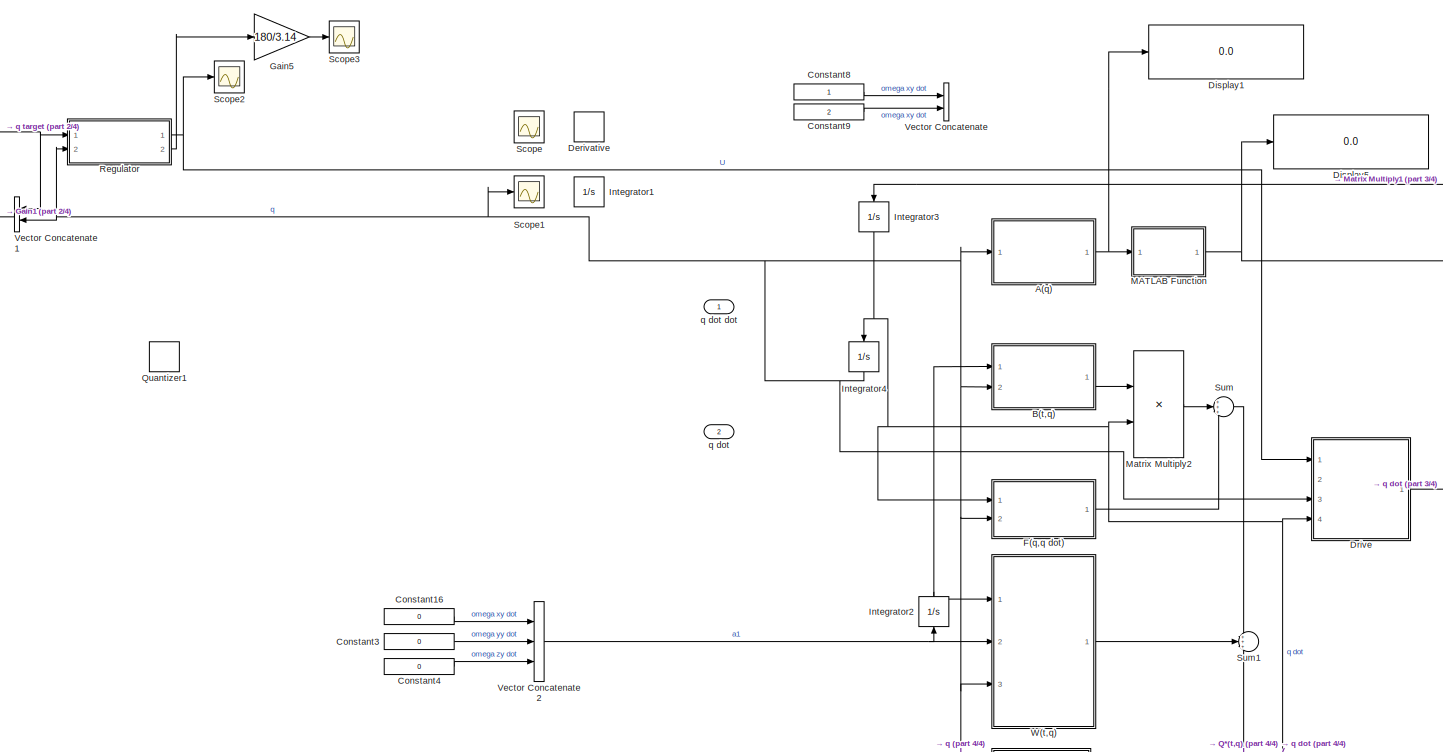
[diagram: root canvas - part 1/4, center side, full height]
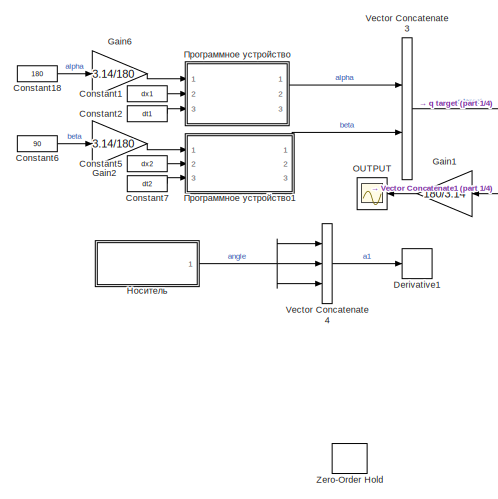
[diagram: root canvas - part 2/4, middle left region]
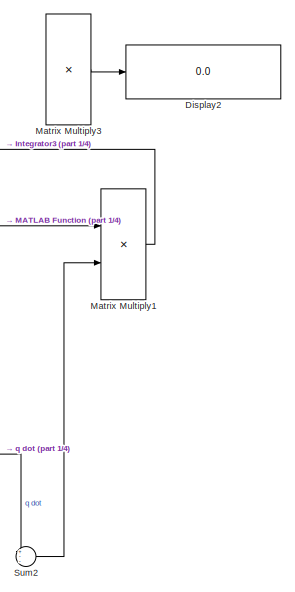
[diagram: root canvas - part 3/4, middle right region]
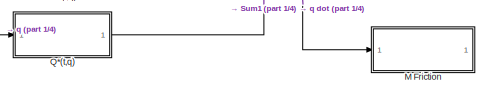
[diagram: root canvas - part 4/4, bottom right region]
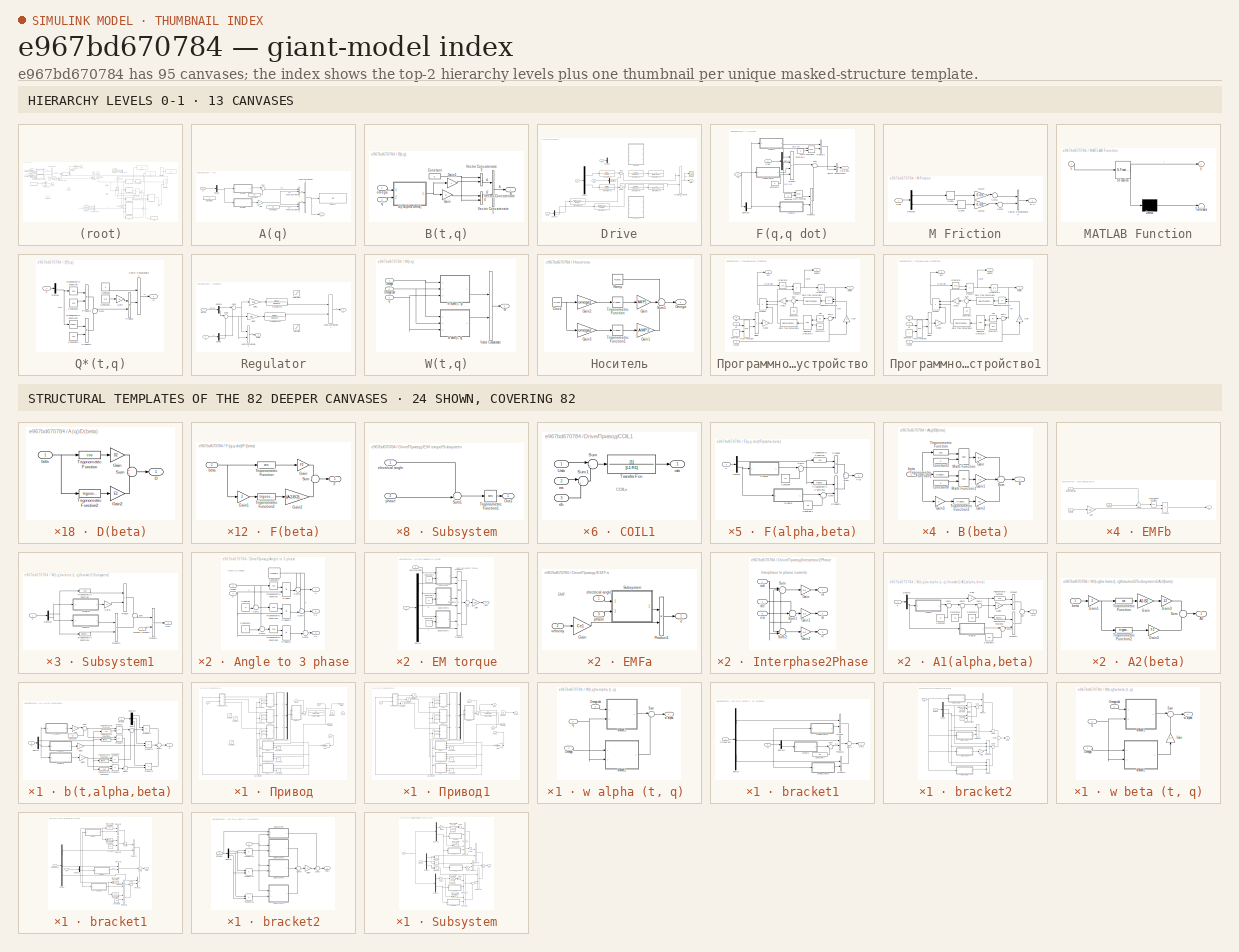
[diagram: thumbnail index - top-2 hierarchy levels (13 canvases) + 24 structural-template representatives of the remaining 82 canvases]
MODEL slx_e967bd670784
KIND model
CONFIG AbsTol = auto
CONFIG EnableMultiTasking = off
CONFIG FixedStep = auto
CONFIG MaxStep = auto
CONFIG MinStep = auto
CONFIG RelTol = 1e-7
CONFIG SampleTimeConstraint = Unconstrained
CONFIG Solver = VariableStepAuto
CONFIG SolverName = VariableStepAuto
CONFIG StartTime = 0.0
CONFIG StopTime = 3
WORKSPACE source: MAT-file member
WORKSPACE A1 = 0.212
BLOCK [SubSystem] A(q)
  Ports = [1, 1]
  RequestExecContextInheritance = off
BLOCK [Outport] A(q)/A
  IconDisplay = Port number
BLOCK [SubSystem] A(q)/B(beta)
  Ports = [1, 1]
  RequestExecContextInheritance = off
BLOCK [Outport] A(q)/B(beta)/B
  IconDisplay = Port number
BLOCK [Constant] A(q)/B(beta)/Constant3
  Value = 2
BLOCK [Constant] A(q)/B(beta)/Constant4
  Value = 2
BLOCK [Gain] A(q)/B(beta)/Gain
  Gain = B2
  OutDataTypeStr = Inherit: Inherit via internal rule
  ParamDataTypeStr = Inherit: Inherit via internal rule
  SaturateOnIntegerOverflow = off
BLOCK [Gain] A(q)/B(beta)/Gain1
  Gain = A2
  OutDataTypeStr = Inherit: Inherit via internal rule
  ParamDataTypeStr = Inherit: Inherit via internal rule
  SaturateOnIntegerOverflow = off
BLOCK [Gain] A(q)/B(beta)/Gain2
  Gain = F2
  OutDataTypeStr = Inherit: Inherit via internal rule
  ParamDataTypeStr = Inherit: Inherit via internal rule
  SaturateOnIntegerOverflow = off
BLOCK [Gain] A(q)/B(beta)/Gain3
  Gain = 2
  OutDataTypeStr = Inherit: Inherit via internal rule
  ParamDataTypeStr = Inherit: Inherit via internal rule
  SaturateOnIntegerOverflow = off
BLOCK [Math] A(q)/B(beta)/Math Function
  Operator = pow
  Ports = [2, 1]
BLOCK [Math] A(q)/B(beta)/Math Function1
  Operator = pow
  Ports = [2, 1]
BLOCK [Sum] A(q)/B(beta)/Sum
  IconShape = round
  InputSameDT = off
  Inputs = ++-
  OutDataTypeStr = Inherit: Inherit via internal rule
  Ports = [3, 1]
  SaturateOnIntegerOverflow = off
BLOCK [Trigonometry] A(q)/B(beta)/Trigonometric Function
  Operator = cos
  Ports = [1, 1]
BLOCK [Trigonometry] A(q)/B(beta)/Trigonometric Function1
  Ports = [1, 1]
BLOCK [Trigonometry] A(q)/B(beta)/Trigonometric Function2
  Ports = [1, 1]
BLOCK [Inport] A(q)/B(beta)/beta
  IconDisplay = Port number
BLOCK [Constant] A(q)/Constant1
  Value = 0
BLOCK [Constant] A(q)/Constant10
  Value = C2
BLOCK [Constant] A(q)/Constant7
  Value = B1
BLOCK [SubSystem] A(q)/D(beta)
  Ports = [1, 1]
  RequestExecContextInheritance = off
BLOCK [Outport] A(q)/D(beta)/D
  IconDisplay = Port number
BLOCK [Gain] A(q)/D(beta)/Gain
  Gain = D2
  OutDataTypeStr = Inherit: Inherit via internal rule
  ParamDataTypeStr = Inherit: Inherit via internal rule
  SaturateOnIntegerOverflow = off
BLOCK [Gain] A(q)/D(beta)/Gain2
  Gain = E2
  OutDataTypeStr = Inherit: Inherit via internal rule
  ParamDataTypeStr = Inherit: Inherit via internal rule
  SaturateOnIntegerOverflow = off
BLOCK [Sum] A(q)/D(beta)/Sum
  IconShape = round
  InputSameDT = off
  OutDataTypeStr = Inherit: Inherit via internal rule
  Ports = [2, 1]
  SaturateOnIntegerOverflow = off
BLOCK [Trigonometry] A(q)/D(beta)/Trigonometric Function
  Operator = cos
  Ports = [1, 1]
BLOCK [Trigonometry] A(q)/D(beta)/Trigonometric Function2
  Ports = [1, 1]
BLOCK [Inport] A(q)/D(beta)/beta
  IconDisplay = Port number
BLOCK [Demux] A(q)/Demux
  DisplayOption = bar
  Outputs = 2
  Ports = [1, 2]
BLOCK [Display] A(q)/Display5
  Decimation = 1
  Ports = [1]
BLOCK [Gain] A(q)/Gain
  Gain = -1
  OutDataTypeStr = Inherit: Inherit via internal rule
  ParamDataTypeStr = Inherit: Inherit via internal rule
  SaturateOnIntegerOverflow = off
BLOCK [Sum] A(q)/Sum
  IconShape = round
  InputSameDT = off
  Inputs = |++
  OutDataTypeStr = Inherit: Inherit via internal rule
  Ports = [2, 1]
  SaturateOnIntegerOverflow = off
BLOCK [Concatenate] A(q)/Vector Concatenate1
  Ports = [2, 1]
BLOCK [Concatenate] A(q)/Vector Concatenate2
  Ports = [2, 1]
BLOCK [Concatenate] A(q)/Vector Concatenate6
  ConcatenateDimension = 2
  Mode = Multidimensional array
  Ports = [2, 1]
BLOCK [Inport] A(q)/q
  IconDisplay = Port number
BLOCK [SubSystem] B(t,q)
  Ports = [2, 1]
  RequestExecContextInheritance = off
BLOCK [Outport] B(t,q)/B
  IconDisplay = Port number
BLOCK [Constant] B(t,q)/Constant
  Value = 0
BLOCK [Gain] B(t,q)/Gain
  OutDataTypeStr = Inherit: Inherit via internal rule
  ParamDataTypeStr = Inherit: Inherit via internal rule
  SaturateOnIntegerOverflow = off
BLOCK [Gain] B(t,q)/Gain1
  Gain = -1
  OutDataTypeStr = Inherit: Inherit via internal rule
  ParamDataTypeStr = Inherit: Inherit via internal rule
  SaturateOnIntegerOverflow = off
BLOCK [Concatenate] B(t,q)/Vector Concatenate3
  Ports = [2, 1]
BLOCK [Concatenate] B(t,q)/Vector Concatenate4
  Ports = [2, 1]
BLOCK [Concatenate] B(t,q)/Vector Concatenate5
  ConcatenateDimension = 2
  Mode = Multidimensional array
  Ports = [2, 1]
BLOCK [SubSystem] B(t,q)/b(t,alpha,beta)
  Ports = [2, 1]
  RequestExecContextInheritance = off
BLOCK [SubSystem] B(t,q)/b(t,alpha,beta)/A2(beta)
  Ports = [1, 1]
  RequestExecContextInheritance = off
BLOCK [Outport] B(t,q)/b(t,alpha,beta)/A2(beta)/A2
  IconDisplay = Port number
BLOCK [Gain] B(t,q)/b(t,alpha,beta)/A2(beta)/Gain
  Gain = (A2-B2)/2
  OutDataTypeStr = Inherit: Inherit via internal rule
  ParamDataTypeStr = Inherit: Inherit via internal rule
  SaturateOnIntegerOverflow = off
BLOCK [Gain] B(t,q)/b(t,alpha,beta)/A2(beta)/Gain1
  Gain = 2
  OutDataTypeStr = Inherit: Inherit via internal rule
  ParamDataTypeStr = Inherit: Inherit via internal rule
  SaturateOnIntegerOverflow = off
BLOCK [Gain] B(t,q)/b(t,alpha,beta)/A2(beta)/Gain2
  Gain = F2
  OutDataTypeStr = Inherit: Inherit via internal rule
  ParamDataTypeStr = Inherit: Inherit via internal rule
  SaturateOnIntegerOverflow = off
BLOCK [Sum] B(t,q)/b(t,alpha,beta)/A2(beta)/Sum
  IconShape = round
  InputSameDT = off
  OutDataTypeStr = Inherit: Inherit via internal rule
  Ports = [2, 1]
  SaturateOnIntegerOverflow = off
BLOCK [Trigonometry] B(t,q)/b(t,alpha,beta)/A2(beta)/Trigonometric Function
  Operator = cos
  Ports = [1, 1]
BLOCK [Trigonometry] B(t,q)/b(t,alpha,beta)/A2(beta)/Trigonometric Function2
  Ports = [1, 1]
BLOCK [Inport] B(t,q)/b(t,alpha,beta)/A2(beta)/beta
  IconDisplay = Port number
BLOCK [Constant] B(t,q)/b(t,alpha,beta)/Constant
  Value = C2
BLOCK [Demux] B(t,q)/b(t,alpha,beta)/Demux
  DisplayOption = bar
  Outputs = 2
  Ports = [1, 2]
BLOCK [Demux] B(t,q)/b(t,alpha,beta)/Demux1
  DisplayOption = bar
  Outputs = 3
  Ports = [1, 3]
BLOCK [SubSystem] B(t,q)/b(t,alpha,beta)/E(beta)
  Ports = [1, 1]
  RequestExecContextInheritance = off
BLOCK [Outport] B(t,q)/b(t,alpha,beta)/E(beta)/E
  IconDisplay = Port number
BLOCK [Gain] B(t,q)/b(t,alpha,beta)/E(beta)/Gain
  Gain = E2
  OutDataTypeStr = Inherit: Inherit via internal rule
  ParamDataTypeStr = Inherit: Inherit via internal rule
  SaturateOnIntegerOverflow = off
BLOCK [Gain] B(t,q)/b(t,alpha,beta)/E(beta)/Gain2
  Gain = D2
  OutDataTypeStr = Inherit: Inherit via internal rule
  ParamDataTypeStr = Inherit: Inherit via internal rule
  SaturateOnIntegerOverflow = off
BLOCK [Sum] B(t,q)/b(t,alpha,beta)/E(beta)/Sum
  IconShape = round
  InputSameDT = off
  Inputs = +-
  OutDataTypeStr = Inherit: Inherit via internal rule
  Ports = [2, 1]
  SaturateOnIntegerOverflow = off
BLOCK [Trigonometry] B(t,q)/b(t,alpha,beta)/E(beta)/Trigonometric Function
  Operator = cos
  Ports = [1, 1]
BLOCK [Trigonometry] B(t,q)/b(t,alpha,beta)/E(beta)/Trigonometric Function2
  Ports = [1, 1]
BLOCK [Inport] B(t,q)/b(t,alpha,beta)/E(beta)/beta
  IconDisplay = Port number
BLOCK [SubSystem] B(t,q)/b(t,alpha,beta)/F(beta)
  Ports = [1, 1]
  RequestExecContextInheritance = off
BLOCK [Outport] B(t,q)/b(t,alpha,beta)/F(beta)/F
  IconDisplay = Port number
BLOCK [Gain] B(t,q)/b(t,alpha,beta)/F(beta)/Gain
  Gain = F2
  OutDataTypeStr = Inherit: Inherit via internal rule
  ParamDataTypeStr = Inherit: Inherit via internal rule
  SaturateOnIntegerOverflow = off
BLOCK [Gain] B(t,q)/b(t,alpha,beta)/F(beta)/Gain1
  Gain = 2
  OutDataTypeStr = Inherit: Inherit via internal rule
  ParamDataTypeStr = Inherit: Inherit via internal rule
  SaturateOnIntegerOverflow = off
BLOCK [Gain] B(t,q)/b(t,alpha,beta)/F(beta)/Gain2
  Gain = (A2-B2)/2
  OutDataTypeStr = Inherit: Inherit via internal rule
  ParamDataTypeStr = Inherit: Inherit via internal rule
  SaturateOnIntegerOverflow = off
BLOCK [Sum] B(t,q)/b(t,alpha,beta)/F(beta)/Sum
  IconShape = round
  InputSameDT = off
  Inputs = +-
  OutDataTypeStr = Inherit: Inherit via internal rule
  Ports = [2, 1]
  SaturateOnIntegerOverflow = off
BLOCK [Trigonometry] B(t,q)/b(t,alpha,beta)/F(beta)/Trigonometric Function
  Operator = cos
  Ports = [1, 1]
BLOCK [Trigonometry] B(t,q)/b(t,alpha,beta)/F(beta)/Trigonometric Function2
  Ports = [1, 1]
BLOCK [Inport] B(t,q)/b(t,alpha,beta)/F(beta)/beta
  IconDisplay = Port number
BLOCK [Gain] B(t,q)/b(t,alpha,beta)/Gain
  Gain = 2
  OutDataTypeStr = Inherit: Inherit via internal rule
  ParamDataTypeStr = Inherit: Inherit via internal rule
  SaturateOnIntegerOverflow = off
BLOCK [Gain] B(t,q)/b(t,alpha,beta)/Gain1
  Gain = 2
  OutDataTypeStr = Inherit: Inherit via internal rule
  ParamDataTypeStr = Inherit: Inherit via internal rule
  SaturateOnIntegerOverflow = off
BLOCK [Gain] B(t,q)/b(t,alpha,beta)/Gain2
  Gain = 2
  OutDataTypeStr = Inherit: Inherit via internal rule
  ParamDataTypeStr = Inherit: Inherit via internal rule
  SaturateOnIntegerOverflow = off
BLOCK [Product] B(t,q)/b(t,alpha,beta)/Product
  InputSameDT = off
  OutDataTypeStr = Inherit: Inherit via internal rule
  Ports = [2, 1]
  RndMeth = Floor
  SaturateOnIntegerOverflow = off
BLOCK [Product] B(t,q)/b(t,alpha,beta)/Product1
  InputSameDT = off
  OutDataTypeStr = Inherit: Inherit via internal rule
  Ports = [2, 1]
  RndMeth = Floor
  SaturateOnIntegerOverflow = off
BLOCK [Product] B(t,q)/b(t,alpha,beta)/Product2
  InputSameDT = off
  OutDataTypeStr = Inherit: Inherit via internal rule
  Ports = [2, 1]
  RndMeth = Floor
  SaturateOnIntegerOverflow = off
BLOCK [Product] B(t,q)/b(t,alpha,beta)/Product3
  InputSameDT = off
  OutDataTypeStr = Inherit: Inherit via internal rule
  Ports = [2, 1]
  RndMeth = Floor
  SaturateOnIntegerOverflow = off
BLOCK [Product] B(t,q)/b(t,alpha,beta)/Product4
  InputSameDT = off
  OutDataTypeStr = Inherit: Inherit via internal rule
  Ports = [2, 1]
  RndMeth = Floor
  SaturateOnIntegerOverflow = off
BLOCK [Product] B(t,q)/b(t,alpha,beta)/Product5
  InputSameDT = off
  OutDataTypeStr = Inherit: Inherit via internal rule
  Ports = [2, 1]
  RndMeth = Floor
  SaturateOnIntegerOverflow = off
BLOCK [Product] B(t,q)/b(t,alpha,beta)/Product6
  InputSameDT = off
  OutDataTypeStr = Inherit: Inherit via internal rule
  Ports = [2, 1]
  RndMeth = Floor
  SaturateOnIntegerOverflow = off
BLOCK [Sum] B(t,q)/b(t,alpha,beta)/Sum
  IconShape = round
  InputSameDT = off
  Inputs = |+-
  OutDataTypeStr = Inherit: Inherit via internal rule
  Ports = [2, 1]
  SaturateOnIntegerOverflow = off
BLOCK [Sum] B(t,q)/b(t,alpha,beta)/Sum1
  IconShape = round
  InputSameDT = off
  Inputs = |+-
  OutDataTypeStr = Inherit: Inherit via internal rule
  Ports = [2, 1]
  SaturateOnIntegerOverflow = off
BLOCK [Sum] B(t,q)/b(t,alpha,beta)/Sum2
  IconShape = round
  InputSameDT = off
  Inputs = ++|
  OutDataTypeStr = Inherit: Inherit via internal rule
  Ports = [2, 1]
  SaturateOnIntegerOverflow = off
BLOCK [Sum] B(t,q)/b(t,alpha,beta)/Sum3
  IconShape = round
  InputSameDT = off
  Inputs = +--
  OutDataTypeStr = Inherit: Inherit via internal rule
  Ports = [3, 1]
  SaturateOnIntegerOverflow = off
BLOCK [Trigonometry] B(t,q)/b(t,alpha,beta)/Trigonometric Function
  Operator = cos
  Ports = [1, 1]
BLOCK [Trigonometry] B(t,q)/b(t,alpha,beta)/Trigonometric Function1
  Ports = [1, 1]
BLOCK [Trigonometry] B(t,q)/b(t,alpha,beta)/Trigonometric Function2
  Ports = [1, 1]
BLOCK [Trigonometry] B(t,q)/b(t,alpha,beta)/Trigonometric Function3
  Operator = cos
  Ports = [1, 1]
BLOCK [Outport] B(t,q)/b(t,alpha,beta)/b
  IconDisplay = Port number
BLOCK [Inport] B(t,q)/b(t,alpha,beta)/omega
  IconDisplay = Port number
BLOCK [Inport] B(t,q)/b(t,alpha,beta)/q
  IconDisplay = Port number
  Port = 2
BLOCK [Inport] B(t,q)/omega
  IconDisplay = Port number
BLOCK [Inport] B(t,q)/q
  IconDisplay = Port number
  Port = 2
BLOCK [Constant] Constant1
  Value = dx1
BLOCK [Constant] Constant16
  Value = 0
BLOCK [Constant] Constant18
  Value = 180
BLOCK [Constant] Constant2
  Value = dt1
BLOCK [Constant] Constant3
  Value = 0
BLOCK [Constant] Constant4
  Value = 0
BLOCK [Constant] Constant5
  Value = dx2
BLOCK [Constant] Constant6
  Value = 90
BLOCK [Constant] Constant7
  Value = dt2
BLOCK [Constant] Constant8
BLOCK [Constant] Constant9
  Value = 2
BLOCK [Derivative] Derivative
BLOCK [Derivative] Derivative1
BLOCK [Display] Display1
  Decimation = 1
  Ports = [1]
BLOCK [Display] Display2
  Decimation = 1
  Ports = [1]
BLOCK [Display] Display5
  Decimation = 1
  Ports = [1]
BLOCK [SubSystem] Drive
  Ports = [4, 1]
  RequestExecContextInheritance = off
BLOCK [Demux] Drive/Demux
  DisplayOption = bar
  Outputs = 2
  Ports = [1, 2]
BLOCK [Demux] Drive/Demux1
  DisplayOption = bar
  Outputs = 2
  Ports = [1, 2]
BLOCK [Demux] Drive/Demux2
  DisplayOption = bar
  Outputs = 2
  Ports = [1, 2]
BLOCK [Demux] Drive/Demux3
  DisplayOption = bar
  Outputs = 2
  Ports = [1, 2]
BLOCK [Inport] Drive/M
  IconDisplay = Port number
  Port = 2
BLOCK [Outport] Drive/Mdrv
  IconDisplay = Port number
BLOCK [Scope] Drive/Scope
  Floating = off
  NumInputPorts = 1
  Ports = [1]
  ScopeSpecificationString = Simulink.scopes.TimeScopeBlockCfg('CurrentConfiguration', extmgr.ConfigurationSet(extmgr.Configuration('Core','General UI',true),extmgr.Configuration('Core','Source UI',true),extmgr.Configuration('Sources','WiredSimulink',true,'DataLoggingVariableName','ScopeData1'),extmgr.Configuration('Visuals','Time Domain',true,'SerializedDisplays',{struct('MinYLimReal','-1.12487','MaxYLimReal','0.2361','YLabe...<+1368ch>
BLOCK [Sum] Drive/Sum
  IconShape = round
  InputSameDT = off
  Inputs = |+-
  OutDataTypeStr = Inherit: Inherit via internal rule
  Ports = [2, 1]
  SaturateOnIntegerOverflow = off
BLOCK [Sum] Drive/Sum1
  IconShape = round
  InputSameDT = off
  Inputs = -+|
  OutDataTypeStr = Inherit: Inherit via internal rule
  Ports = [2, 1]
  SaturateOnIntegerOverflow = off
BLOCK [TransferFcn] Drive/Transfer Fcn
  Denominator = [L1 R1]
  Numerator = [Cm1]
BLOCK [TransferFcn] Drive/Transfer Fcn1
  Denominator = [Cm1*Ce1]
  Numerator = 1
BLOCK [TransferFcn] Drive/Transfer Fcn2
  Denominator = [0.0001 1]
  Numerator = [L1 R1]
BLOCK [TransferFcn] Drive/Transfer Fcn3
  Denominator = [L2 R2]
  Numerator = [Cm2]
BLOCK [TransferFcn] Drive/Transfer Fcn4
  Denominator = [Cm2*Ce2]
  Numerator = 1
BLOCK [TransferFcn] Drive/Transfer Fcn5
  Denominator = [0.0001 1]
  Numerator = [L2 R2]
BLOCK [TransferFcn] Drive/Transfer Fcn6
  Denominator = [L1 R1]
  Numerator = [Cm1*Ce1]
BLOCK [TransferFcn] Drive/Transfer Fcn7
  Denominator = [L2 R2]
  Numerator = [Cm2*Ce2]
BLOCK [Inport] Drive/U
  IconDisplay = Port number
BLOCK [Concatenate] Drive/Vector Concatenate6
  Ports = [2, 1]
BLOCK [Inport] Drive/q
  IconDisplay = Port number
  Port = 3
BLOCK [Inport] Drive/q dot_
  IconDisplay = Port number
  Port = 4
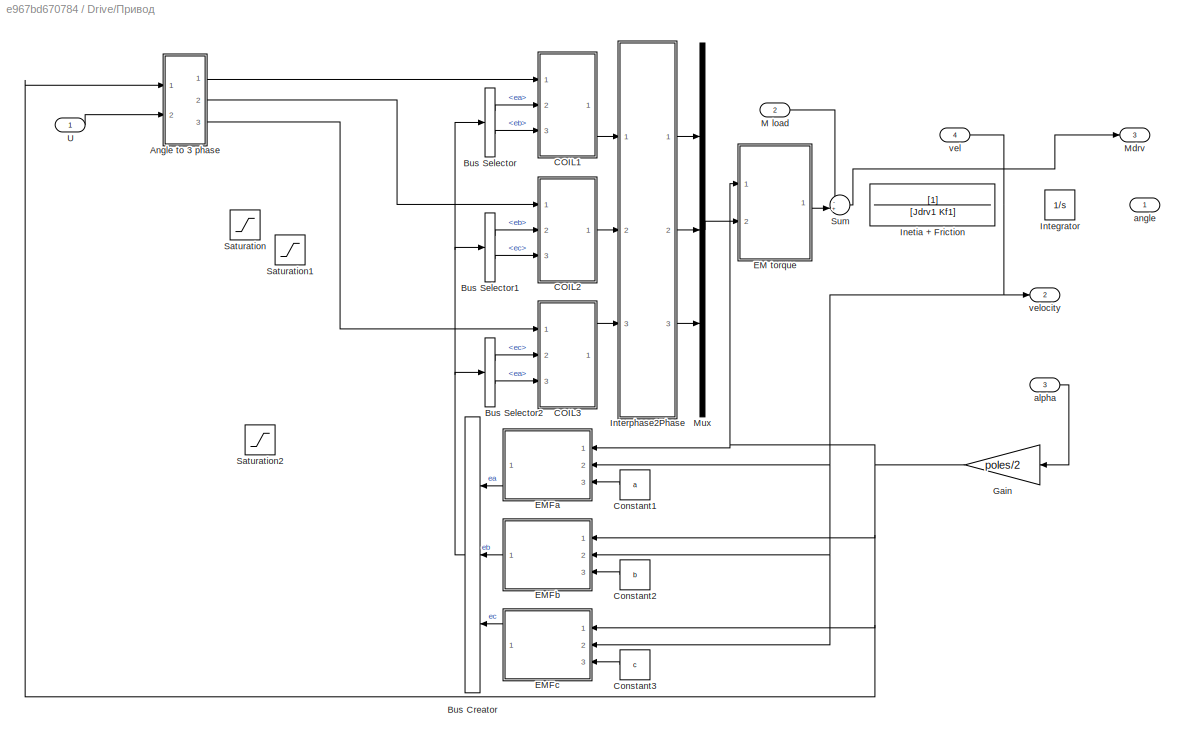
BLOCK [SubSystem] Drive/Привод
  Ports = [4, 3]
  RequestExecContextInheritance = off
BLOCK [SubSystem] Drive/Привод/Angle to 3 phase
  Ports = [2, 3]
  RequestExecContextInheritance = off
BLOCK [Constant] Drive/Привод/Angle to 3 phase/Constant
  Value = b
BLOCK [Constant] Drive/Привод/Angle to 3 phase/Constant1
  Value = c
BLOCK [Constant] Drive/Привод/Angle to 3 phase/Constant3
  Value = Umax/2
BLOCK [Product] Drive/Привод/Angle to 3 phase/Product
  InputSameDT = off
  OutDataTypeStr = Inherit: Inherit via internal rule
  Ports = [2, 1]
  RndMeth = Floor
  SaturateOnIntegerOverflow = off
BLOCK [Product] Drive/Привод/Angle to 3 phase/Product1
  InputSameDT = off
  OutDataTypeStr = Inherit: Inherit via internal rule
  Ports = [2, 1]
  RndMeth = Floor
  SaturateOnIntegerOverflow = off
BLOCK [Product] Drive/Привод/Angle to 3 phase/Product2
  InputSameDT = off
  OutDataTypeStr = Inherit: Inherit via internal rule
  Ports = [2, 1]
  RndMeth = Floor
  SaturateOnIntegerOverflow = off
BLOCK [Sum] Drive/Привод/Angle to 3 phase/Sum1
  IconShape = round
  InputSameDT = off
  Inputs = ++|
  OutDataTypeStr = Inherit: Inherit via internal rule
  Ports = [2, 1]
  SaturateOnIntegerOverflow = off
BLOCK [Sum] Drive/Привод/Angle to 3 phase/Sum2
  IconShape = round
  InputSameDT = off
  Inputs = ++|
  OutDataTypeStr = Inherit: Inherit via internal rule
  Ports = [2, 1]
  SaturateOnIntegerOverflow = off
BLOCK [Sum] Drive/Привод/Angle to 3 phase/Sum3
  IconShape = round
  InputSameDT = off
  Inputs = ++|
  OutDataTypeStr = Inherit: Inherit via internal rule
  Ports = [2, 1]
  SaturateOnIntegerOverflow = off
BLOCK [Sum] Drive/Привод/Angle to 3 phase/Sum4
  IconShape = round
  InputSameDT = off
  Inputs = ++|
  OutDataTypeStr = Inherit: Inherit via internal rule
  Ports = [2, 1]
  SaturateOnIntegerOverflow = off
BLOCK [Sum] Drive/Привод/Angle to 3 phase/Sum5
  IconShape = round
  InputSameDT = off
  Inputs = ++|
  OutDataTypeStr = Inherit: Inherit via internal rule
  Ports = [2, 1]
  SaturateOnIntegerOverflow = off
BLOCK [Trigonometry] Drive/Привод/Angle to 3 phase/Trigonometric Function
  Operator = cos
  Ports = [1, 1]
BLOCK [Trigonometry] Drive/Привод/Angle to 3 phase/Trigonometric Function1
  Operator = cos
  Ports = [1, 1]
BLOCK [Trigonometry] Drive/Привод/Angle to 3 phase/Trigonometric Function2
  Operator = cos
  Ports = [1, 1]
BLOCK [Inport] Drive/Привод/Angle to 3 phase/target
  IconDisplay = Port number
BLOCK [Inport] Drive/Привод/Angle to 3 phase/u
  IconDisplay = Port number
  Port = 2
BLOCK [Outport] Drive/Привод/Angle to 3 phase/u 
  IconDisplay = Port number
BLOCK [Outport] Drive/Привод/Angle to 3 phase/u 1
  IconDisplay = Port number
  Port = 2
BLOCK [Outport] Drive/Привод/Angle to 3 phase/u 2
  IconDisplay = Port number
  Port = 3
BLOCK [BusCreator] Drive/Привод/Bus Creator
  DisplayOption = bar
  InheritFromInputs = on
  Inputs = 3
  Ports = [3, 1]
BLOCK [BusSelector] Drive/Привод/Bus Selector
  OutputAsBus = off
  OutputSignals = ea,eb
  Ports = [1, 2]
BLOCK [BusSelector] Drive/Привод/Bus Selector1
  OutputAsBus = off
  OutputSignals = eb,ec
  Ports = [1, 2]
BLOCK [BusSelector] Drive/Привод/Bus Selector2
  OutputAsBus = off
  OutputSignals = ec,ea
  Ports = [1, 2]
BLOCK [SubSystem] Drive/Привод/COIL1
  Ports = [3, 1]
  RequestExecContextInheritance = off
BLOCK [Sum] Drive/Привод/COIL1/Sum
  IconShape = round
  InputSameDT = off
  Inputs = |+-
  OutDataTypeStr = Inherit: Inherit via internal rule
  Ports = [2, 1]
  SaturateOnIntegerOverflow = off
BLOCK [Sum] Drive/Привод/COIL1/Sum1
  IconShape = round
  InputSameDT = off
  Inputs = |+-
  OutDataTypeStr = Inherit: Inherit via internal rule
  Ports = [2, 1]
  SaturateOnIntegerOverflow = off
BLOCK [TransferFcn] Drive/Привод/COIL1/Transfer Fcn
  Denominator = [L1 R1]
BLOCK [Inport] Drive/Привод/COIL1/Uab
  IconDisplay = Port number
BLOCK [Inport] Drive/Привод/COIL1/ea 
  IconDisplay = Port number
  Port = 2
BLOCK [Inport] Drive/Привод/COIL1/eb
  IconDisplay = Port number
  Port = 3
BLOCK [Outport] Drive/Привод/COIL1/iab
  IconDisplay = Port number
BLOCK [SubSystem] Drive/Привод/COIL2 
  Ports = [3, 1]
  RequestExecContextInheritance = off
BLOCK [Sum] Drive/Привод/COIL2 /Sum
  IconShape = round
  InputSameDT = off
  Inputs = |+-
  OutDataTypeStr = Inherit: Inherit via internal rule
  Ports = [2, 1]
  SaturateOnIntegerOverflow = off
BLOCK [Sum] Drive/Привод/COIL2 /Sum1
  IconShape = round
  InputSameDT = off
  Inputs = |+-
  OutDataTypeStr = Inherit: Inherit via internal rule
  Ports = [2, 1]
  SaturateOnIntegerOverflow = off
BLOCK [TransferFcn] Drive/Привод/COIL2 /Transfer Fcn
  Denominator = [L1 R1]
BLOCK [Inport] Drive/Привод/COIL2 /Uab
  IconDisplay = Port number
BLOCK [Inport] Drive/Привод/COIL2 /ea 
  IconDisplay = Port number
  Port = 2
BLOCK [Inport] Drive/Привод/COIL2 /eb
  IconDisplay = Port number
  Port = 3
BLOCK [Outport] Drive/Привод/COIL2 /iab
  IconDisplay = Port number
BLOCK [SubSystem] Drive/Привод/COIL3
  Ports = [3, 1]
  RequestExecContextInheritance = off
BLOCK [Sum] Drive/Привод/COIL3/Sum
  IconShape = round
  InputSameDT = off
  Inputs = |+-
  OutDataTypeStr = Inherit: Inherit via internal rule
  Ports = [2, 1]
  SaturateOnIntegerOverflow = off
BLOCK [Sum] Drive/Привод/COIL3/Sum1
  IconShape = round
  InputSameDT = off
  Inputs = |+-
  OutDataTypeStr = Inherit: Inherit via internal rule
  Ports = [2, 1]
  SaturateOnIntegerOverflow = off
BLOCK [TransferFcn] Drive/Привод/COIL3/Transfer Fcn
  Denominator = [L1 R1]
BLOCK [Inport] Drive/Привод/COIL3/Uab
  IconDisplay = Port number
BLOCK [Inport] Drive/Привод/COIL3/ea 
  IconDisplay = Port number
  Port = 2
BLOCK [Inport] Drive/Привод/COIL3/eb
  IconDisplay = Port number
  Port = 3
BLOCK [Outport] Drive/Привод/COIL3/iab
  IconDisplay = Port number
BLOCK [Constant] Drive/Привод/Constant1
  Value = a
BLOCK [Constant] Drive/Привод/Constant2
  Value = b
BLOCK [Constant] Drive/Привод/Constant3
  Value = c
BLOCK [SubSystem] Drive/Привод/EM torque
  Ports = [2, 1]
  RequestExecContextInheritance = off
BLOCK [Constant] Drive/Привод/EM torque/Constant2
  Value = a
BLOCK [Constant] Drive/Привод/EM torque/Constant3
  Value = b
BLOCK [Constant] Drive/Привод/EM torque/Constant4
  Value = c
BLOCK [Demux] Drive/Привод/EM torque/Demux
  DisplayOption = bar
  Outputs = 3
  Ports = [1, 3]
BLOCK [Gain] Drive/Привод/EM torque/Gain
  Gain = Cm1
  OutDataTypeStr = Inherit: Inherit via internal rule
  ParamDataTypeStr = Inherit: Inherit via internal rule
  SaturateOnIntegerOverflow = off
BLOCK [Inport] Drive/Привод/EM torque/I
  IconDisplay = Port number
  Port = 2
BLOCK [Outport] Drive/Привод/EM torque/Me
  IconDisplay = Port number
BLOCK [Product] Drive/Привод/EM torque/Product3
  InputSameDT = off
  OutDataTypeStr = Inherit: Inherit via internal rule
  Ports = [2, 1]
  RndMeth = Floor
  SaturateOnIntegerOverflow = off
BLOCK [Product] Drive/Привод/EM torque/Product4
  InputSameDT = off
  OutDataTypeStr = Inherit: Inherit via internal rule
  Ports = [2, 1]
  RndMeth = Floor
  SaturateOnIntegerOverflow = off
BLOCK [Product] Drive/Привод/EM torque/Product5
  InputSameDT = off
  OutDataTypeStr = Inherit: Inherit via internal rule
  Ports = [2, 1]
  RndMeth = Floor
  SaturateOnIntegerOverflow = off
BLOCK [SubSystem] Drive/Привод/EM torque/Subsystem
  Ports = [2, 1]
  RequestExecContextInheritance = off
BLOCK [Outport] Drive/Привод/EM torque/Subsystem/Out1
  IconDisplay = Port number
BLOCK [Sum] Drive/Привод/EM torque/Subsystem/Sum1
  IconShape = round
  InputSameDT = off
  Inputs = ++|
  OutDataTypeStr = Inherit: Inherit via internal rule
  Ports = [2, 1]
  SaturateOnIntegerOverflow = off
BLOCK [Trigonometry] Drive/Привод/EM torque/Subsystem/Trigonometric Function1
  Operator = cos
  Ports = [1, 1]
BLOCK [Inport] Drive/Привод/EM torque/Subsystem/electrical angle
  IconDisplay = Port number
BLOCK [Inport] Drive/Привод/EM torque/Subsystem/phase
  IconDisplay = Port number
  Port = 2
BLOCK [SubSystem] Drive/Привод/EM torque/Subsystem1
  Ports = [2, 1]
  RequestExecContextInheritance = off
BLOCK [Outport] Drive/Привод/EM torque/Subsystem1/Out1
  IconDisplay = Port number
BLOCK [Sum] Drive/Привод/EM torque/Subsystem1/Sum1
  IconShape = round
  InputSameDT = off
  Inputs = ++|
  OutDataTypeStr = Inherit: Inherit via internal rule
  Ports = [2, 1]
  SaturateOnIntegerOverflow = off
BLOCK [Trigonometry] Drive/Привод/EM torque/Subsystem1/Trigonometric Function1
  Operator = cos
  Ports = [1, 1]
BLOCK [Inport] Drive/Привод/EM torque/Subsystem1/electrical angle
  IconDisplay = Port number
BLOCK [Inport] Drive/Привод/EM torque/Subsystem1/phase
  IconDisplay = Port number
  Port = 2
BLOCK [SubSystem] Drive/Привод/EM torque/Subsystem2
  Ports = [2, 1]
  RequestExecContextInheritance = off
BLOCK [Outport] Drive/Привод/EM torque/Subsystem2/Out1
  IconDisplay = Port number
BLOCK [Sum] Drive/Привод/EM torque/Subsystem2/Sum1
  IconShape = round
  InputSameDT = off
  Inputs = ++|
  OutDataTypeStr = Inherit: Inherit via internal rule
  Ports = [2, 1]
  SaturateOnIntegerOverflow = off
BLOCK [Trigonometry] Drive/Привод/EM torque/Subsystem2/Trigonometric Function1
  Operator = cos
  Ports = [1, 1]
BLOCK [Inport] Drive/Привод/EM torque/Subsystem2/electrical angle
  IconDisplay = Port number
BLOCK [Inport] Drive/Привод/EM torque/Subsystem2/phase
  IconDisplay = Port number
  Port = 2
BLOCK [Sum] Drive/Привод/EM torque/Sum
  IconShape = round
  InputSameDT = off
  Inputs = +++
  OutDataTypeStr = Inherit: Inherit via internal rule
  Ports = [3, 1]
  SaturateOnIntegerOverflow = off
BLOCK [Inport] Drive/Привод/EM torque/electrical angle
  IconDisplay = Port number
BLOCK [SubSystem] Drive/Привод/EMFa
  Ports = [3, 1]
  RequestExecContextInheritance = off
BLOCK [Gain] Drive/Привод/EMFa/Gain
  Gain = Ce1
  OutDataTypeStr = Inherit: Inherit via internal rule
  ParamDataTypeStr = Inherit: Inherit via internal rule
  SaturateOnIntegerOverflow = off
BLOCK [Product] Drive/Привод/EMFa/Product1
  InputSameDT = off
  OutDataTypeStr = Inherit: Inherit via internal rule
  Ports = [2, 1]
  RndMeth = Floor
  SaturateOnIntegerOverflow = off
BLOCK [SubSystem] Drive/Привод/EMFa/Subsystem
  Ports = [2, 1]
  RequestExecContextInheritance = off
BLOCK [Outport] Drive/Привод/EMFa/Subsystem/Out1
  IconDisplay = Port number
BLOCK [Sum] Drive/Привод/EMFa/Subsystem/Sum1
  IconShape = round
  InputSameDT = off
  Inputs = ++|
  OutDataTypeStr = Inherit: Inherit via internal rule
  Ports = [2, 1]
  SaturateOnIntegerOverflow = off
BLOCK [Trigonometry] Drive/Привод/EMFa/Subsystem/Trigonometric Function1
  Operator = cos
  Ports = [1, 1]
BLOCK [Inport] Drive/Привод/EMFa/Subsystem/electrical angle
  IconDisplay = Port number
BLOCK [Inport] Drive/Привод/EMFa/Subsystem/phase
  IconDisplay = Port number
  Port = 2
BLOCK [Outport] Drive/Привод/EMFa/e
  IconDisplay = Port number
BLOCK [Inport] Drive/Привод/EMFa/electrical angle
  IconDisplay = Port number
BLOCK [Inport] Drive/Привод/EMFa/phase
  IconDisplay = Port number
  Port = 3
BLOCK [Inport] Drive/Привод/EMFa/velocity
  IconDisplay = Port number
  Port = 2
BLOCK [SubSystem] Drive/Привод/EMFb
  Ports = [3, 1]
  RequestExecContextInheritance = off
BLOCK [Gain] Drive/Привод/EMFb/Gain
  Gain = Ce1
  OutDataTypeStr = Inherit: Inherit via internal rule
  ParamDataTypeStr = Inherit: Inherit via internal rule
  SaturateOnIntegerOverflow = off
BLOCK [Product] Drive/Привод/EMFb/Product1
  InputSameDT = off
  OutDataTypeStr = Inherit: Inherit via internal rule
  Ports = [2, 1]
  RndMeth = Floor
  SaturateOnIntegerOverflow = off
BLOCK [Sum] Drive/Привод/EMFb/Sum1
  IconShape = round
  InputSameDT = off
  Inputs = ++|
  OutDataTypeStr = Inherit: Inherit via internal rule
  Ports = [2, 1]
  SaturateOnIntegerOverflow = off
BLOCK [Trigonometry] Drive/Привод/EMFb/Trigonometric Function1
  Operator = cos
  Ports = [1, 1]
BLOCK [Outport] Drive/Привод/EMFb/e
  IconDisplay = Port number
BLOCK [Inport] Drive/Привод/EMFb/electrical angle
  IconDisplay = Port number
BLOCK [Inport] Drive/Привод/EMFb/phase
  IconDisplay = Port number
  Port = 3
BLOCK [Inport] Drive/Привод/EMFb/velocity
  IconDisplay = Port number
  Port = 2
BLOCK [SubSystem] Drive/Привод/EMFc
  Ports = [3, 1]
  RequestExecContextInheritance = off
BLOCK [Gain] Drive/Привод/EMFc/Gain
  Gain = Ce1
  OutDataTypeStr = Inherit: Inherit via internal rule
  ParamDataTypeStr = Inherit: Inherit via internal rule
  SaturateOnIntegerOverflow = off
BLOCK [Product] Drive/Привод/EMFc/Product1
  InputSameDT = off
  OutDataTypeStr = Inherit: Inherit via internal rule
  Ports = [2, 1]
  RndMeth = Floor
  SaturateOnIntegerOverflow = off
BLOCK [Sum] Drive/Привод/EMFc/Sum1
  IconShape = round
  InputSameDT = off
  Inputs = ++|
  OutDataTypeStr = Inherit: Inherit via internal rule
  Ports = [2, 1]
  SaturateOnIntegerOverflow = off
BLOCK [Trigonometry] Drive/Привод/EMFc/Trigonometric Function1
  Operator = cos
  Ports = [1, 1]
BLOCK [Outport] Drive/Привод/EMFc/e
  IconDisplay = Port number
BLOCK [Inport] Drive/Привод/EMFc/electrical angle
  IconDisplay = Port number
BLOCK [Inport] Drive/Привод/EMFc/phase
  IconDisplay = Port number
  Port = 3
BLOCK [Inport] Drive/Привод/EMFc/velocity
  IconDisplay = Port number
  Port = 2
BLOCK [Gain] Drive/Привод/Gain
  Gain = poles/2
  OutDataTypeStr = Inherit: Inherit via internal rule
  ParamDataTypeStr = Inherit: Inherit via internal rule
  SaturateOnIntegerOverflow = off
BLOCK [TransferFcn] Drive/Привод/Inetia + Friction
  Denominator = [Jdrv1 Kf1]
BLOCK [Integrator] Drive/Привод/Integrator
  Ports = [1, 1]
BLOCK [SubSystem] Drive/Привод/Interphase2Phase
  Ports = [3, 3]
  RequestExecContextInheritance = off
BLOCK [Gain] Drive/Привод/Interphase2Phase/Gain
  Gain = 1/2
  OutDataTypeStr = Inherit: Inherit via internal rule
  ParamDataTypeStr = Inherit: Inherit via internal rule
  SaturateOnIntegerOverflow = off
BLOCK [Gain] Drive/Привод/Interphase2Phase/Gain1
  Gain = 1/2
  OutDataTypeStr = Inherit: Inherit via internal rule
  ParamDataTypeStr = Inherit: Inherit via internal rule
  SaturateOnIntegerOverflow = off
BLOCK [Gain] Drive/Привод/Interphase2Phase/Gain2
  Gain = 1/2
  OutDataTypeStr = Inherit: Inherit via internal rule
  ParamDataTypeStr = Inherit: Inherit via internal rule
  SaturateOnIntegerOverflow = off
BLOCK [Sum] Drive/Привод/Interphase2Phase/Sum
  IconShape = round
  InputSameDT = off
  Inputs = +--
  OutDataTypeStr = Inherit: Inherit via internal rule
  Ports = [3, 1]
  SaturateOnIntegerOverflow = off
BLOCK [Sum] Drive/Привод/Interphase2Phase/Sum1
  IconShape = round
  InputSameDT = off
  Inputs = +--
  OutDataTypeStr = Inherit: Inherit via internal rule
  Ports = [3, 1]
  SaturateOnIntegerOverflow = off
BLOCK [Sum] Drive/Привод/Interphase2Phase/Sum2
  IconShape = round
  InputSameDT = off
  Inputs = +--
  OutDataTypeStr = Inherit: Inherit via internal rule
  Ports = [3, 1]
  SaturateOnIntegerOverflow = off
BLOCK [Outport] Drive/Привод/Interphase2Phase/ia
  IconDisplay = Port number
BLOCK [Inport] Drive/Привод/Interphase2Phase/iab
  IconDisplay = Port number
BLOCK [Outport] Drive/Привод/Interphase2Phase/ib
  IconDisplay = Port number
  Port = 2
BLOCK [Inport] Drive/Привод/Interphase2Phase/ibc 
  IconDisplay = Port number
  Port = 2
BLOCK [Outport] Drive/Привод/Interphase2Phase/ic
  IconDisplay = Port number
  Port = 3
BLOCK [Inport] Drive/Привод/Interphase2Phase/ica
  IconDisplay = Port number
  Port = 3
BLOCK [Inport] Drive/Привод/M load
  IconDisplay = Port number
  Port = 2
BLOCK [Outport] Drive/Привод/Mdrv
  IconDisplay = Port number
  Port = 3
BLOCK [Mux] Drive/Привод/Mux
  DisplayOption = bar
  Inputs = 3
  Ports = [3, 1]
BLOCK [Saturate] Drive/Привод/Saturation
  InputPortMap = u0
  LowerLimit = 0
  Ports = [1, 1]
  UpperLimit = Umax
  ZeroCross = off
BLOCK [Saturate] Drive/Привод/Saturation1
  InputPortMap = u0
  LowerLimit = 0
  Ports = [1, 1]
  UpperLimit = Umax
  ZeroCross = off
BLOCK [Saturate] Drive/Привод/Saturation2
  InputPortMap = u0
  LowerLimit = 0
  Ports = [1, 1]
  UpperLimit = Umax
  ZeroCross = off
BLOCK [Sum] Drive/Привод/Sum
  IconShape = round
  InputSameDT = off
  Inputs = -+|
  OutDataTypeStr = Inherit: Inherit via internal rule
  Ports = [2, 1]
  SaturateOnIntegerOverflow = off
BLOCK [Inport] Drive/Привод/U
  IconDisplay = Port number
BLOCK [Inport] Drive/Привод/alpha
  IconDisplay = Port number
  Port = 3
BLOCK [Outport] Drive/Привод/angle
  IconDisplay = Port number
BLOCK [Inport] Drive/Привод/vel
  IconDisplay = Port number
  Port = 4
BLOCK [Outport] Drive/Привод/velocity
  IconDisplay = Port number
  Port = 2
BLOCK [SubSystem] Drive/Привод1
  Ports = [4, 3]
  RequestExecContextInheritance = off
BLOCK [SubSystem] Drive/Привод1/Angle to 3 phase
  Ports = [2, 3]
  RequestExecContextInheritance = off
BLOCK [Constant] Drive/Привод1/Angle to 3 phase/Constant
  Value = b
BLOCK [Constant] Drive/Привод1/Angle to 3 phase/Constant1
  Value = c
BLOCK [Constant] Drive/Привод1/Angle to 3 phase/Constant3
  Value = Umax/2
BLOCK [Product] Drive/Привод1/Angle to 3 phase/Product
  InputSameDT = off
  OutDataTypeStr = Inherit: Inherit via internal rule
  Ports = [2, 1]
  RndMeth = Floor
  SaturateOnIntegerOverflow = off
BLOCK [Product] Drive/Привод1/Angle to 3 phase/Product1
  InputSameDT = off
  OutDataTypeStr = Inherit: Inherit via internal rule
  Ports = [2, 1]
  RndMeth = Floor
  SaturateOnIntegerOverflow = off
BLOCK [Product] Drive/Привод1/Angle to 3 phase/Product2
  InputSameDT = off
  OutDataTypeStr = Inherit: Inherit via internal rule
  Ports = [2, 1]
  RndMeth = Floor
  SaturateOnIntegerOverflow = off
BLOCK [Sum] Drive/Привод1/Angle to 3 phase/Sum1
  IconShape = round
  InputSameDT = off
  Inputs = ++|
  OutDataTypeStr = Inherit: Inherit via internal rule
  Ports = [2, 1]
  SaturateOnIntegerOverflow = off
BLOCK [Sum] Drive/Привод1/Angle to 3 phase/Sum2
  IconShape = round
  InputSameDT = off
  Inputs = ++|
  OutDataTypeStr = Inherit: Inherit via internal rule
  Ports = [2, 1]
  SaturateOnIntegerOverflow = off
BLOCK [Sum] Drive/Привод1/Angle to 3 phase/Sum3
  IconShape = round
  InputSameDT = off
  Inputs = ++|
  OutDataTypeStr = Inherit: Inherit via internal rule
  Ports = [2, 1]
  SaturateOnIntegerOverflow = off
BLOCK [Sum] Drive/Привод1/Angle to 3 phase/Sum4
  IconShape = round
  InputSameDT = off
  Inputs = ++|
  OutDataTypeStr = Inherit: Inherit via internal rule
  Ports = [2, 1]
  SaturateOnIntegerOverflow = off
BLOCK [Sum] Drive/Привод1/Angle to 3 phase/Sum5
  IconShape = round
  InputSameDT = off
  Inputs = ++|
  OutDataTypeStr = Inherit: Inherit via internal rule
  Ports = [2, 1]
  SaturateOnIntegerOverflow = off
BLOCK [Trigonometry] Drive/Привод1/Angle to 3 phase/Trigonometric Function
  Operator = cos
  Ports = [1, 1]
BLOCK [Trigonometry] Drive/Привод1/Angle to 3 phase/Trigonometric Function1
  Operator = cos
  Ports = [1, 1]
BLOCK [Trigonometry] Drive/Привод1/Angle to 3 phase/Trigonometric Function2
  Operator = cos
  Ports = [1, 1]
BLOCK [Inport] Drive/Привод1/Angle to 3 phase/target
  IconDisplay = Port number
BLOCK [Inport] Drive/Привод1/Angle to 3 phase/u
  IconDisplay = Port number
  Port = 2
BLOCK [Outport] Drive/Привод1/Angle to 3 phase/u 
  IconDisplay = Port number
BLOCK [Outport] Drive/Привод1/Angle to 3 phase/u 1
  IconDisplay = Port number
  Port = 2
BLOCK [Outport] Drive/Привод1/Angle to 3 phase/u 2
  IconDisplay = Port number
  Port = 3
BLOCK [BusCreator] Drive/Привод1/Bus Creator
  DisplayOption = bar
  InheritFromInputs = on
  Inputs = 3
  Ports = [3, 1]
BLOCK [BusSelector] Drive/Привод1/Bus Selector
  OutputAsBus = off
  OutputSignals = ea,eb
  Ports = [1, 2]
BLOCK [BusSelector] Drive/Привод1/Bus Selector1
  OutputAsBus = off
  OutputSignals = eb,ec
  Ports = [1, 2]
BLOCK [BusSelector] Drive/Привод1/Bus Selector2
  OutputAsBus = off
  OutputSignals = ec,ea
  Ports = [1, 2]
BLOCK [SubSystem] Drive/Привод1/COIL1
  Ports = [3, 1]
  RequestExecContextInheritance = off
BLOCK [Sum] Drive/Привод1/COIL1/Sum
  IconShape = round
  InputSameDT = off
  Inputs = |+-
  OutDataTypeStr = Inherit: Inherit via internal rule
  Ports = [2, 1]
  SaturateOnIntegerOverflow = off
BLOCK [Sum] Drive/Привод1/COIL1/Sum1
  IconShape = round
  InputSameDT = off
  Inputs = |+-
  OutDataTypeStr = Inherit: Inherit via internal rule
  Ports = [2, 1]
  SaturateOnIntegerOverflow = off
BLOCK [TransferFcn] Drive/Привод1/COIL1/Transfer Fcn
  Denominator = [L2 R2]
BLOCK [Inport] Drive/Привод1/COIL1/Uab
  IconDisplay = Port number
BLOCK [Inport] Drive/Привод1/COIL1/ea 
  IconDisplay = Port number
  Port = 2
BLOCK [Inport] Drive/Привод1/COIL1/eb
  IconDisplay = Port number
  Port = 3
BLOCK [Outport] Drive/Привод1/COIL1/iab
  IconDisplay = Port number
BLOCK [SubSystem] Drive/Привод1/COIL2 
  Ports = [3, 1]
  RequestExecContextInheritance = off
BLOCK [Sum] Drive/Привод1/COIL2 /Sum
  IconShape = round
  InputSameDT = off
  Inputs = |+-
  OutDataTypeStr = Inherit: Inherit via internal rule
  Ports = [2, 1]
  SaturateOnIntegerOverflow = off
BLOCK [Sum] Drive/Привод1/COIL2 /Sum1
  IconShape = round
  InputSameDT = off
  Inputs = |+-
  OutDataTypeStr = Inherit: Inherit via internal rule
  Ports = [2, 1]
  SaturateOnIntegerOverflow = off
BLOCK [TransferFcn] Drive/Привод1/COIL2 /Transfer Fcn
  Denominator = [L2 R2]
BLOCK [Inport] Drive/Привод1/COIL2 /Uab
  IconDisplay = Port number
BLOCK [Inport] Drive/Привод1/COIL2 /ea 
  IconDisplay = Port number
  Port = 2
BLOCK [Inport] Drive/Привод1/COIL2 /eb
  IconDisplay = Port number
  Port = 3
BLOCK [Outport] Drive/Привод1/COIL2 /iab
  IconDisplay = Port number
BLOCK [SubSystem] Drive/Привод1/COIL3
  Ports = [3, 1]
  RequestExecContextInheritance = off
BLOCK [Sum] Drive/Привод1/COIL3/Sum
  IconShape = round
  InputSameDT = off
  Inputs = |+-
  OutDataTypeStr = Inherit: Inherit via internal rule
  Ports = [2, 1]
  SaturateOnIntegerOverflow = off
BLOCK [Sum] Drive/Привод1/COIL3/Sum1
  IconShape = round
  InputSameDT = off
  Inputs = |+-
  OutDataTypeStr = Inherit: Inherit via internal rule
  Ports = [2, 1]
  SaturateOnIntegerOverflow = off
BLOCK [TransferFcn] Drive/Привод1/COIL3/Transfer Fcn
  Denominator = [L2 R2]
BLOCK [Inport] Drive/Привод1/COIL3/Uab
  IconDisplay = Port number
BLOCK [Inport] Drive/Привод1/COIL3/ea 
  IconDisplay = Port number
  Port = 2
BLOCK [Inport] Drive/Привод1/COIL3/eb
  IconDisplay = Port number
  Port = 3
BLOCK [Outport] Drive/Привод1/COIL3/iab
  IconDisplay = Port number
BLOCK [Constant] Drive/Привод1/Constant1
  Value = a
BLOCK [Constant] Drive/Привод1/Constant2
  Value = b
BLOCK [Constant] Drive/Привод1/Constant3
  Value = c
BLOCK [SubSystem] Drive/Привод1/EM torque
  Ports = [2, 1]
  RequestExecContextInheritance = off
BLOCK [Constant] Drive/Привод1/EM torque/Constant2
  Value = a
BLOCK [Constant] Drive/Привод1/EM torque/Constant3
  Value = b
BLOCK [Constant] Drive/Привод1/EM torque/Constant4
  Value = c
BLOCK [Demux] Drive/Привод1/EM torque/Demux
  DisplayOption = bar
  Outputs = 3
  Ports = [1, 3]
BLOCK [Gain] Drive/Привод1/EM torque/Gain
  Gain = Cm2
  OutDataTypeStr = Inherit: Inherit via internal rule
  ParamDataTypeStr = Inherit: Inherit via internal rule
  SaturateOnIntegerOverflow = off
BLOCK [Inport] Drive/Привод1/EM torque/I
  IconDisplay = Port number
  Port = 2
BLOCK [Outport] Drive/Привод1/EM torque/Me
  IconDisplay = Port number
BLOCK [Product] Drive/Привод1/EM torque/Product3
  InputSameDT = off
  OutDataTypeStr = Inherit: Inherit via internal rule
  Ports = [2, 1]
  RndMeth = Floor
  SaturateOnIntegerOverflow = off
BLOCK [Product] Drive/Привод1/EM torque/Product4
  InputSameDT = off
  OutDataTypeStr = Inherit: Inherit via internal rule
  Ports = [2, 1]
  RndMeth = Floor
  SaturateOnIntegerOverflow = off
BLOCK [Product] Drive/Привод1/EM torque/Product5
  InputSameDT = off
  OutDataTypeStr = Inherit: Inherit via internal rule
  Ports = [2, 1]
  RndMeth = Floor
  SaturateOnIntegerOverflow = off
BLOCK [SubSystem] Drive/Привод1/EM torque/Subsystem
  Ports = [2, 1]
  RequestExecContextInheritance = off
BLOCK [Outport] Drive/Привод1/EM torque/Subsystem/Out1
  IconDisplay = Port number
BLOCK [Sum] Drive/Привод1/EM torque/Subsystem/Sum1
  IconShape = round
  InputSameDT = off
  Inputs = ++|
  OutDataTypeStr = Inherit: Inherit via internal rule
  Ports = [2, 1]
  SaturateOnIntegerOverflow = off
BLOCK [Trigonometry] Drive/Привод1/EM torque/Subsystem/Trigonometric Function1
  Operator = cos
  Ports = [1, 1]
BLOCK [Inport] Drive/Привод1/EM torque/Subsystem/electrical angle
  IconDisplay = Port number
BLOCK [Inport] Drive/Привод1/EM torque/Subsystem/phase
  IconDisplay = Port number
  Port = 2
BLOCK [SubSystem] Drive/Привод1/EM torque/Subsystem1
  Ports = [2, 1]
  RequestExecContextInheritance = off
BLOCK [Outport] Drive/Привод1/EM torque/Subsystem1/Out1
  IconDisplay = Port number
BLOCK [Sum] Drive/Привод1/EM torque/Subsystem1/Sum1
  IconShape = round
  InputSameDT = off
  Inputs = ++|
  OutDataTypeStr = Inherit: Inherit via internal rule
  Ports = [2, 1]
  SaturateOnIntegerOverflow = off
BLOCK [Trigonometry] Drive/Привод1/EM torque/Subsystem1/Trigonometric Function1
  Operator = cos
  Ports = [1, 1]
BLOCK [Inport] Drive/Привод1/EM torque/Subsystem1/electrical angle
  IconDisplay = Port number
BLOCK [Inport] Drive/Привод1/EM torque/Subsystem1/phase
  IconDisplay = Port number
  Port = 2
BLOCK [SubSystem] Drive/Привод1/EM torque/Subsystem2
  Ports = [2, 1]
  RequestExecContextInheritance = off
BLOCK [Outport] Drive/Привод1/EM torque/Subsystem2/Out1
  IconDisplay = Port number
BLOCK [Sum] Drive/Привод1/EM torque/Subsystem2/Sum1
  IconShape = round
  InputSameDT = off
  Inputs = ++|
  OutDataTypeStr = Inherit: Inherit via internal rule
  Ports = [2, 1]
  SaturateOnIntegerOverflow = off
BLOCK [Trigonometry] Drive/Привод1/EM torque/Subsystem2/Trigonometric Function1
  Operator = cos
  Ports = [1, 1]
BLOCK [Inport] Drive/Привод1/EM torque/Subsystem2/electrical angle
  IconDisplay = Port number
BLOCK [Inport] Drive/Привод1/EM torque/Subsystem2/phase
  IconDisplay = Port number
  Port = 2
BLOCK [Sum] Drive/Привод1/EM torque/Sum
  IconShape = round
  InputSameDT = off
  Inputs = +++
  OutDataTypeStr = Inherit: Inherit via internal rule
  Ports = [3, 1]
  SaturateOnIntegerOverflow = off
BLOCK [Inport] Drive/Привод1/EM torque/electrical angle
  IconDisplay = Port number
BLOCK [SubSystem] Drive/Привод1/EMFa
  Ports = [3, 1]
  RequestExecContextInheritance = off
BLOCK [Gain] Drive/Привод1/EMFa/Gain
  Gain = Ce2
  OutDataTypeStr = Inherit: Inherit via internal rule
  ParamDataTypeStr = Inherit: Inherit via internal rule
  SaturateOnIntegerOverflow = off
BLOCK [Product] Drive/Привод1/EMFa/Product1
  InputSameDT = off
  OutDataTypeStr = Inherit: Inherit via internal rule
  Ports = [2, 1]
  RndMeth = Floor
  SaturateOnIntegerOverflow = off
BLOCK [SubSystem] Drive/Привод1/EMFa/Subsystem
  Ports = [2, 1]
  RequestExecContextInheritance = off
BLOCK [Outport] Drive/Привод1/EMFa/Subsystem/Out1
  IconDisplay = Port number
BLOCK [Sum] Drive/Привод1/EMFa/Subsystem/Sum1
  IconShape = round
  InputSameDT = off
  Inputs = ++|
  OutDataTypeStr = Inherit: Inherit via internal rule
  Ports = [2, 1]
  SaturateOnIntegerOverflow = off
BLOCK [Trigonometry] Drive/Привод1/EMFa/Subsystem/Trigonometric Function1
  Operator = cos
  Ports = [1, 1]
BLOCK [Inport] Drive/Привод1/EMFa/Subsystem/electrical angle
  IconDisplay = Port number
BLOCK [Inport] Drive/Привод1/EMFa/Subsystem/phase
  IconDisplay = Port number
  Port = 2
BLOCK [Outport] Drive/Привод1/EMFa/e
  IconDisplay = Port number
BLOCK [Inport] Drive/Привод1/EMFa/electrical angle
  IconDisplay = Port number
BLOCK [Inport] Drive/Привод1/EMFa/phase
  IconDisplay = Port number
  Port = 3
BLOCK [Inport] Drive/Привод1/EMFa/velocity
  IconDisplay = Port number
  Port = 2
BLOCK [SubSystem] Drive/Привод1/EMFb
  Ports = [3, 1]
  RequestExecContextInheritance = off
BLOCK [Gain] Drive/Привод1/EMFb/Gain
  Gain = Ce2
  OutDataTypeStr = Inherit: Inherit via internal rule
  ParamDataTypeStr = Inherit: Inherit via internal rule
  SaturateOnIntegerOverflow = off
BLOCK [Product] Drive/Привод1/EMFb/Product1
  InputSameDT = off
  OutDataTypeStr = Inherit: Inherit via internal rule
  Ports = [2, 1]
  RndMeth = Floor
  SaturateOnIntegerOverflow = off
BLOCK [Sum] Drive/Привод1/EMFb/Sum1
  IconShape = round
  InputSameDT = off
  Inputs = ++|
  OutDataTypeStr = Inherit: Inherit via internal rule
  Ports = [2, 1]
  SaturateOnIntegerOverflow = off
BLOCK [Trigonometry] Drive/Привод1/EMFb/Trigonometric Function1
  Operator = cos
  Ports = [1, 1]
BLOCK [Outport] Drive/Привод1/EMFb/e
  IconDisplay = Port number
BLOCK [Inport] Drive/Привод1/EMFb/electrical angle
  IconDisplay = Port number
BLOCK [Inport] Drive/Привод1/EMFb/phase
  IconDisplay = Port number
  Port = 3
BLOCK [Inport] Drive/Привод1/EMFb/velocity
  IconDisplay = Port number
  Port = 2
BLOCK [SubSystem] Drive/Привод1/EMFc
  Ports = [3, 1]
  RequestExecContextInheritance = off
BLOCK [Gain] Drive/Привод1/EMFc/Gain
  Gain = Ce2
  OutDataTypeStr = Inherit: Inherit via internal rule
  ParamDataTypeStr = Inherit: Inherit via internal rule
  SaturateOnIntegerOverflow = off
BLOCK [Product] Drive/Привод1/EMFc/Product1
  InputSameDT = off
  OutDataTypeStr = Inherit: Inherit via internal rule
  Ports = [2, 1]
  RndMeth = Floor
  SaturateOnIntegerOverflow = off
BLOCK [Sum] Drive/Привод1/EMFc/Sum1
  IconShape = round
  InputSameDT = off
  Inputs = ++|
  OutDataTypeStr = Inherit: Inherit via internal rule
  Ports = [2, 1]
  SaturateOnIntegerOverflow = off
BLOCK [Trigonometry] Drive/Привод1/EMFc/Trigonometric Function1
  Operator = cos
  Ports = [1, 1]
BLOCK [Outport] Drive/Привод1/EMFc/e
  IconDisplay = Port number
BLOCK [Inport] Drive/Привод1/EMFc/electrical angle
  IconDisplay = Port number
BLOCK [Inport] Drive/Привод1/EMFc/phase
  IconDisplay = Port number
  Port = 3
BLOCK [Inport] Drive/Привод1/EMFc/velocity
  IconDisplay = Port number
  Port = 2
BLOCK [Gain] Drive/Привод1/Gain
  Gain = poles/2
  OutDataTypeStr = Inherit: Inherit via internal rule
  ParamDataTypeStr = Inherit: Inherit via internal rule
  SaturateOnIntegerOverflow = off
BLOCK [TransferFcn] Drive/Привод1/Inetia + Friction
  Denominator = [Jdrv2 Kf2]
BLOCK [Integrator] Drive/Привод1/Integrator
  Ports = [1, 1]
BLOCK [SubSystem] Drive/Привод1/Interphase2Phase
  Ports = [3, 3]
  RequestExecContextInheritance = off
BLOCK [Gain] Drive/Привод1/Interphase2Phase/Gain
  Gain = 1/2
  OutDataTypeStr = Inherit: Inherit via internal rule
  ParamDataTypeStr = Inherit: Inherit via internal rule
  SaturateOnIntegerOverflow = off
BLOCK [Gain] Drive/Привод1/Interphase2Phase/Gain1
  Gain = 1/2
  OutDataTypeStr = Inherit: Inherit via internal rule
  ParamDataTypeStr = Inherit: Inherit via internal rule
  SaturateOnIntegerOverflow = off
BLOCK [Gain] Drive/Привод1/Interphase2Phase/Gain2
  Gain = 1/2
  OutDataTypeStr = Inherit: Inherit via internal rule
  ParamDataTypeStr = Inherit: Inherit via internal rule
  SaturateOnIntegerOverflow = off
BLOCK [Sum] Drive/Привод1/Interphase2Phase/Sum
  IconShape = round
  InputSameDT = off
  Inputs = +--
  OutDataTypeStr = Inherit: Inherit via internal rule
  Ports = [3, 1]
  SaturateOnIntegerOverflow = off
BLOCK [Sum] Drive/Привод1/Interphase2Phase/Sum1
  IconShape = round
  InputSameDT = off
  Inputs = +--
  OutDataTypeStr = Inherit: Inherit via internal rule
  Ports = [3, 1]
  SaturateOnIntegerOverflow = off
BLOCK [Sum] Drive/Привод1/Interphase2Phase/Sum2
  IconShape = round
  InputSameDT = off
  Inputs = +--
  OutDataTypeStr = Inherit: Inherit via internal rule
  Ports = [3, 1]
  SaturateOnIntegerOverflow = off
BLOCK [Outport] Drive/Привод1/Interphase2Phase/ia
  IconDisplay = Port number
BLOCK [Inport] Drive/Привод1/Interphase2Phase/iab
  IconDisplay = Port number
BLOCK [Outport] Drive/Привод1/Interphase2Phase/ib
  IconDisplay = Port number
  Port = 2
BLOCK [Inport] Drive/Привод1/Interphase2Phase/ibc 
  IconDisplay = Port number
  Port = 2
BLOCK [Outport] Drive/Привод1/Interphase2Phase/ic
  IconDisplay = Port number
  Port = 3
BLOCK [Inport] Drive/Привод1/Interphase2Phase/ica
  IconDisplay = Port number
  Port = 3
BLOCK [Inport] Drive/Привод1/M load
  IconDisplay = Port number
  Port = 2
BLOCK [Outport] Drive/Привод1/Mdrv
  IconDisplay = Port number
  Port = 3
BLOCK [Mux] Drive/Привод1/Mux
  DisplayOption = bar
  Inputs = 3
  Ports = [3, 1]
BLOCK [Saturate] Drive/Привод1/Saturation
  InputPortMap = u0
  LowerLimit = 0
  Ports = [1, 1]
  UpperLimit = Umax
  ZeroCross = off
BLOCK [Saturate] Drive/Привод1/Saturation1
  InputPortMap = u0
  LowerLimit = 0
  Ports = [1, 1]
  UpperLimit = Umax
  ZeroCross = off
BLOCK [Saturate] Drive/Привод1/Saturation2
  InputPortMap = u0
  LowerLimit = 0
  Ports = [1, 1]
  UpperLimit = Umax
  ZeroCross = off
BLOCK [Sum] Drive/Привод1/Sum
  IconShape = round
  InputSameDT = off
  Inputs = -+|
  OutDataTypeStr = Inherit: Inherit via internal rule
  Ports = [2, 1]
  SaturateOnIntegerOverflow = off
BLOCK [Inport] Drive/Привод1/U
  IconDisplay = Port number
BLOCK [Outport] Drive/Привод1/angle
  IconDisplay = Port number
BLOCK [Inport] Drive/Привод1/angle_
  IconDisplay = Port number
  Port = 3
BLOCK [Inport] Drive/Привод1/vel
  IconDisplay = Port number
  Port = 4
BLOCK [Outport] Drive/Привод1/velocity
  IconDisplay = Port number
  Port = 2
BLOCK [SubSystem] F(q,q dot)
  Ports = [2, 1]
  RequestExecContextInheritance = off
BLOCK [Constant] F(q,q dot)/Constant
  Value = 2
BLOCK [Constant] F(q,q dot)/Constant1
  Value = 2
BLOCK [Constant] F(q,q dot)/Constant2
  Value = 2
BLOCK [Demux] F(q,q dot)/Demux
  DisplayOption = bar
  Outputs = 2
  Ports = [1, 2]
BLOCK [Demux] F(q,q dot)/Demux1
  DisplayOption = bar
  Outputs = 2
  Ports = [1, 2]
BLOCK [SubSystem] F(q,q dot)/E(beta)
  Ports = [1, 1]
  RequestExecContextInheritance = off
BLOCK [Outport] F(q,q dot)/E(beta)/E
  IconDisplay = Port number
BLOCK [Gain] F(q,q dot)/E(beta)/Gain
  Gain = E2
  OutDataTypeStr = Inherit: Inherit via internal rule
  ParamDataTypeStr = Inherit: Inherit via internal rule
  SaturateOnIntegerOverflow = off
BLOCK [Gain] F(q,q dot)/E(beta)/Gain2
  Gain = D2
  OutDataTypeStr = Inherit: Inherit via internal rule
  ParamDataTypeStr = Inherit: Inherit via internal rule
  SaturateOnIntegerOverflow = off
BLOCK [Sum] F(q,q dot)/E(beta)/Sum
  IconShape = round
  InputSameDT = off
  Inputs = +-
  OutDataTypeStr = Inherit: Inherit via internal rule
  Ports = [2, 1]
  SaturateOnIntegerOverflow = off
BLOCK [Trigonometry] F(q,q dot)/E(beta)/Trigonometric Function
  Operator = cos
  Ports = [1, 1]
BLOCK [Trigonometry] F(q,q dot)/E(beta)/Trigonometric Function2
  Ports = [1, 1]
BLOCK [Inport] F(q,q dot)/E(beta)/beta
  IconDisplay = Port number
BLOCK [SubSystem] F(q,q dot)/F(alpha,beta)
  Ports = [1, 1]
  RequestExecContextInheritance = off
BLOCK [Constant] F(q,q dot)/F(alpha,beta)/Constant
  Value = F1
BLOCK [Constant] F(q,q dot)/F(alpha,beta)/Constant1
  Value = D1
BLOCK [SubSystem] F(q,q dot)/F(alpha,beta)/D(beta)
  Ports = [1, 1]
  RequestExecContextInheritance = off
BLOCK [Outport] F(q,q dot)/F(alpha,beta)/D(beta)/D
  IconDisplay = Port number
BLOCK [Gain] F(q,q dot)/F(alpha,beta)/D(beta)/Gain
  Gain = D2
  OutDataTypeStr = Inherit: Inherit via internal rule
  ParamDataTypeStr = Inherit: Inherit via internal rule
  SaturateOnIntegerOverflow = off
BLOCK [Gain] F(q,q dot)/F(alpha,beta)/D(beta)/Gain2
  Gain = E2
  OutDataTypeStr = Inherit: Inherit via internal rule
  ParamDataTypeStr = Inherit: Inherit via internal rule
  SaturateOnIntegerOverflow = off
BLOCK [Sum] F(q,q dot)/F(alpha,beta)/D(beta)/Sum
  IconShape = round
  InputSameDT = off
  OutDataTypeStr = Inherit: Inherit via internal rule
  Ports = [2, 1]
  SaturateOnIntegerOverflow = off
BLOCK [Trigonometry] F(q,q dot)/F(alpha,beta)/D(beta)/Trigonometric Function
  Operator = cos
  Ports = [1, 1]
BLOCK [Trigonometry] F(q,q dot)/F(alpha,beta)/D(beta)/Trigonometric Function2
  Ports = [1, 1]
BLOCK [Inport] F(q,q dot)/F(alpha,beta)/D(beta)/beta
  IconDisplay = Port number
BLOCK [Demux] F(q,q dot)/F(alpha,beta)/Demux
  DisplayOption = bar
  Outputs = 2
  Ports = [1, 2]
BLOCK [SubSystem] F(q,q dot)/F(alpha,beta)/F(beta)
  Ports = [1, 1]
  RequestExecContextInheritance = off
BLOCK [Outport] F(q,q dot)/F(alpha,beta)/F(beta)/F
  IconDisplay = Port number
BLOCK [Gain] F(q,q dot)/F(alpha,beta)/F(beta)/Gain
  Gain = F2
  OutDataTypeStr = Inherit: Inherit via internal rule
  ParamDataTypeStr = Inherit: Inherit via internal rule
  SaturateOnIntegerOverflow = off
BLOCK [Gain] F(q,q dot)/F(alpha,beta)/F(beta)/Gain1
  Gain = 2
  OutDataTypeStr = Inherit: Inherit via internal rule
  ParamDataTypeStr = Inherit: Inherit via internal rule
  SaturateOnIntegerOverflow = off
BLOCK [Gain] F(q,q dot)/F(alpha,beta)/F(beta)/Gain2
  Gain = (A2-B2)/2
  OutDataTypeStr = Inherit: Inherit via internal rule
  ParamDataTypeStr = Inherit: Inherit via internal rule
  SaturateOnIntegerOverflow = off
BLOCK [Sum] F(q,q dot)/F(alpha,beta)/F(beta)/Sum
  IconShape = round
  InputSameDT = off
  Inputs = +-
  OutDataTypeStr = Inherit: Inherit via internal rule
  Ports = [2, 1]
  SaturateOnIntegerOverflow = off
BLOCK [Trigonometry] F(q,q dot)/F(alpha,beta)/F(beta)/Trigonometric Function
  Operator = cos
  Ports = [1, 1]
BLOCK [Trigonometry] F(q,q dot)/F(alpha,beta)/F(beta)/Trigonometric Function2
  Ports = [1, 1]
BLOCK [Inport] F(q,q dot)/F(alpha,beta)/F(beta)/beta
  IconDisplay = Port number
BLOCK [Outport] F(q,q dot)/F(alpha,beta)/F(q)
  IconDisplay = Port number
BLOCK [Product] F(q,q dot)/F(alpha,beta)/Product
  InputSameDT = off
  OutDataTypeStr = Inherit: Inherit via internal rule
  Ports = [2, 1]
  RndMeth = Floor
  SaturateOnIntegerOverflow = off
BLOCK [Product] F(q,q dot)/F(alpha,beta)/Product1
  InputSameDT = off
  OutDataTypeStr = Inherit: Inherit via internal rule
  Ports = [2, 1]
  RndMeth = Floor
  SaturateOnIntegerOverflow = off
BLOCK [Sum] F(q,q dot)/F(alpha,beta)/Sum
  IconShape = round
  InputSameDT = off
  OutDataTypeStr = Inherit: Inherit via internal rule
  Ports = [2, 1]
  SaturateOnIntegerOverflow = off
BLOCK [Sum] F(q,q dot)/F(alpha,beta)/Sum1
  IconShape = round
  InputSameDT = off
  Inputs = |++
  OutDataTypeStr = Inherit: Inherit via internal rule
  Ports = [2, 1]
  SaturateOnIntegerOverflow = off
BLOCK [Sum] F(q,q dot)/F(alpha,beta)/Sum2
  IconShape = round
  InputSameDT = off
  Inputs = |++
  OutDataTypeStr = Inherit: Inherit via internal rule
  Ports = [2, 1]
  SaturateOnIntegerOverflow = off
BLOCK [Trigonometry] F(q,q dot)/F(alpha,beta)/Trigonometric Function
  Operator = cos
  Ports = [1, 1]
BLOCK [Trigonometry] F(q,q dot)/F(alpha,beta)/Trigonometric Function2
  Ports = [1, 1]
BLOCK [Inport] F(q,q dot)/F(alpha,beta)/q
  IconDisplay = Port number
BLOCK [SubSystem] F(q,q dot)/F(beta)
  Ports = [1, 1]
  RequestExecContextInheritance = off
BLOCK [Outport] F(q,q dot)/F(beta)/F
  IconDisplay = Port number
BLOCK [Gain] F(q,q dot)/F(beta)/Gain
  Gain = F2
  OutDataTypeStr = Inherit: Inherit via internal rule
  ParamDataTypeStr = Inherit: Inherit via internal rule
  SaturateOnIntegerOverflow = off
BLOCK [Gain] F(q,q dot)/F(beta)/Gain1
  Gain = 2
  OutDataTypeStr = Inherit: Inherit via internal rule
  ParamDataTypeStr = Inherit: Inherit via internal rule
  SaturateOnIntegerOverflow = off
BLOCK [Gain] F(q,q dot)/F(beta)/Gain2
  Gain = (A2-B2)/2
  OutDataTypeStr = Inherit: Inherit via internal rule
  ParamDataTypeStr = Inherit: Inherit via internal rule
  SaturateOnIntegerOverflow = off
BLOCK [Sum] F(q,q dot)/F(beta)/Sum
  IconShape = round
  InputSameDT = off
  Inputs = +-
  OutDataTypeStr = Inherit: Inherit via internal rule
  Ports = [2, 1]
  SaturateOnIntegerOverflow = off
BLOCK [Trigonometry] F(q,q dot)/F(beta)/Trigonometric Function
  Operator = cos
  Ports = [1, 1]
BLOCK [Trigonometry] F(q,q dot)/F(beta)/Trigonometric Function2
  Ports = [1, 1]
BLOCK [Inport] F(q,q dot)/F(beta)/beta
  IconDisplay = Port number
BLOCK [Outport] F(q,q dot)/F(q,q dot)
  IconDisplay = Port number
BLOCK [Math] F(q,q dot)/Math Function
  Operator = pow
  Ports = [2, 1]
BLOCK [Math] F(q,q dot)/Math Function1
  Operator = pow
  Ports = [2, 1]
BLOCK [Product] F(q,q dot)/Product
  InputSameDT = off
  Inputs = 4
  OutDataTypeStr = Inherit: Inherit via internal rule
  Ports = [4, 1]
  RndMeth = Floor
  SaturateOnIntegerOverflow = off
BLOCK [Product] F(q,q dot)/Product1
  InputSameDT = off
  OutDataTypeStr = Inherit: Inherit via internal rule
  Ports = [2, 1]
  RndMeth = Floor
  SaturateOnIntegerOverflow = off
BLOCK [Product] F(q,q dot)/Product2
  InputSameDT = off
  OutDataTypeStr = Inherit: Inherit via internal rule
  Ports = [2, 1]
  RndMeth = Floor
  SaturateOnIntegerOverflow = off
BLOCK [Sum] F(q,q dot)/Sum
  IconShape = round
  InputSameDT = off
  Inputs = |--
  OutDataTypeStr = Inherit: Inherit via internal rule
  Ports = [2, 1]
  SaturateOnIntegerOverflow = off
BLOCK [Concatenate] F(q,q dot)/Vector Concatenate
  Ports = [2, 1]
BLOCK [Inport] F(q,q dot)/q
  IconDisplay = Port number
  Port = 2
BLOCK [Inport] F(q,q dot)/q dot
  IconDisplay = Port number
BLOCK [Gain] Gain1
  Gain = 180/3.14
  OutDataTypeStr = Inherit: Inherit via internal rule
  ParamDataTypeStr = Inherit: Inherit via internal rule
  SaturateOnIntegerOverflow = off
BLOCK [Gain] Gain2
  Gain = 3.14/180
  OutDataTypeStr = Inherit: Inherit via internal rule
  ParamDataTypeStr = Inherit: Inherit via internal rule
  SaturateOnIntegerOverflow = off
BLOCK [Gain] Gain5
  Gain = 180/3.14
  OutDataTypeStr = Inherit: Inherit via internal rule
  ParamDataTypeStr = Inherit: Inherit via internal rule
  SaturateOnIntegerOverflow = off
BLOCK [Gain] Gain6
  Gain = 3.14/180
  OutDataTypeStr = Inherit: Inherit via internal rule
  ParamDataTypeStr = Inherit: Inherit via internal rule
  SaturateOnIntegerOverflow = off
BLOCK [Integrator] Integrator1
  Ports = [1, 1]
BLOCK [Integrator] Integrator2
  Ports = [1, 1]
BLOCK [Integrator] Integrator3
  Ports = [1, 1]
BLOCK [Integrator] Integrator4
  Ports = [1, 1]
BLOCK [SubSystem] M Friction
  Ports = [1, 1]
  RequestExecContextInheritance = off
BLOCK [Demux] M Friction/Demux1
  DisplayOption = bar
  Outputs = 2
  Ports = [1, 2]
BLOCK [Gain] M Friction/Gain3
  Gain = 0.08
  OutDataTypeStr = Inherit: Inherit via internal rule
  ParamDataTypeStr = Inherit: Inherit via internal rule
  SaturateOnIntegerOverflow = off
BLOCK [Gain] M Friction/Gain4
  Gain = 0.08
  OutDataTypeStr = Inherit: Inherit via internal rule
  ParamDataTypeStr = Inherit: Inherit via internal rule
  SaturateOnIntegerOverflow = off
BLOCK [Outport] M Friction/M fr
  IconDisplay = Port number
BLOCK [Signum] M Friction/Sign3
  ZeroCross = off
BLOCK [Signum] M Friction/Sign4
  ZeroCross = off
BLOCK [Sum] M Friction/Sum5
  IconShape = round
  InputSameDT = off
  Inputs = |++
  OutDataTypeStr = Inherit: Inherit via internal rule
  Ports = [2, 1]
  SaturateOnIntegerOverflow = off
BLOCK [Sum] M Friction/Sum6
  IconShape = round
  InputSameDT = off
  Inputs = |++
  OutDataTypeStr = Inherit: Inherit via internal rule
  Ports = [2, 1]
  SaturateOnIntegerOverflow = off
BLOCK [Concatenate] M Friction/Vector Concatenate5
  Ports = [2, 1]
BLOCK [Inport] M Friction/q dot
  IconDisplay = Port number
BLOCK [SubSystem] MATLAB Function
  ErrorFcn = Stateflow.Translate.translate
  PermitHierarchicalResolution = ExplicitOnly
  Ports = [1, 1]
  RequestExecContextInheritance = off
  SFBlockType = MATLAB Function
  TreatAsAtomicUnit = on
BLOCK [Demux] MATLAB Function/ Demux 
  Outputs = 1
  Ports = [1, 1]
BLOCK [S-Function] MATLAB Function/ SFunction 
  EnableBusSupport = on
  FunctionName = sf_sfun
  PortCounts = [1 2]
  Ports = [1, 2]
  SFcnIsStateOwnerBlock = off
  SFunctionDeploymentMode = off
  Tag = Stateflow S-Function matrix7 2
BLOCK [Terminator] MATLAB Function/ Terminator 
BLOCK [Inport] MATLAB Function/u
  IconDisplay = Port number
BLOCK [Outport] MATLAB Function/y
  IconDisplay = Port number
BLOCK [Product] Matrix Multiply1
  InputSameDT = off
  Multiplication = Matrix(*)
  OutDataTypeStr = Inherit: Inherit via internal rule
  Ports = [2, 1]
  RndMeth = Floor
  SaturateOnIntegerOverflow = off
BLOCK [Product] Matrix Multiply2
  InputSameDT = off
  Multiplication = Matrix(*)
  OutDataTypeStr = Inherit: Inherit via internal rule
  Ports = [2, 1]
  RndMeth = Floor
  SaturateOnIntegerOverflow = off
BLOCK [Product] Matrix Multiply3
  InputSameDT = off
  Multiplication = Matrix(*)
  OutDataTypeStr = Inherit: Inherit via internal rule
  Ports = [2, 1]
  RndMeth = Floor
  SaturateOnIntegerOverflow = off
BLOCK [Scope] OUTPUT
  Floating = off
  NumInputPorts = 1
  Ports = [1]
  ScopeSpecificationString = Simulink.scopes.TimeScopeBlockCfg('CurrentConfiguration', extmgr.ConfigurationSet(extmgr.Configuration('Core','General UI',true),extmgr.Configuration('Core','Source UI',true),extmgr.Configuration('Sources','WiredSimulink',true,'DataLoggingVariableName','ScopeData3'),extmgr.Configuration('Visuals','Time Domain',true,'SerializedDisplays',{struct('MinYLimReal','-5.1418','MaxYLimReal','112.90984','YLa...<+1642ch>
BLOCK [SubSystem] Q*(t,q)
  Ports = [1, 1]
  RequestExecContextInheritance = off
BLOCK [Constant] Q*(t,q)/Constant
  Value = 0
BLOCK [Constant] Q*(t,q)/Constant1
  Value = m2
BLOCK [Constant] Q*(t,q)/Constant2
  Value = Xc2
BLOCK [Constant] Q*(t,q)/Constant3
  Value = Yc2
BLOCK [Demux] Q*(t,q)/Demux
  DisplayOption = bar
  Outputs = 2
  Ports = [1, 2]
BLOCK [Gain] Q*(t,q)/Gain
  Gain = g
  OutDataTypeStr = Inherit: Inherit via internal rule
  ParamDataTypeStr = Inherit: Inherit via internal rule
  SaturateOnIntegerOverflow = off
BLOCK [Product] Q*(t,q)/Product
  InputSameDT = off
  OutDataTypeStr = Inherit: Inherit via internal rule
  Ports = [2, 1]
  RndMeth = Floor
  SaturateOnIntegerOverflow = off
BLOCK [Product] Q*(t,q)/Product1
  InputSameDT = off
  OutDataTypeStr = Inherit: Inherit via internal rule
  Ports = [2, 1]
  RndMeth = Floor
  SaturateOnIntegerOverflow = off
BLOCK [Product] Q*(t,q)/Product2
  InputSameDT = off
  OutDataTypeStr = Inherit: Inherit via internal rule
  Ports = [2, 1]
  RndMeth = Floor
  SaturateOnIntegerOverflow = off
BLOCK [Outport] Q*(t,q)/Q
  IconDisplay = Port number
BLOCK [Sum] Q*(t,q)/Sum
  IconShape = round
  InputSameDT = off
  Inputs = +-
  OutDataTypeStr = Inherit: Inherit via internal rule
  Ports = [2, 1]
  SaturateOnIntegerOverflow = off
BLOCK [Trigonometry] Q*(t,q)/Trigonometric Function
  Operator = cos
  Ports = [1, 1]
BLOCK [Trigonometry] Q*(t,q)/Trigonometric Function1
  Ports = [1, 1]
BLOCK [Concatenate] Q*(t,q)/Vector Concatenate1
  Ports = [2, 1]
BLOCK [Inport] Q*(t,q)/q
  IconDisplay = Port number
BLOCK [Quantizer] Quantizer1
  QuantizationInterval = 0.0003
BLOCK [SubSystem] Regulator
  Ports = [2, 2]
  RequestExecContextInheritance = off
BLOCK [Demux] Regulator/Demux
  DisplayOption = bar
  Outputs = 2
  Ports = [1, 2]
BLOCK [Demux] Regulator/Demux3
  DisplayOption = bar
  Outputs = 2
  Ports = [1, 2]
BLOCK [Gain] Regulator/Gain2
  Gain = 700
  OutDataTypeStr = Inherit: Inherit via internal rule
  ParamDataTypeStr = Inherit: Inherit via internal rule
  SaturateOnIntegerOverflow = off
BLOCK [Gain] Regulator/Gain5
  Gain = 300
  OutDataTypeStr = Inherit: Inherit via internal rule
  ParamDataTypeStr = Inherit: Inherit via internal rule
  SaturateOnIntegerOverflow = off
BLOCK [Saturate] Regulator/Saturation
  InputPortMap = u0
  LowerLimit = -27
  Ports = [1, 1]
  UpperLimit = 27
  ZeroCross = off
BLOCK [Saturate] Regulator/Saturation1
  InputPortMap = u0
  LowerLimit = -27
  Ports = [1, 1]
  UpperLimit = 27
  ZeroCross = off
BLOCK [Sum] Regulator/Sum2
  IconShape = round
  InputSameDT = off
  Inputs = |+-
  OutDataTypeStr = Inherit: Inherit via internal rule
  Ports = [2, 1]
  SaturateOnIntegerOverflow = off
BLOCK [Sum] Regulator/Sum3
  IconShape = round
  InputSameDT = off
  Inputs = |+-
  OutDataTypeStr = Inherit: Inherit via internal rule
  Ports = [2, 1]
  SaturateOnIntegerOverflow = off
BLOCK [TransferFcn] Regulator/Transfer Fcn
  Denominator = [0.0005 1]
  Numerator = [0.05 1]
BLOCK [TransferFcn] Regulator/Transfer Fcn1
  Denominator = [0.0005 1]
  Numerator = [0.05 1]
BLOCK [Outport] Regulator/U 
  IconDisplay = Port number
BLOCK [Concatenate] Regulator/Vector Concatenate1
  Ports = [2, 1]
BLOCK [Concatenate] Regulator/Vector Concatenate2
  Ports = [2, 1]
BLOCK [Inport] Regulator/q
  IconDisplay = Port number
  Port = 2
BLOCK [Outport] Regulator/q delta
  IconDisplay = Port number
  Port = 2
BLOCK [Inport] Regulator/q target
  IconDisplay = Port number
BLOCK [Scope] Scope
  Floating = off
  NumInputPorts = 1
  Ports = [1]
  ScopeSpecificationString = Simulink.scopes.TimeScopeBlockCfg('CurrentConfiguration', extmgr.ConfigurationSet(extmgr.Configuration('Core','General UI',true),extmgr.Configuration('Core','Source UI',true),extmgr.Configuration('Sources','WiredSimulink',true),extmgr.Configuration('Visuals','Time Domain',true,'SerializedDisplays',{struct('MinYLimReal','-1.63864','MaxYLimReal','11.96229','YLabelReal','','MinYLimMag','0.00000','Max...<+1371ch>
BLOCK [Scope] Scope1
  Floating = off
  NumInputPorts = 1
  Ports = [1]
  ScopeSpecificationString = Simulink.scopes.TimeScopeBlockCfg('CurrentConfiguration', extmgr.ConfigurationSet(extmgr.Configuration('Core','General UI',true),extmgr.Configuration('Core','Source UI',true),extmgr.Configuration('Sources','WiredSimulink',true,'DataLoggingVariableName','ScopeData2'),extmgr.Configuration('Visuals','Time Domain',true,'SerializedDisplays',{struct('MinYLimReal','-0.48823','MaxYLimReal','4.39405','YLab...<+1444ch>
BLOCK [Scope] Scope2
  Floating = off
  NumInputPorts = 1
  Ports = [1]
  ScopeSpecificationString = Simulink.scopes.TimeScopeBlockCfg('CurrentConfiguration', extmgr.ConfigurationSet(extmgr.Configuration('Core','General UI',true),extmgr.Configuration('Core','Source UI',true),extmgr.Configuration('Sources','WiredSimulink',true,'DataLoggingVariableName','ScopeData1'),extmgr.Configuration('Visuals','Time Domain',true,'SerializedDisplays',{struct('MinYLimReal','-181.82503','MaxYLimReal','1636.42524',...<+1462ch>
BLOCK [Scope] Scope3
  Floating = off
  NumInputPorts = 1
  Ports = [1]
  ScopeSpecificationString = Simulink.scopes.TimeScopeBlockCfg('CurrentConfiguration', extmgr.ConfigurationSet(extmgr.Configuration('Core','General UI',true),extmgr.Configuration('Core','Source UI',true),extmgr.Configuration('Sources','WiredSimulink',true,'DataLoggingVariableName','ScopeData4'),extmgr.Configuration('Visuals','Time Domain',true,'SerializedDisplays',{struct('MinYLimReal','-1.04822','MaxYLimReal','1.05189','YLab...<+1520ch>
BLOCK [Sum] Sum
  IconShape = round
  InputSameDT = off
  Inputs = +++
  OutDataTypeStr = Inherit: Inherit via internal rule
  Ports = [3, 1]
  SaturateOnIntegerOverflow = off
BLOCK [Sum] Sum1
  IconShape = round
  InputSameDT = off
  Inputs = +++
  OutDataTypeStr = Inherit: Inherit via internal rule
  Ports = [3, 1]
  SaturateOnIntegerOverflow = off
BLOCK [Sum] Sum2
  IconShape = round
  InputSameDT = off
  Inputs = +--
  OutDataTypeStr = Inherit: Inherit via internal rule
  Ports = [3, 1]
  SaturateOnIntegerOverflow = off
BLOCK [Concatenate] Vector Concatenate
  Ports = [2, 1]
BLOCK [Concatenate] Vector Concatenate1
  Ports = [2, 1]
BLOCK [Concatenate] Vector Concatenate2
  NumInputs = 3
  Ports = [3, 1]
BLOCK [Concatenate] Vector Concatenate3
  Ports = [2, 1]
BLOCK [Concatenate] Vector Concatenate4
  NumInputs = 3
  Ports = [3, 1]
BLOCK [SubSystem] W(t,q)
  Ports = [3, 1]
  RequestExecContextInheritance = off
BLOCK [Inport] W(t,q)/Omega
  IconDisplay = Port number
BLOCK [Inport] W(t,q)/Omega dot
  IconDisplay = Port number
  Port = 2
BLOCK [Concatenate] W(t,q)/Vector Concatenate
  Ports = [2, 1]
BLOCK [Outport] W(t,q)/W
  IconDisplay = Port number
BLOCK [Inport] W(t,q)/q
  IconDisplay = Port number
  Port = 3
BLOCK [SubSystem] W(t,q)/w alpha (t, q) 
  Ports = [3, 1]
  RequestExecContextInheritance = off
BLOCK [Inport] W(t,q)/w alpha (t, q) /Omega
  IconDisplay = Port number
BLOCK [Inport] W(t,q)/w alpha (t, q) /Omega dot
  IconDisplay = Port number
  Port = 2
BLOCK [Sum] W(t,q)/w alpha (t, q) /Sum
  IconShape = round
  InputSameDT = off
  Inputs = |++
  OutDataTypeStr = Inherit: Inherit via internal rule
  Ports = [2, 1]
  SaturateOnIntegerOverflow = off
BLOCK [SubSystem] W(t,q)/w alpha (t, q) /bracket1
  Ports = [2, 1]
  RequestExecContextInheritance = off
BLOCK [SubSystem] W(t,q)/w alpha (t, q) /bracket1/B(beta)
  Ports = [1, 1]
  RequestExecContextInheritance = off
BLOCK [Outport] W(t,q)/w alpha (t, q) /bracket1/B(beta)/B
  IconDisplay = Port number
BLOCK [Constant] W(t,q)/w alpha (t, q) /bracket1/B(beta)/Constant3
  Value = 2
BLOCK [Constant] W(t,q)/w alpha (t, q) /bracket1/B(beta)/Constant4
  Value = 2
BLOCK [Gain] W(t,q)/w alpha (t, q) /bracket1/B(beta)/Gain
  Gain = B2
  OutDataTypeStr = Inherit: Inherit via internal rule
  ParamDataTypeStr = Inherit: Inherit via internal rule
  SaturateOnIntegerOverflow = off
BLOCK [Gain] W(t,q)/w alpha (t, q) /bracket1/B(beta)/Gain1
  Gain = A2
  OutDataTypeStr = Inherit: Inherit via internal rule
  ParamDataTypeStr = Inherit: Inherit via internal rule
  SaturateOnIntegerOverflow = off
BLOCK [Gain] W(t,q)/w alpha (t, q) /bracket1/B(beta)/Gain2
  Gain = F2
  OutDataTypeStr = Inherit: Inherit via internal rule
  ParamDataTypeStr = Inherit: Inherit via internal rule
  SaturateOnIntegerOverflow = off
BLOCK [Gain] W(t,q)/w alpha (t, q) /bracket1/B(beta)/Gain3
  Gain = 2
  OutDataTypeStr = Inherit: Inherit via internal rule
  ParamDataTypeStr = Inherit: Inherit via internal rule
  SaturateOnIntegerOverflow = off
BLOCK [Math] W(t,q)/w alpha (t, q) /bracket1/B(beta)/Math Function
  Operator = pow
  Ports = [2, 1]
BLOCK [Math] W(t,q)/w alpha (t, q) /bracket1/B(beta)/Math Function1
  Operator = pow
  Ports = [2, 1]
BLOCK [Sum] W(t,q)/w alpha (t, q) /bracket1/B(beta)/Sum
  IconShape = round
  InputSameDT = off
  Inputs = ++-
  OutDataTypeStr = Inherit: Inherit via internal rule
  Ports = [3, 1]
  SaturateOnIntegerOverflow = off
BLOCK [Trigonometry] W(t,q)/w alpha (t, q) /bracket1/B(beta)/Trigonometric Function
  Operator = cos
  Ports = [1, 1]
BLOCK [Trigonometry] W(t,q)/w alpha (t, q) /bracket1/B(beta)/Trigonometric Function1
  Ports = [1, 1]
BLOCK [Trigonometry] W(t,q)/w alpha (t, q) /bracket1/B(beta)/Trigonometric Function2
  Ports = [1, 1]
BLOCK [Inport] W(t,q)/w alpha (t, q) /bracket1/B(beta)/beta
  IconDisplay = Port number
BLOCK [Constant] W(t,q)/w alpha (t, q) /bracket1/Constant7
  Value = B1
BLOCK [SubSystem] W(t,q)/w alpha (t, q) /bracket1/D(alpha,beta)
  Ports = [1, 1]
  RequestExecContextInheritance = off
BLOCK [Constant] W(t,q)/w alpha (t, q) /bracket1/D(alpha,beta)/Constant
  Value = F1
BLOCK [Constant] W(t,q)/w alpha (t, q) /bracket1/D(alpha,beta)/Constant1
  Value = D1
BLOCK [SubSystem] W(t,q)/w alpha (t, q) /bracket1/D(alpha,beta)/D(beta)
  Ports = [1, 1]
  RequestExecContextInheritance = off
BLOCK [Outport] W(t,q)/w alpha (t, q) /bracket1/D(alpha,beta)/D(beta)/D
  IconDisplay = Port number
BLOCK [Gain] W(t,q)/w alpha (t, q) /bracket1/D(alpha,beta)/D(beta)/Gain
  Gain = D2
  OutDataTypeStr = Inherit: Inherit via internal rule
  ParamDataTypeStr = Inherit: Inherit via internal rule
  SaturateOnIntegerOverflow = off
BLOCK [Gain] W(t,q)/w alpha (t, q) /bracket1/D(alpha,beta)/D(beta)/Gain2
  Gain = E2
  OutDataTypeStr = Inherit: Inherit via internal rule
  ParamDataTypeStr = Inherit: Inherit via internal rule
  SaturateOnIntegerOverflow = off
BLOCK [Sum] W(t,q)/w alpha (t, q) /bracket1/D(alpha,beta)/D(beta)/Sum
  IconShape = round
  InputSameDT = off
  OutDataTypeStr = Inherit: Inherit via internal rule
  Ports = [2, 1]
  SaturateOnIntegerOverflow = off
BLOCK [Trigonometry] W(t,q)/w alpha (t, q) /bracket1/D(alpha,beta)/D(beta)/Trigonometric Function
  Operator = cos
  Ports = [1, 1]
BLOCK [Trigonometry] W(t,q)/w alpha (t, q) /bracket1/D(alpha,beta)/D(beta)/Trigonometric Function2
  Ports = [1, 1]
BLOCK [Inport] W(t,q)/w alpha (t, q) /bracket1/D(alpha,beta)/D(beta)/beta
  IconDisplay = Port number
BLOCK [Outport] W(t,q)/w alpha (t, q) /bracket1/D(alpha,beta)/D(q)
  IconDisplay = Port number
BLOCK [Demux] W(t,q)/w alpha (t, q) /bracket1/D(alpha,beta)/Demux
  DisplayOption = bar
  Outputs = 2
  Ports = [1, 2]
BLOCK [SubSystem] W(t,q)/w alpha (t, q) /bracket1/D(alpha,beta)/F(beta)
  Ports = [1, 1]
  RequestExecContextInheritance = off
BLOCK [Outport] W(t,q)/w alpha (t, q) /bracket1/D(alpha,beta)/F(beta)/F
  IconDisplay = Port number
BLOCK [Gain] W(t,q)/w alpha (t, q) /bracket1/D(alpha,beta)/F(beta)/Gain
  Gain = F2
  OutDataTypeStr = Inherit: Inherit via internal rule
  ParamDataTypeStr = Inherit: Inherit via internal rule
  SaturateOnIntegerOverflow = off
BLOCK [Gain] W(t,q)/w alpha (t, q) /bracket1/D(alpha,beta)/F(beta)/Gain1
  Gain = 2
  OutDataTypeStr = Inherit: Inherit via internal rule
  ParamDataTypeStr = Inherit: Inherit via internal rule
  SaturateOnIntegerOverflow = off
BLOCK [Gain] W(t,q)/w alpha (t, q) /bracket1/D(alpha,beta)/F(beta)/Gain2
  Gain = (A2-B2)/2
  OutDataTypeStr = Inherit: Inherit via internal rule
  ParamDataTypeStr = Inherit: Inherit via internal rule
  SaturateOnIntegerOverflow = off
BLOCK [Sum] W(t,q)/w alpha (t, q) /bracket1/D(alpha,beta)/F(beta)/Sum
  IconShape = round
  InputSameDT = off
  Inputs = +-
  OutDataTypeStr = Inherit: Inherit via internal rule
  Ports = [2, 1]
  SaturateOnIntegerOverflow = off
BLOCK [Trigonometry] W(t,q)/w alpha (t, q) /bracket1/D(alpha,beta)/F(beta)/Trigonometric Function
  Operator = cos
  Ports = [1, 1]
BLOCK [Trigonometry] W(t,q)/w alpha (t, q) /bracket1/D(alpha,beta)/F(beta)/Trigonometric Function2
  Ports = [1, 1]
BLOCK [Inport] W(t,q)/w alpha (t, q) /bracket1/D(alpha,beta)/F(beta)/beta
  IconDisplay = Port number
BLOCK [Product] W(t,q)/w alpha (t, q) /bracket1/D(alpha,beta)/Product
  InputSameDT = off
  OutDataTypeStr = Inherit: Inherit via internal rule
  Ports = [2, 1]
  RndMeth = Floor
  SaturateOnIntegerOverflow = off
BLOCK [Product] W(t,q)/w alpha (t, q) /bracket1/D(alpha,beta)/Product1
  InputSameDT = off
  OutDataTypeStr = Inherit: Inherit via internal rule
  Ports = [2, 1]
  RndMeth = Floor
  SaturateOnIntegerOverflow = off
BLOCK [Sum] W(t,q)/w alpha (t, q) /bracket1/D(alpha,beta)/Sum
  IconShape = round
  InputSameDT = off
  Inputs = -+
  OutDataTypeStr = Inherit: Inherit via internal rule
  Ports = [2, 1]
  SaturateOnIntegerOverflow = off
BLOCK [Sum] W(t,q)/w alpha (t, q) /bracket1/D(alpha,beta)/Sum1
  IconShape = round
  InputSameDT = off
  Inputs = |++
  OutDataTypeStr = Inherit: Inherit via internal rule
  Ports = [2, 1]
  SaturateOnIntegerOverflow = off
BLOCK [Sum] W(t,q)/w alpha (t, q) /bracket1/D(alpha,beta)/Sum2
  IconShape = round
  InputSameDT = off
  Inputs = |++
  OutDataTypeStr = Inherit: Inherit via internal rule
  Ports = [2, 1]
  SaturateOnIntegerOverflow = off
BLOCK [Trigonometry] W(t,q)/w alpha (t, q) /bracket1/D(alpha,beta)/Trigonometric Function
  Ports = [1, 1]
BLOCK [Trigonometry] W(t,q)/w alpha (t, q) /bracket1/D(alpha,beta)/Trigonometric Function2
  Operator = cos
  Ports = [1, 1]
BLOCK [Inport] W(t,q)/w alpha (t, q) /bracket1/D(alpha,beta)/q
  IconDisplay = Port number
BLOCK [Demux] W(t,q)/w alpha (t, q) /bracket1/Demux
  DisplayOption = bar
  Outputs = 3
  Ports = [1, 3]
BLOCK [Demux] W(t,q)/w alpha (t, q) /bracket1/Demux1
  DisplayOption = bar
  Outputs = 2
  Ports = [1, 2]
BLOCK [SubSystem] W(t,q)/w alpha (t, q) /bracket1/F(alpha,beta)
  Ports = [1, 1]
  RequestExecContextInheritance = off
BLOCK [Constant] W(t,q)/w alpha (t, q) /bracket1/F(alpha,beta)/Constant
  Value = F1
BLOCK [Constant] W(t,q)/w alpha (t, q) /bracket1/F(alpha,beta)/Constant1
  Value = D1
BLOCK [SubSystem] W(t,q)/w alpha (t, q) /bracket1/F(alpha,beta)/D(beta)
  Ports = [1, 1]
  RequestExecContextInheritance = off
BLOCK [Outport] W(t,q)/w alpha (t, q) /bracket1/F(alpha,beta)/D(beta)/D
  IconDisplay = Port number
BLOCK [Gain] W(t,q)/w alpha (t, q) /bracket1/F(alpha,beta)/D(beta)/Gain
  Gain = D2
  OutDataTypeStr = Inherit: Inherit via internal rule
  ParamDataTypeStr = Inherit: Inherit via internal rule
  SaturateOnIntegerOverflow = off
BLOCK [Gain] W(t,q)/w alpha (t, q) /bracket1/F(alpha,beta)/D(beta)/Gain2
  Gain = E2
  OutDataTypeStr = Inherit: Inherit via internal rule
  ParamDataTypeStr = Inherit: Inherit via internal rule
  SaturateOnIntegerOverflow = off
BLOCK [Sum] W(t,q)/w alpha (t, q) /bracket1/F(alpha,beta)/D(beta)/Sum
  IconShape = round
  InputSameDT = off
  OutDataTypeStr = Inherit: Inherit via internal rule
  Ports = [2, 1]
  SaturateOnIntegerOverflow = off
BLOCK [Trigonometry] W(t,q)/w alpha (t, q) /bracket1/F(alpha,beta)/D(beta)/Trigonometric Function
  Operator = cos
  Ports = [1, 1]
BLOCK [Trigonometry] W(t,q)/w alpha (t, q) /bracket1/F(alpha,beta)/D(beta)/Trigonometric Function2
  Ports = [1, 1]
BLOCK [Inport] W(t,q)/w alpha (t, q) /bracket1/F(alpha,beta)/D(beta)/beta
  IconDisplay = Port number
BLOCK [Demux] W(t,q)/w alpha (t, q) /bracket1/F(alpha,beta)/Demux
  DisplayOption = bar
  Outputs = 2
  Ports = [1, 2]
BLOCK [SubSystem] W(t,q)/w alpha (t, q) /bracket1/F(alpha,beta)/F(beta)
  Ports = [1, 1]
  RequestExecContextInheritance = off
BLOCK [Outport] W(t,q)/w alpha (t, q) /bracket1/F(alpha,beta)/F(beta)/F
  IconDisplay = Port number
BLOCK [Gain] W(t,q)/w alpha (t, q) /bracket1/F(alpha,beta)/F(beta)/Gain
  Gain = F2
  OutDataTypeStr = Inherit: Inherit via internal rule
  ParamDataTypeStr = Inherit: Inherit via internal rule
  SaturateOnIntegerOverflow = off
BLOCK [Gain] W(t,q)/w alpha (t, q) /bracket1/F(alpha,beta)/F(beta)/Gain1
  Gain = 2
  OutDataTypeStr = Inherit: Inherit via internal rule
  ParamDataTypeStr = Inherit: Inherit via internal rule
  SaturateOnIntegerOverflow = off
BLOCK [Gain] W(t,q)/w alpha (t, q) /bracket1/F(alpha,beta)/F(beta)/Gain2
  Gain = (A2-B2)/2
  OutDataTypeStr = Inherit: Inherit via internal rule
  ParamDataTypeStr = Inherit: Inherit via internal rule
  SaturateOnIntegerOverflow = off
BLOCK [Sum] W(t,q)/w alpha (t, q) /bracket1/F(alpha,beta)/F(beta)/Sum
  IconShape = round
  InputSameDT = off
  Inputs = +-
  OutDataTypeStr = Inherit: Inherit via internal rule
  Ports = [2, 1]
  SaturateOnIntegerOverflow = off
BLOCK [Trigonometry] W(t,q)/w alpha (t, q) /bracket1/F(alpha,beta)/F(beta)/Trigonometric Function
  Operator = cos
  Ports = [1, 1]
BLOCK [Trigonometry] W(t,q)/w alpha (t, q) /bracket1/F(alpha,beta)/F(beta)/Trigonometric Function2
  Ports = [1, 1]
BLOCK [Inport] W(t,q)/w alpha (t, q) /bracket1/F(alpha,beta)/F(beta)/beta
  IconDisplay = Port number
BLOCK [Outport] W(t,q)/w alpha (t, q) /bracket1/F(alpha,beta)/F(q)
  IconDisplay = Port number
BLOCK [Product] W(t,q)/w alpha (t, q) /bracket1/F(alpha,beta)/Product
  InputSameDT = off
  OutDataTypeStr = Inherit: Inherit via internal rule
  Ports = [2, 1]
  RndMeth = Floor
  SaturateOnIntegerOverflow = off
BLOCK [Product] W(t,q)/w alpha (t, q) /bracket1/F(alpha,beta)/Product1
  InputSameDT = off
  OutDataTypeStr = Inherit: Inherit via internal rule
  Ports = [2, 1]
  RndMeth = Floor
  SaturateOnIntegerOverflow = off
BLOCK [Sum] W(t,q)/w alpha (t, q) /bracket1/F(alpha,beta)/Sum
  IconShape = round
  InputSameDT = off
  OutDataTypeStr = Inherit: Inherit via internal rule
  Ports = [2, 1]
  SaturateOnIntegerOverflow = off
BLOCK [Sum] W(t,q)/w alpha (t, q) /bracket1/F(alpha,beta)/Sum1
  IconShape = round
  InputSameDT = off
  Inputs = |++
  OutDataTypeStr = Inherit: Inherit via internal rule
  Ports = [2, 1]
  SaturateOnIntegerOverflow = off
BLOCK [Sum] W(t,q)/w alpha (t, q) /bracket1/F(alpha,beta)/Sum2
  IconShape = round
  InputSameDT = off
  Inputs = |++
  OutDataTypeStr = Inherit: Inherit via internal rule
  Ports = [2, 1]
  SaturateOnIntegerOverflow = off
BLOCK [Trigonometry] W(t,q)/w alpha (t, q) /bracket1/F(alpha,beta)/Trigonometric Function
  Operator = cos
  Ports = [1, 1]
BLOCK [Trigonometry] W(t,q)/w alpha (t, q) /bracket1/F(alpha,beta)/Trigonometric Function2
  Ports = [1, 1]
BLOCK [Inport] W(t,q)/w alpha (t, q) /bracket1/F(alpha,beta)/q
  IconDisplay = Port number
BLOCK [Inport] W(t,q)/w alpha (t, q) /bracket1/Omega dot
  IconDisplay = Port number
BLOCK [Outport] W(t,q)/w alpha (t, q) /bracket1/Out1
  IconDisplay = Port number
BLOCK [Product] W(t,q)/w alpha (t, q) /bracket1/Product
  InputSameDT = off
  OutDataTypeStr = Inherit: Inherit via internal rule
  Ports = [2, 1]
  RndMeth = Floor
  SaturateOnIntegerOverflow = off
BLOCK [Product] W(t,q)/w alpha (t, q) /bracket1/Product1
  InputSameDT = off
  OutDataTypeStr = Inherit: Inherit via internal rule
  Ports = [2, 1]
  RndMeth = Floor
  SaturateOnIntegerOverflow = off
BLOCK [Product] W(t,q)/w alpha (t, q) /bracket1/Product2
  InputSameDT = off
  OutDataTypeStr = Inherit: Inherit via internal rule
  Ports = [2, 1]
  RndMeth = Floor
  SaturateOnIntegerOverflow = off
BLOCK [Sum] W(t,q)/w alpha (t, q) /bracket1/Sum
  IconShape = round
  InputSameDT = off
  Inputs = |++
  OutDataTypeStr = Inherit: Inherit via internal rule
  Ports = [2, 1]
  SaturateOnIntegerOverflow = off
BLOCK [Sum] W(t,q)/w alpha (t, q) /bracket1/Sum1
  IconShape = round
  InputSameDT = off
  Inputs = -+-
  OutDataTypeStr = Inherit: Inherit via internal rule
  Ports = [3, 1]
  SaturateOnIntegerOverflow = off
BLOCK [Inport] W(t,q)/w alpha (t, q) /bracket1/q
  IconDisplay = Port number
  Port = 2
BLOCK [SubSystem] W(t,q)/w alpha (t, q) /bracket2
  Ports = [2, 1]
  RequestExecContextInheritance = off
BLOCK [SubSystem] W(t,q)/w alpha (t, q) /bracket2/A1(alpha,beta)
  Ports = [1, 1]
  RequestExecContextInheritance = off
BLOCK [SubSystem] W(t,q)/w alpha (t, q) /bracket2/A1(alpha,beta)/A(beta)
  Ports = [1, 1]
  RequestExecContextInheritance = off
BLOCK [Outport] W(t,q)/w alpha (t, q) /bracket2/A1(alpha,beta)/A(beta)/A
  IconDisplay = Port number
BLOCK [Constant] W(t,q)/w alpha (t, q) /bracket2/A1(alpha,beta)/A(beta)/Constant
  Value = 2
BLOCK [Constant] W(t,q)/w alpha (t, q) /bracket2/A1(alpha,beta)/A(beta)/Constant1
  Value = 2
BLOCK [Gain] W(t,q)/w alpha (t, q) /bracket2/A1(alpha,beta)/A(beta)/Gain
  Gain = A2
  OutDataTypeStr = Inherit: Inherit via internal rule
  ParamDataTypeStr = Inherit: Inherit via internal rule
  SaturateOnIntegerOverflow = off
BLOCK [Gain] W(t,q)/w alpha (t, q) /bracket2/A1(alpha,beta)/A(beta)/Gain1
  Gain = 2
  OutDataTypeStr = Inherit: Inherit via internal rule
  ParamDataTypeStr = Inherit: Inherit via internal rule
  SaturateOnIntegerOverflow = off
BLOCK [Gain] W(t,q)/w alpha (t, q) /bracket2/A1(alpha,beta)/A(beta)/Gain2
  Gain = F2
  OutDataTypeStr = Inherit: Inherit via internal rule
  ParamDataTypeStr = Inherit: Inherit via internal rule
  SaturateOnIntegerOverflow = off
BLOCK [Gain] W(t,q)/w alpha (t, q) /bracket2/A1(alpha,beta)/A(beta)/Gain3
  Gain = B2
  OutDataTypeStr = Inherit: Inherit via internal rule
  ParamDataTypeStr = Inherit: Inherit via internal rule
  SaturateOnIntegerOverflow = off
BLOCK [Math] W(t,q)/w alpha (t, q) /bracket2/A1(alpha,beta)/A(beta)/Math Function
  Operator = pow
  Ports = [2, 1]
BLOCK [Math] W(t,q)/w alpha (t, q) /bracket2/A1(alpha,beta)/A(beta)/Math Function1
  Operator = pow
  Ports = [2, 1]
BLOCK [Sum] W(t,q)/w alpha (t, q) /bracket2/A1(alpha,beta)/A(beta)/Sum
  IconShape = round
  InputSameDT = off
  Inputs = +++
  OutDataTypeStr = Inherit: Inherit via internal rule
  Ports = [3, 1]
  SaturateOnIntegerOverflow = off
BLOCK [Trigonometry] W(t,q)/w alpha (t, q) /bracket2/A1(alpha,beta)/A(beta)/Trigonometric Function
  Operator = cos
  Ports = [1, 1]
BLOCK [Trigonometry] W(t,q)/w alpha (t, q) /bracket2/A1(alpha,beta)/A(beta)/Trigonometric Function1
  Ports = [1, 1]
BLOCK [Trigonometry] W(t,q)/w alpha (t, q) /bracket2/A1(alpha,beta)/A(beta)/Trigonometric Function2
  Ports = [1, 1]
BLOCK [Inport] W(t,q)/w alpha (t, q) /bracket2/A1(alpha,beta)/A(beta)/beta
  IconDisplay = Port number
BLOCK [Outport] W(t,q)/w alpha (t, q) /bracket2/A1(alpha,beta)/A1(q)
  IconDisplay = Port number
BLOCK [Constant] W(t,q)/w alpha (t, q) /bracket2/A1(alpha,beta)/Constant
  Value = A1
BLOCK [Constant] W(t,q)/w alpha (t, q) /bracket2/A1(alpha,beta)/Constant1
  Value = E1
BLOCK [Constant] W(t,q)/w alpha (t, q) /bracket2/A1(alpha,beta)/Constant2
  Value = C1
BLOCK [Constant] W(t,q)/w alpha (t, q) /bracket2/A1(alpha,beta)/Constant3
  Value = C2
BLOCK [Demux] W(t,q)/w alpha (t, q) /bracket2/A1(alpha,beta)/Demux
  DisplayOption = bar
  Outputs = 2
  Ports = [1, 2]
BLOCK [SubSystem] W(t,q)/w alpha (t, q) /bracket2/A1(alpha,beta)/E(beta)
  Ports = [1, 1]
  RequestExecContextInheritance = off
BLOCK [Outport] W(t,q)/w alpha (t, q) /bracket2/A1(alpha,beta)/E(beta)/E
  IconDisplay = Port number
BLOCK [Gain] W(t,q)/w alpha (t, q) /bracket2/A1(alpha,beta)/E(beta)/Gain
  Gain = E2
  OutDataTypeStr = Inherit: Inherit via internal rule
  ParamDataTypeStr = Inherit: Inherit via internal rule
  SaturateOnIntegerOverflow = off
BLOCK [Gain] W(t,q)/w alpha (t, q) /bracket2/A1(alpha,beta)/E(beta)/Gain2
  Gain = D2
  OutDataTypeStr = Inherit: Inherit via internal rule
  ParamDataTypeStr = Inherit: Inherit via internal rule
  SaturateOnIntegerOverflow = off
BLOCK [Sum] W(t,q)/w alpha (t, q) /bracket2/A1(alpha,beta)/E(beta)/Sum
  IconShape = round
  InputSameDT = off
  Inputs = +-
  OutDataTypeStr = Inherit: Inherit via internal rule
  Ports = [2, 1]
  SaturateOnIntegerOverflow = off
BLOCK [Trigonometry] W(t,q)/w alpha (t, q) /bracket2/A1(alpha,beta)/E(beta)/Trigonometric Function
  Operator = cos
  Ports = [1, 1]
BLOCK [Trigonometry] W(t,q)/w alpha (t, q) /bracket2/A1(alpha,beta)/E(beta)/Trigonometric Function2
  Ports = [1, 1]
BLOCK [Inport] W(t,q)/w alpha (t, q) /bracket2/A1(alpha,beta)/E(beta)/beta
  IconDisplay = Port number
BLOCK [Gain] W(t,q)/w alpha (t, q) /bracket2/A1(alpha,beta)/Gain
  Gain = 2
  OutDataTypeStr = Inherit: Inherit via internal rule
  ParamDataTypeStr = Inherit: Inherit via internal rule
  SaturateOnIntegerOverflow = off
BLOCK [Gain] W(t,q)/w alpha (t, q) /bracket2/A1(alpha,beta)/Gain1
  Gain = 1/2
  OutDataTypeStr = Inherit: Inherit via internal rule
  ParamDataTypeStr = Inherit: Inherit via internal rule
  SaturateOnIntegerOverflow = off
BLOCK [Product] W(t,q)/w alpha (t, q) /bracket2/A1(alpha,beta)/Product
  InputSameDT = off
  OutDataTypeStr = Inherit: Inherit via internal rule
  Ports = [2, 1]
  RndMeth = Floor
  SaturateOnIntegerOverflow = off
BLOCK [Product] W(t,q)/w alpha (t, q) /bracket2/A1(alpha,beta)/Product1
  InputSameDT = off
  OutDataTypeStr = Inherit: Inherit via internal rule
  Ports = [2, 1]
  RndMeth = Floor
  SaturateOnIntegerOverflow = off
BLOCK [Sum] W(t,q)/w alpha (t, q) /bracket2/A1(alpha,beta)/Sum
  IconShape = round
  InputSameDT = off
  Inputs = +-
  OutDataTypeStr = Inherit: Inherit via internal rule
  Ports = [2, 1]
  SaturateOnIntegerOverflow = off
BLOCK [Sum] W(t,q)/w alpha (t, q) /bracket2/A1(alpha,beta)/Sum1
  IconShape = round
  InputSameDT = off
  Inputs = |++
  OutDataTypeStr = Inherit: Inherit via internal rule
  Ports = [2, 1]
  SaturateOnIntegerOverflow = off
BLOCK [Sum] W(t,q)/w alpha (t, q) /bracket2/A1(alpha,beta)/Sum2
  IconShape = round
  InputSameDT = off
  Inputs = |++
  OutDataTypeStr = Inherit: Inherit via internal rule
  Ports = [2, 1]
  SaturateOnIntegerOverflow = off
BLOCK [Sum] W(t,q)/w alpha (t, q) /bracket2/A1(alpha,beta)/Sum3
  IconShape = round
  InputSameDT = off
  Inputs = |+-
  OutDataTypeStr = Inherit: Inherit via internal rule
  Ports = [2, 1]
  SaturateOnIntegerOverflow = off
BLOCK [Sum] W(t,q)/w alpha (t, q) /bracket2/A1(alpha,beta)/Sum4
  IconShape = round
  InputSameDT = off
  Inputs = |+-
  OutDataTypeStr = Inherit: Inherit via internal rule
  Ports = [2, 1]
  SaturateOnIntegerOverflow = off
BLOCK [Trigonometry] W(t,q)/w alpha (t, q) /bracket2/A1(alpha,beta)/Trigonometric Function
  Operator = cos
  Ports = [1, 1]
BLOCK [Trigonometry] W(t,q)/w alpha (t, q) /bracket2/A1(alpha,beta)/Trigonometric Function2
  Ports = [1, 1]
BLOCK [Inport] W(t,q)/w alpha (t, q) /bracket2/A1(alpha,beta)/q
  IconDisplay = Port number
BLOCK [Constant] W(t,q)/w alpha (t, q) /bracket2/Constant
  Value = 2
BLOCK [Constant] W(t,q)/w alpha (t, q) /bracket2/Constant1
  Value = 2
BLOCK [SubSystem] W(t,q)/w alpha (t, q) /bracket2/D(alpha,beta)
  Ports = [1, 1]
  RequestExecContextInheritance = off
BLOCK [Constant] W(t,q)/w alpha (t, q) /bracket2/D(alpha,beta)/Constant
  Value = F1
BLOCK [Constant] W(t,q)/w alpha (t, q) /bracket2/D(alpha,beta)/Constant1
  Value = D1
BLOCK [SubSystem] W(t,q)/w alpha (t, q) /bracket2/D(alpha,beta)/D(beta)
  Ports = [1, 1]
  RequestExecContextInheritance = off
BLOCK [Outport] W(t,q)/w alpha (t, q) /bracket2/D(alpha,beta)/D(beta)/D
  IconDisplay = Port number
BLOCK [Gain] W(t,q)/w alpha (t, q) /bracket2/D(alpha,beta)/D(beta)/Gain
  Gain = D2
  OutDataTypeStr = Inherit: Inherit via internal rule
  ParamDataTypeStr = Inherit: Inherit via internal rule
  SaturateOnIntegerOverflow = off
BLOCK [Gain] W(t,q)/w alpha (t, q) /bracket2/D(alpha,beta)/D(beta)/Gain2
  Gain = E2
  OutDataTypeStr = Inherit: Inherit via internal rule
  ParamDataTypeStr = Inherit: Inherit via internal rule
  SaturateOnIntegerOverflow = off
BLOCK [Sum] W(t,q)/w alpha (t, q) /bracket2/D(alpha,beta)/D(beta)/Sum
  IconShape = round
  InputSameDT = off
  OutDataTypeStr = Inherit: Inherit via internal rule
  Ports = [2, 1]
  SaturateOnIntegerOverflow = off
BLOCK [Trigonometry] W(t,q)/w alpha (t, q) /bracket2/D(alpha,beta)/D(beta)/Trigonometric Function
  Operator = cos
  Ports = [1, 1]
BLOCK [Trigonometry] W(t,q)/w alpha (t, q) /bracket2/D(alpha,beta)/D(beta)/Trigonometric Function2
  Ports = [1, 1]
BLOCK [Inport] W(t,q)/w alpha (t, q) /bracket2/D(alpha,beta)/D(beta)/beta
  IconDisplay = Port number
BLOCK [Outport] W(t,q)/w alpha (t, q) /bracket2/D(alpha,beta)/D(q)
  IconDisplay = Port number
BLOCK [Demux] W(t,q)/w alpha (t, q) /bracket2/D(alpha,beta)/Demux
  DisplayOption = bar
  Outputs = 2
  Ports = [1, 2]
BLOCK [SubSystem] W(t,q)/w alpha (t, q) /bracket2/D(alpha,beta)/F(beta)
  Ports = [1, 1]
  RequestExecContextInheritance = off
BLOCK [Outport] W(t,q)/w alpha (t, q) /bracket2/D(alpha,beta)/F(beta)/F
  IconDisplay = Port number
BLOCK [Gain] W(t,q)/w alpha (t, q) /bracket2/D(alpha,beta)/F(beta)/Gain
  Gain = F2
  OutDataTypeStr = Inherit: Inherit via internal rule
  ParamDataTypeStr = Inherit: Inherit via internal rule
  SaturateOnIntegerOverflow = off
BLOCK [Gain] W(t,q)/w alpha (t, q) /bracket2/D(alpha,beta)/F(beta)/Gain1
  Gain = 2
  OutDataTypeStr = Inherit: Inherit via internal rule
  ParamDataTypeStr = Inherit: Inherit via internal rule
  SaturateOnIntegerOverflow = off
BLOCK [Gain] W(t,q)/w alpha (t, q) /bracket2/D(alpha,beta)/F(beta)/Gain2
  Gain = (A2-B2)/2
  OutDataTypeStr = Inherit: Inherit via internal rule
  ParamDataTypeStr = Inherit: Inherit via internal rule
  SaturateOnIntegerOverflow = off
BLOCK [Sum] W(t,q)/w alpha (t, q) /bracket2/D(alpha,beta)/F(beta)/Sum
  IconShape = round
  InputSameDT = off
  Inputs = +-
  OutDataTypeStr = Inherit: Inherit via internal rule
  Ports = [2, 1]
  SaturateOnIntegerOverflow = off
BLOCK [Trigonometry] W(t,q)/w alpha (t, q) /bracket2/D(alpha,beta)/F(beta)/Trigonometric Function
  Operator = cos
  Ports = [1, 1]
BLOCK [Trigonometry] W(t,q)/w alpha (t, q) /bracket2/D(alpha,beta)/F(beta)/Trigonometric Function2
  Ports = [1, 1]
BLOCK [Inport] W(t,q)/w alpha (t, q) /bracket2/D(alpha,beta)/F(beta)/beta
  IconDisplay = Port number
BLOCK [Product] W(t,q)/w alpha (t, q) /bracket2/D(alpha,beta)/Product
  InputSameDT = off
  OutDataTypeStr = Inherit: Inherit via internal rule
  Ports = [2, 1]
  RndMeth = Floor
  SaturateOnIntegerOverflow = off
BLOCK [Product] W(t,q)/w alpha (t, q) /bracket2/D(alpha,beta)/Product1
  InputSameDT = off
  OutDataTypeStr = Inherit: Inherit via internal rule
  Ports = [2, 1]
  RndMeth = Floor
  SaturateOnIntegerOverflow = off
BLOCK [Sum] W(t,q)/w alpha (t, q) /bracket2/D(alpha,beta)/Sum
  IconShape = round
  InputSameDT = off
  Inputs = -+
  OutDataTypeStr = Inherit: Inherit via internal rule
  Ports = [2, 1]
  SaturateOnIntegerOverflow = off
BLOCK [Sum] W(t,q)/w alpha (t, q) /bracket2/D(alpha,beta)/Sum1
  IconShape = round
  InputSameDT = off
  Inputs = |++
  OutDataTypeStr = Inherit: Inherit via internal rule
  Ports = [2, 1]
  SaturateOnIntegerOverflow = off
BLOCK [Sum] W(t,q)/w alpha (t, q) /bracket2/D(alpha,beta)/Sum2
  IconShape = round
  InputSameDT = off
  Inputs = |++
  OutDataTypeStr = Inherit: Inherit via internal rule
  Ports = [2, 1]
  SaturateOnIntegerOverflow = off
BLOCK [Trigonometry] W(t,q)/w alpha (t, q) /bracket2/D(alpha,beta)/Trigonometric Function
  Ports = [1, 1]
BLOCK [Trigonometry] W(t,q)/w alpha (t, q) /bracket2/D(alpha,beta)/Trigonometric Function2
  Operator = cos
  Ports = [1, 1]
BLOCK [Inport] W(t,q)/w alpha (t, q) /bracket2/D(alpha,beta)/q
  IconDisplay = Port number
BLOCK [Demux] W(t,q)/w alpha (t, q) /bracket2/Demux
  DisplayOption = bar
  Outputs = 3
  Ports = [1, 3]
BLOCK [SubSystem] W(t,q)/w alpha (t, q) /bracket2/E(alpha,beta)
  Ports = [1, 1]
  RequestExecContextInheritance = off
BLOCK [SubSystem] W(t,q)/w alpha (t, q) /bracket2/E(alpha,beta)/A(beta)
  Ports = [1, 1]
  RequestExecContextInheritance = off
BLOCK [Outport] W(t,q)/w alpha (t, q) /bracket2/E(alpha,beta)/A(beta)/A
  IconDisplay = Port number
BLOCK [Constant] W(t,q)/w alpha (t, q) /bracket2/E(alpha,beta)/A(beta)/Constant
  Value = 2
BLOCK [Constant] W(t,q)/w alpha (t, q) /bracket2/E(alpha,beta)/A(beta)/Constant1
  Value = 2
BLOCK [Gain] W(t,q)/w alpha (t, q) /bracket2/E(alpha,beta)/A(beta)/Gain
  Gain = A2
  OutDataTypeStr = Inherit: Inherit via internal rule
  ParamDataTypeStr = Inherit: Inherit via internal rule
  SaturateOnIntegerOverflow = off
BLOCK [Gain] W(t,q)/w alpha (t, q) /bracket2/E(alpha,beta)/A(beta)/Gain1
  Gain = 2
  OutDataTypeStr = Inherit: Inherit via internal rule
  ParamDataTypeStr = Inherit: Inherit via internal rule
  SaturateOnIntegerOverflow = off
BLOCK [Gain] W(t,q)/w alpha (t, q) /bracket2/E(alpha,beta)/A(beta)/Gain2
  Gain = F2
  OutDataTypeStr = Inherit: Inherit via internal rule
  ParamDataTypeStr = Inherit: Inherit via internal rule
  SaturateOnIntegerOverflow = off
BLOCK [Gain] W(t,q)/w alpha (t, q) /bracket2/E(alpha,beta)/A(beta)/Gain3
  Gain = B2
  OutDataTypeStr = Inherit: Inherit via internal rule
  ParamDataTypeStr = Inherit: Inherit via internal rule
  SaturateOnIntegerOverflow = off
BLOCK [Math] W(t,q)/w alpha (t, q) /bracket2/E(alpha,beta)/A(beta)/Math Function
  Operator = pow
  Ports = [2, 1]
BLOCK [Math] W(t,q)/w alpha (t, q) /bracket2/E(alpha,beta)/A(beta)/Math Function1
  Operator = pow
  Ports = [2, 1]
BLOCK [Sum] W(t,q)/w alpha (t, q) /bracket2/E(alpha,beta)/A(beta)/Sum
  IconShape = round
  InputSameDT = off
  Inputs = +++
  OutDataTypeStr = Inherit: Inherit via internal rule
  Ports = [3, 1]
  SaturateOnIntegerOverflow = off
BLOCK [Trigonometry] W(t,q)/w alpha (t, q) /bracket2/E(alpha,beta)/A(beta)/Trigonometric Function
  Operator = cos
  Ports = [1, 1]
BLOCK [Trigonometry] W(t,q)/w alpha (t, q) /bracket2/E(alpha,beta)/A(beta)/Trigonometric Function1
  Ports = [1, 1]
BLOCK [Trigonometry] W(t,q)/w alpha (t, q) /bracket2/E(alpha,beta)/A(beta)/Trigonometric Function2
  Ports = [1, 1]
BLOCK [Inport] W(t,q)/w alpha (t, q) /bracket2/E(alpha,beta)/A(beta)/beta
  IconDisplay = Port number
BLOCK [Constant] W(t,q)/w alpha (t, q) /bracket2/E(alpha,beta)/Constant
  Value = A1
BLOCK [Constant] W(t,q)/w alpha (t, q) /bracket2/E(alpha,beta)/Constant1
  Value = E1
BLOCK [Constant] W(t,q)/w alpha (t, q) /bracket2/E(alpha,beta)/Constant2
  Value = C1
BLOCK [Constant] W(t,q)/w alpha (t, q) /bracket2/E(alpha,beta)/Constant3
  Value = C2
BLOCK [Demux] W(t,q)/w alpha (t, q) /bracket2/E(alpha,beta)/Demux
  DisplayOption = bar
  Outputs = 2
  Ports = [1, 2]
BLOCK [SubSystem] W(t,q)/w alpha (t, q) /bracket2/E(alpha,beta)/E(beta)
  Ports = [1, 1]
  RequestExecContextInheritance = off
BLOCK [Outport] W(t,q)/w alpha (t, q) /bracket2/E(alpha,beta)/E(beta)/E
  IconDisplay = Port number
BLOCK [Gain] W(t,q)/w alpha (t, q) /bracket2/E(alpha,beta)/E(beta)/Gain
  Gain = E2
  OutDataTypeStr = Inherit: Inherit via internal rule
  ParamDataTypeStr = Inherit: Inherit via internal rule
  SaturateOnIntegerOverflow = off
BLOCK [Gain] W(t,q)/w alpha (t, q) /bracket2/E(alpha,beta)/E(beta)/Gain2
  Gain = D2
  OutDataTypeStr = Inherit: Inherit via internal rule
  ParamDataTypeStr = Inherit: Inherit via internal rule
  SaturateOnIntegerOverflow = off
BLOCK [Sum] W(t,q)/w alpha (t, q) /bracket2/E(alpha,beta)/E(beta)/Sum
  IconShape = round
  InputSameDT = off
  Inputs = +-
  OutDataTypeStr = Inherit: Inherit via internal rule
  Ports = [2, 1]
  SaturateOnIntegerOverflow = off
BLOCK [Trigonometry] W(t,q)/w alpha (t, q) /bracket2/E(alpha,beta)/E(beta)/Trigonometric Function
  Operator = cos
  Ports = [1, 1]
BLOCK [Trigonometry] W(t,q)/w alpha (t, q) /bracket2/E(alpha,beta)/E(beta)/Trigonometric Function2
  Ports = [1, 1]
BLOCK [Inport] W(t,q)/w alpha (t, q) /bracket2/E(alpha,beta)/E(beta)/beta
  IconDisplay = Port number
BLOCK [Outport] W(t,q)/w alpha (t, q) /bracket2/E(alpha,beta)/E(q)
  IconDisplay = Port number
BLOCK [Gain] W(t,q)/w alpha (t, q) /bracket2/E(alpha,beta)/Gain
  Gain = 2
  OutDataTypeStr = Inherit: Inherit via internal rule
  ParamDataTypeStr = Inherit: Inherit via internal rule
  SaturateOnIntegerOverflow = off
BLOCK [Gain] W(t,q)/w alpha (t, q) /bracket2/E(alpha,beta)/Gain1
  Gain = 1/2
  OutDataTypeStr = Inherit: Inherit via internal rule
  ParamDataTypeStr = Inherit: Inherit via internal rule
  SaturateOnIntegerOverflow = off
BLOCK [Product] W(t,q)/w alpha (t, q) /bracket2/E(alpha,beta)/Product
  InputSameDT = off
  OutDataTypeStr = Inherit: Inherit via internal rule
  Ports = [2, 1]
  RndMeth = Floor
  SaturateOnIntegerOverflow = off
BLOCK [Product] W(t,q)/w alpha (t, q) /bracket2/E(alpha,beta)/Product1
  InputSameDT = off
  OutDataTypeStr = Inherit: Inherit via internal rule
  Ports = [2, 1]
  RndMeth = Floor
  SaturateOnIntegerOverflow = off
BLOCK [Sum] W(t,q)/w alpha (t, q) /bracket2/E(alpha,beta)/Sum
  IconShape = round
  InputSameDT = off
  OutDataTypeStr = Inherit: Inherit via internal rule
  Ports = [2, 1]
  SaturateOnIntegerOverflow = off
BLOCK [Sum] W(t,q)/w alpha (t, q) /bracket2/E(alpha,beta)/Sum1
  IconShape = round
  InputSameDT = off
  Inputs = |++
  OutDataTypeStr = Inherit: Inherit via internal rule
  Ports = [2, 1]
  SaturateOnIntegerOverflow = off
BLOCK [Sum] W(t,q)/w alpha (t, q) /bracket2/E(alpha,beta)/Sum2
  IconShape = round
  InputSameDT = off
  Inputs = |++
  OutDataTypeStr = Inherit: Inherit via internal rule
  Ports = [2, 1]
  SaturateOnIntegerOverflow = off
BLOCK [Sum] W(t,q)/w alpha (t, q) /bracket2/E(alpha,beta)/Sum3
  IconShape = round
  InputSameDT = off
  Inputs = |+-
  OutDataTypeStr = Inherit: Inherit via internal rule
  Ports = [2, 1]
  SaturateOnIntegerOverflow = off
BLOCK [Sum] W(t,q)/w alpha (t, q) /bracket2/E(alpha,beta)/Sum4
  IconShape = round
  InputSameDT = off
  Inputs = |+-
  OutDataTypeStr = Inherit: Inherit via internal rule
  Ports = [2, 1]
  SaturateOnIntegerOverflow = off
BLOCK [Trigonometry] W(t,q)/w alpha (t, q) /bracket2/E(alpha,beta)/Trigonometric Function
  Ports = [1, 1]
BLOCK [Trigonometry] W(t,q)/w alpha (t, q) /bracket2/E(alpha,beta)/Trigonometric Function2
  Operator = cos
  Ports = [1, 1]
BLOCK [Inport] W(t,q)/w alpha (t, q) /bracket2/E(alpha,beta)/q
  IconDisplay = Port number
BLOCK [SubSystem] W(t,q)/w alpha (t, q) /bracket2/F(alpha,beta)
  Ports = [1, 1]
  RequestExecContextInheritance = off
BLOCK [Constant] W(t,q)/w alpha (t, q) /bracket2/F(alpha,beta)/Constant
  Value = F1
BLOCK [Constant] W(t,q)/w alpha (t, q) /bracket2/F(alpha,beta)/Constant1
  Value = D1
BLOCK [SubSystem] W(t,q)/w alpha (t, q) /bracket2/F(alpha,beta)/D(beta)
  Ports = [1, 1]
  RequestExecContextInheritance = off
BLOCK [Outport] W(t,q)/w alpha (t, q) /bracket2/F(alpha,beta)/D(beta)/D
  IconDisplay = Port number
BLOCK [Gain] W(t,q)/w alpha (t, q) /bracket2/F(alpha,beta)/D(beta)/Gain
  Gain = D2
  OutDataTypeStr = Inherit: Inherit via internal rule
  ParamDataTypeStr = Inherit: Inherit via internal rule
  SaturateOnIntegerOverflow = off
BLOCK [Gain] W(t,q)/w alpha (t, q) /bracket2/F(alpha,beta)/D(beta)/Gain2
  Gain = E2
  OutDataTypeStr = Inherit: Inherit via internal rule
  ParamDataTypeStr = Inherit: Inherit via internal rule
  SaturateOnIntegerOverflow = off
BLOCK [Sum] W(t,q)/w alpha (t, q) /bracket2/F(alpha,beta)/D(beta)/Sum
  IconShape = round
  InputSameDT = off
  OutDataTypeStr = Inherit: Inherit via internal rule
  Ports = [2, 1]
  SaturateOnIntegerOverflow = off
BLOCK [Trigonometry] W(t,q)/w alpha (t, q) /bracket2/F(alpha,beta)/D(beta)/Trigonometric Function
  Operator = cos
  Ports = [1, 1]
BLOCK [Trigonometry] W(t,q)/w alpha (t, q) /bracket2/F(alpha,beta)/D(beta)/Trigonometric Function2
  Ports = [1, 1]
BLOCK [Inport] W(t,q)/w alpha (t, q) /bracket2/F(alpha,beta)/D(beta)/beta
  IconDisplay = Port number
BLOCK [Demux] W(t,q)/w alpha (t, q) /bracket2/F(alpha,beta)/Demux
  DisplayOption = bar
  Outputs = 2
  Ports = [1, 2]
BLOCK [SubSystem] W(t,q)/w alpha (t, q) /bracket2/F(alpha,beta)/F(beta)
  Ports = [1, 1]
  RequestExecContextInheritance = off
BLOCK [Outport] W(t,q)/w alpha (t, q) /bracket2/F(alpha,beta)/F(beta)/F
  IconDisplay = Port number
BLOCK [Gain] W(t,q)/w alpha (t, q) /bracket2/F(alpha,beta)/F(beta)/Gain
  Gain = F2
  OutDataTypeStr = Inherit: Inherit via internal rule
  ParamDataTypeStr = Inherit: Inherit via internal rule
  SaturateOnIntegerOverflow = off
BLOCK [Gain] W(t,q)/w alpha (t, q) /bracket2/F(alpha,beta)/F(beta)/Gain1
  Gain = 2
  OutDataTypeStr = Inherit: Inherit via internal rule
  ParamDataTypeStr = Inherit: Inherit via internal rule
  SaturateOnIntegerOverflow = off
BLOCK [Gain] W(t,q)/w alpha (t, q) /bracket2/F(alpha,beta)/F(beta)/Gain2
  Gain = (A2-B2)/2
  OutDataTypeStr = Inherit: Inherit via internal rule
  ParamDataTypeStr = Inherit: Inherit via internal rule
  SaturateOnIntegerOverflow = off
BLOCK [Sum] W(t,q)/w alpha (t, q) /bracket2/F(alpha,beta)/F(beta)/Sum
  IconShape = round
  InputSameDT = off
  Inputs = +-
  OutDataTypeStr = Inherit: Inherit via internal rule
  Ports = [2, 1]
  SaturateOnIntegerOverflow = off
BLOCK [Trigonometry] W(t,q)/w alpha (t, q) /bracket2/F(alpha,beta)/F(beta)/Trigonometric Function
  Operator = cos
  Ports = [1, 1]
BLOCK [Trigonometry] W(t,q)/w alpha (t, q) /bracket2/F(alpha,beta)/F(beta)/Trigonometric Function2
  Ports = [1, 1]
BLOCK [Inport] W(t,q)/w alpha (t, q) /bracket2/F(alpha,beta)/F(beta)/beta
  IconDisplay = Port number
BLOCK [Outport] W(t,q)/w alpha (t, q) /bracket2/F(alpha,beta)/F(q)
  IconDisplay = Port number
BLOCK [Product] W(t,q)/w alpha (t, q) /bracket2/F(alpha,beta)/Product
  InputSameDT = off
  OutDataTypeStr = Inherit: Inherit via internal rule
  Ports = [2, 1]
  RndMeth = Floor
  SaturateOnIntegerOverflow = off
BLOCK [Product] W(t,q)/w alpha (t, q) /bracket2/F(alpha,beta)/Product1
  InputSameDT = off
  OutDataTypeStr = Inherit: Inherit via internal rule
  Ports = [2, 1]
  RndMeth = Floor
  SaturateOnIntegerOverflow = off
BLOCK [Sum] W(t,q)/w alpha (t, q) /bracket2/F(alpha,beta)/Sum
  IconShape = round
  InputSameDT = off
  OutDataTypeStr = Inherit: Inherit via internal rule
  Ports = [2, 1]
  SaturateOnIntegerOverflow = off
BLOCK [Sum] W(t,q)/w alpha (t, q) /bracket2/F(alpha,beta)/Sum1
  IconShape = round
  InputSameDT = off
  Inputs = |++
  OutDataTypeStr = Inherit: Inherit via internal rule
  Ports = [2, 1]
  SaturateOnIntegerOverflow = off
BLOCK [Sum] W(t,q)/w alpha (t, q) /bracket2/F(alpha,beta)/Sum2
  IconShape = round
  InputSameDT = off
  Inputs = |++
  OutDataTypeStr = Inherit: Inherit via internal rule
  Ports = [2, 1]
  SaturateOnIntegerOverflow = off
BLOCK [Trigonometry] W(t,q)/w alpha (t, q) /bracket2/F(alpha,beta)/Trigonometric Function
  Operator = cos
  Ports = [1, 1]
BLOCK [Trigonometry] W(t,q)/w alpha (t, q) /bracket2/F(alpha,beta)/Trigonometric Function2
  Ports = [1, 1]
BLOCK [Inport] W(t,q)/w alpha (t, q) /bracket2/F(alpha,beta)/q
  IconDisplay = Port number
BLOCK [Gain] W(t,q)/w alpha (t, q) /bracket2/Gain
  Gain = 2
  OutDataTypeStr = Inherit: Inherit via internal rule
  ParamDataTypeStr = Inherit: Inherit via internal rule
  SaturateOnIntegerOverflow = off
BLOCK [Math] W(t,q)/w alpha (t, q) /bracket2/Math Function
  Operator = pow
  Ports = [2, 1]
BLOCK [Math] W(t,q)/w alpha (t, q) /bracket2/Math Function1
  Operator = pow
  Ports = [2, 1]
BLOCK [Inport] W(t,q)/w alpha (t, q) /bracket2/Omega
  IconDisplay = Port number
BLOCK [Outport] W(t,q)/w alpha (t, q) /bracket2/Out1
  IconDisplay = Port number
BLOCK [Product] W(t,q)/w alpha (t, q) /bracket2/Product
  InputSameDT = off
  OutDataTypeStr = Inherit: Inherit via internal rule
  Ports = [2, 1]
  RndMeth = Floor
  SaturateOnIntegerOverflow = off
BLOCK [Product] W(t,q)/w alpha (t, q) /bracket2/Product1
  InputSameDT = off
  Inputs = 3
  OutDataTypeStr = Inherit: Inherit via internal rule
  Ports = [3, 1]
  RndMeth = Floor
  SaturateOnIntegerOverflow = off
BLOCK [Product] W(t,q)/w alpha (t, q) /bracket2/Product2
  InputSameDT = off
  Inputs = 3
  OutDataTypeStr = Inherit: Inherit via internal rule
  Ports = [3, 1]
  RndMeth = Floor
  SaturateOnIntegerOverflow = off
BLOCK [Product] W(t,q)/w alpha (t, q) /bracket2/Prouct4
  InputSameDT = off
  Inputs = 3
  OutDataTypeStr = Inherit: Inherit via internal rule
  Ports = [3, 1]
  RndMeth = Floor
  SaturateOnIntegerOverflow = off
BLOCK [Sum] W(t,q)/w alpha (t, q) /bracket2/Sum
  IconShape = round
  InputSameDT = off
  Inputs = |+-
  OutDataTypeStr = Inherit: Inherit via internal rule
  Ports = [2, 1]
  SaturateOnIntegerOverflow = off
BLOCK [Sum] W(t,q)/w alpha (t, q) /bracket2/Sum1
  IconShape = round
  InputSameDT = off
  Inputs = ++|
  OutDataTypeStr = Inherit: Inherit via internal rule
  Ports = [2, 1]
  SaturateOnIntegerOverflow = off
BLOCK [Sum] W(t,q)/w alpha (t, q) /bracket2/Sum2
  IconShape = round
  InputSameDT = off
  Inputs = |+-
  OutDataTypeStr = Inherit: Inherit via internal rule
  Ports = [2, 1]
  SaturateOnIntegerOverflow = off
BLOCK [Sum] W(t,q)/w alpha (t, q) /bracket2/Sum3
  IconShape = round
  InputSameDT = off
  OutDataTypeStr = Inherit: Inherit via internal rule
  Ports = [2, 1]
  SaturateOnIntegerOverflow = off
BLOCK [Inport] W(t,q)/w alpha (t, q) /bracket2/q
  IconDisplay = Port number
  Port = 2
BLOCK [Inport] W(t,q)/w alpha (t, q) /q
  IconDisplay = Port number
  Port = 3
BLOCK [Outport] W(t,q)/w alpha (t, q) /w alpha
  IconDisplay = Port number
BLOCK [SubSystem] W(t,q)/w beta (t, q)
  Ports = [3, 1]
  RequestExecContextInheritance = off
BLOCK [Gain] W(t,q)/w beta (t, q)/Gain
  Gain = 1/2
  OutDataTypeStr = Inherit: Inherit via internal rule
  ParamDataTypeStr = Inherit: Inherit via internal rule
  SaturateOnIntegerOverflow = off
BLOCK [Inport] W(t,q)/w beta (t, q)/Omega
  IconDisplay = Port number
BLOCK [Inport] W(t,q)/w beta (t, q)/Omega dot
  IconDisplay = Port number
  Port = 2
BLOCK [Sum] W(t,q)/w beta (t, q)/Sum
  IconShape = round
  InputSameDT = off
  Inputs = |+-
  OutDataTypeStr = Inherit: Inherit via internal rule
  Ports = [2, 1]
  SaturateOnIntegerOverflow = off
BLOCK [SubSystem] W(t,q)/w beta (t, q)/bracket1
  Ports = [2, 1]
  RequestExecContextInheritance = off
BLOCK [Constant] W(t,q)/w beta (t, q)/bracket1/Constant1
  Value = C2
BLOCK [Constant] W(t,q)/w beta (t, q)/bracket1/Constant2
  Value = C2
BLOCK [SubSystem] W(t,q)/w beta (t, q)/bracket1/D(beta)
  Ports = [1, 1]
  RequestExecContextInheritance = off
BLOCK [Outport] W(t,q)/w beta (t, q)/bracket1/D(beta)/D
  IconDisplay = Port number
BLOCK [Gain] W(t,q)/w beta (t, q)/bracket1/D(beta)/Gain
  Gain = D2
  OutDataTypeStr = Inherit: Inherit via internal rule
  ParamDataTypeStr = Inherit: Inherit via internal rule
  SaturateOnIntegerOverflow = off
BLOCK [Gain] W(t,q)/w beta (t, q)/bracket1/D(beta)/Gain2
  Gain = E2
  OutDataTypeStr = Inherit: Inherit via internal rule
  ParamDataTypeStr = Inherit: Inherit via internal rule
  SaturateOnIntegerOverflow = off
BLOCK [Sum] W(t,q)/w beta (t, q)/bracket1/D(beta)/Sum
  IconShape = round
  InputSameDT = off
  OutDataTypeStr = Inherit: Inherit via internal rule
  Ports = [2, 1]
  SaturateOnIntegerOverflow = off
BLOCK [Trigonometry] W(t,q)/w beta (t, q)/bracket1/D(beta)/Trigonometric Function
  Operator = cos
  Ports = [1, 1]
BLOCK [Trigonometry] W(t,q)/w beta (t, q)/bracket1/D(beta)/Trigonometric Function2
  Ports = [1, 1]
BLOCK [Inport] W(t,q)/w beta (t, q)/bracket1/D(beta)/beta
  IconDisplay = Port number
BLOCK [Demux] W(t,q)/w beta (t, q)/bracket1/Demux
  DisplayOption = bar
  Outputs = 3
  Ports = [1, 3]
BLOCK [Demux] W(t,q)/w beta (t, q)/bracket1/Demux1
  DisplayOption = bar
  Outputs = 2
  Ports = [1, 2]
BLOCK [SubSystem] W(t,q)/w beta (t, q)/bracket1/E(beta)
  Ports = [1, 1]
  RequestExecContextInheritance = off
BLOCK [Outport] W(t,q)/w beta (t, q)/bracket1/E(beta)/E
  IconDisplay = Port number
BLOCK [Gain] W(t,q)/w beta (t, q)/bracket1/E(beta)/Gain
  Gain = E2
  OutDataTypeStr = Inherit: Inherit via internal rule
  ParamDataTypeStr = Inherit: Inherit via internal rule
  SaturateOnIntegerOverflow = off
BLOCK [Gain] W(t,q)/w beta (t, q)/bracket1/E(beta)/Gain2
  Gain = D2
  OutDataTypeStr = Inherit: Inherit via internal rule
  ParamDataTypeStr = Inherit: Inherit via internal rule
  SaturateOnIntegerOverflow = off
BLOCK [Sum] W(t,q)/w beta (t, q)/bracket1/E(beta)/Sum
  IconShape = round
  InputSameDT = off
  Inputs = +-
  OutDataTypeStr = Inherit: Inherit via internal rule
  Ports = [2, 1]
  SaturateOnIntegerOverflow = off
BLOCK [Trigonometry] W(t,q)/w beta (t, q)/bracket1/E(beta)/Trigonometric Function
  Operator = cos
  Ports = [1, 1]
BLOCK [Trigonometry] W(t,q)/w beta (t, q)/bracket1/E(beta)/Trigonometric Function2
  Ports = [1, 1]
BLOCK [Inport] W(t,q)/w beta (t, q)/bracket1/E(beta)/beta
  IconDisplay = Port number
BLOCK [SubSystem] W(t,q)/w beta (t, q)/bracket1/E(beta)1
  Ports = [1, 1]
  RequestExecContextInheritance = off
BLOCK [Outport] W(t,q)/w beta (t, q)/bracket1/E(beta)1/E
  IconDisplay = Port number
BLOCK [Gain] W(t,q)/w beta (t, q)/bracket1/E(beta)1/Gain
  Gain = E2
  OutDataTypeStr = Inherit: Inherit via internal rule
  ParamDataTypeStr = Inherit: Inherit via internal rule
  SaturateOnIntegerOverflow = off
BLOCK [Gain] W(t,q)/w beta (t, q)/bracket1/E(beta)1/Gain2
  Gain = D2
  OutDataTypeStr = Inherit: Inherit via internal rule
  ParamDataTypeStr = Inherit: Inherit via internal rule
  SaturateOnIntegerOverflow = off
BLOCK [Sum] W(t,q)/w beta (t, q)/bracket1/E(beta)1/Sum
  IconShape = round
  InputSameDT = off
  Inputs = +-
  OutDataTypeStr = Inherit: Inherit via internal rule
  Ports = [2, 1]
  SaturateOnIntegerOverflow = off
BLOCK [Trigonometry] W(t,q)/w beta (t, q)/bracket1/E(beta)1/Trigonometric Function
  Operator = cos
  Ports = [1, 1]
BLOCK [Trigonometry] W(t,q)/w beta (t, q)/bracket1/E(beta)1/Trigonometric Function2
  Ports = [1, 1]
BLOCK [Inport] W(t,q)/w beta (t, q)/bracket1/E(beta)1/beta
  IconDisplay = Port number
BLOCK [Inport] W(t,q)/w beta (t, q)/bracket1/Omega dot
  IconDisplay = Port number
BLOCK [Outport] W(t,q)/w beta (t, q)/bracket1/Out1
  IconDisplay = Port number
BLOCK [Product] W(t,q)/w beta (t, q)/bracket1/Product
  InputSameDT = off
  OutDataTypeStr = Inherit: Inherit via internal rule
  Ports = [2, 1]
  RndMeth = Floor
  SaturateOnIntegerOverflow = off
BLOCK [Product] W(t,q)/w beta (t, q)/bracket1/Product1
  InputSameDT = off
  OutDataTypeStr = Inherit: Inherit via internal rule
  Ports = [2, 1]
  RndMeth = Floor
  SaturateOnIntegerOverflow = off
BLOCK [Product] W(t,q)/w beta (t, q)/bracket1/Product2
  InputSameDT = off
  OutDataTypeStr = Inherit: Inherit via internal rule
  Ports = [2, 1]
  RndMeth = Floor
  SaturateOnIntegerOverflow = off
BLOCK [Product] W(t,q)/w beta (t, q)/bracket1/Product3
  InputSameDT = off
  OutDataTypeStr = Inherit: Inherit via internal rule
  Ports = [2, 1]
  RndMeth = Floor
  SaturateOnIntegerOverflow = off
BLOCK [Product] W(t,q)/w beta (t, q)/bracket1/Product4
  InputSameDT = off
  OutDataTypeStr = Inherit: Inherit via internal rule
  Ports = [2, 1]
  RndMeth = Floor
  SaturateOnIntegerOverflow = off
BLOCK [Product] W(t,q)/w beta (t, q)/bracket1/Product5
  InputSameDT = off
  OutDataTypeStr = Inherit: Inherit via internal rule
  Ports = [2, 1]
  RndMeth = Floor
  SaturateOnIntegerOverflow = off
BLOCK [Product] W(t,q)/w beta (t, q)/bracket1/Product6
  InputSameDT = off
  OutDataTypeStr = Inherit: Inherit via internal rule
  Ports = [2, 1]
  RndMeth = Floor
  SaturateOnIntegerOverflow = off
BLOCK [Sum] W(t,q)/w beta (t, q)/bracket1/Sum1
  IconShape = round
  InputSameDT = off
  Inputs = --+
  OutDataTypeStr = Inherit: Inherit via internal rule
  Ports = [3, 1]
  SaturateOnIntegerOverflow = off
BLOCK [Sum] W(t,q)/w beta (t, q)/bracket1/Sum2
  IconShape = round
  InputSameDT = off
  Inputs = +-|
  OutDataTypeStr = Inherit: Inherit via internal rule
  Ports = [2, 1]
  SaturateOnIntegerOverflow = off
BLOCK [Sum] W(t,q)/w beta (t, q)/bracket1/Sum3
  IconShape = round
  InputSameDT = off
  Inputs = |++
  OutDataTypeStr = Inherit: Inherit via internal rule
  Ports = [2, 1]
  SaturateOnIntegerOverflow = off
BLOCK [Trigonometry] W(t,q)/w beta (t, q)/bracket1/Trigonometric Function
  Operator = cos
  Ports = [1, 1]
BLOCK [Trigonometry] W(t,q)/w beta (t, q)/bracket1/Trigonometric Function1
  Ports = [1, 1]
BLOCK [Trigonometry] W(t,q)/w beta (t, q)/bracket1/Trigonometric Function2
  Ports = [1, 1]
BLOCK [Trigonometry] W(t,q)/w beta (t, q)/bracket1/Trigonometric Function3
  Operator = cos
  Ports = [1, 1]
BLOCK [Inport] W(t,q)/w beta (t, q)/bracket1/q
  IconDisplay = Port number
  Port = 2
BLOCK [SubSystem] W(t,q)/w beta (t, q)/bracket2
  Ports = [2, 1]
  RequestExecContextInheritance = off
BLOCK [Demux] W(t,q)/w beta (t, q)/bracket2/Demux
  DisplayOption = bar
  Outputs = 3
  Ports = [1, 3]
BLOCK [Gain] W(t,q)/w beta (t, q)/bracket2/Gain4
  Gain = 2
  OutDataTypeStr = Inherit: Inherit via internal rule
  ParamDataTypeStr = Inherit: Inherit via internal rule
  SaturateOnIntegerOverflow = off
BLOCK [Inport] W(t,q)/w beta (t, q)/bracket2/Omega
  IconDisplay = Port number
BLOCK [Outport] W(t,q)/w beta (t, q)/bracket2/Out1
  IconDisplay = Port number
BLOCK [Product] W(t,q)/w beta (t, q)/bracket2/Product13
  InputSameDT = off
  OutDataTypeStr = Inherit: Inherit via internal rule
  Ports = [2, 1]
  RndMeth = Floor
  SaturateOnIntegerOverflow = off
BLOCK [Product] W(t,q)/w beta (t, q)/bracket2/Product14
  InputSameDT = off
  OutDataTypeStr = Inherit: Inherit via internal rule
  Ports = [2, 1]
  RndMeth = Floor
  SaturateOnIntegerOverflow = off
BLOCK [Product] W(t,q)/w beta (t, q)/bracket2/Product15
  InputSameDT = off
  OutDataTypeStr = Inherit: Inherit via internal rule
  Ports = [2, 1]
  RndMeth = Floor
  SaturateOnIntegerOverflow = off
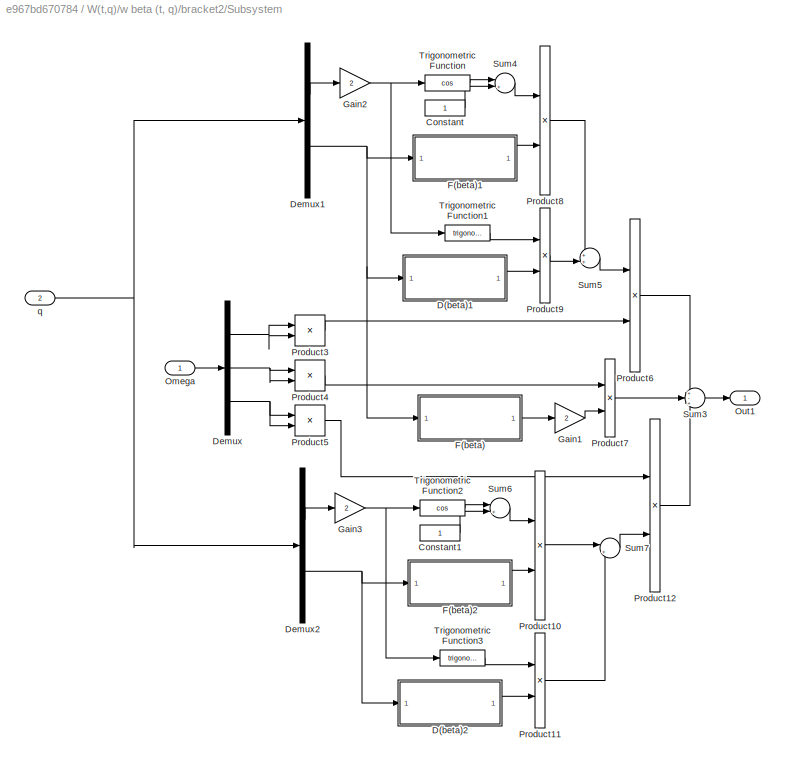
BLOCK [SubSystem] W(t,q)/w beta (t, q)/bracket2/Subsystem
  Ports = [2, 1]
  RequestExecContextInheritance = off
BLOCK [Constant] W(t,q)/w beta (t, q)/bracket2/Subsystem/Constant
BLOCK [Constant] W(t,q)/w beta (t, q)/bracket2/Subsystem/Constant1
BLOCK [SubSystem] W(t,q)/w beta (t, q)/bracket2/Subsystem/D(beta)1
  Ports = [1, 1]
  RequestExecContextInheritance = off
BLOCK [Outport] W(t,q)/w beta (t, q)/bracket2/Subsystem/D(beta)1/D
  IconDisplay = Port number
BLOCK [Gain] W(t,q)/w beta (t, q)/bracket2/Subsystem/D(beta)1/Gain
  Gain = D2
  OutDataTypeStr = Inherit: Inherit via internal rule
  ParamDataTypeStr = Inherit: Inherit via internal rule
  SaturateOnIntegerOverflow = off
BLOCK [Gain] W(t,q)/w beta (t, q)/bracket2/Subsystem/D(beta)1/Gain2
  Gain = E2
  OutDataTypeStr = Inherit: Inherit via internal rule
  ParamDataTypeStr = Inherit: Inherit via internal rule
  SaturateOnIntegerOverflow = off
BLOCK [Sum] W(t,q)/w beta (t, q)/bracket2/Subsystem/D(beta)1/Sum
  IconShape = round
  InputSameDT = off
  OutDataTypeStr = Inherit: Inherit via internal rule
  Ports = [2, 1]
  SaturateOnIntegerOverflow = off
BLOCK [Trigonometry] W(t,q)/w beta (t, q)/bracket2/Subsystem/D(beta)1/Trigonometric Function
  Operator = cos
  Ports = [1, 1]
BLOCK [Trigonometry] W(t,q)/w beta (t, q)/bracket2/Subsystem/D(beta)1/Trigonometric Function2
  Ports = [1, 1]
BLOCK [Inport] W(t,q)/w beta (t, q)/bracket2/Subsystem/D(beta)1/beta
  IconDisplay = Port number
BLOCK [SubSystem] W(t,q)/w beta (t, q)/bracket2/Subsystem/D(beta)2
  Ports = [1, 1]
  RequestExecContextInheritance = off
BLOCK [Outport] W(t,q)/w beta (t, q)/bracket2/Subsystem/D(beta)2/D
  IconDisplay = Port number
BLOCK [Gain] W(t,q)/w beta (t, q)/bracket2/Subsystem/D(beta)2/Gain
  Gain = D2
  OutDataTypeStr = Inherit: Inherit via internal rule
  ParamDataTypeStr = Inherit: Inherit via internal rule
  SaturateOnIntegerOverflow = off
BLOCK [Gain] W(t,q)/w beta (t, q)/bracket2/Subsystem/D(beta)2/Gain2
  Gain = E2
  OutDataTypeStr = Inherit: Inherit via internal rule
  ParamDataTypeStr = Inherit: Inherit via internal rule
  SaturateOnIntegerOverflow = off
BLOCK [Sum] W(t,q)/w beta (t, q)/bracket2/Subsystem/D(beta)2/Sum
  IconShape = round
  InputSameDT = off
  OutDataTypeStr = Inherit: Inherit via internal rule
  Ports = [2, 1]
  SaturateOnIntegerOverflow = off
BLOCK [Trigonometry] W(t,q)/w beta (t, q)/bracket2/Subsystem/D(beta)2/Trigonometric Function
  Operator = cos
  Ports = [1, 1]
BLOCK [Trigonometry] W(t,q)/w beta (t, q)/bracket2/Subsystem/D(beta)2/Trigonometric Function2
  Ports = [1, 1]
BLOCK [Inport] W(t,q)/w beta (t, q)/bracket2/Subsystem/D(beta)2/beta
  IconDisplay = Port number
BLOCK [Demux] W(t,q)/w beta (t, q)/bracket2/Subsystem/Demux
  DisplayOption = bar
  Outputs = 3
  Ports = [1, 3]
BLOCK [Demux] W(t,q)/w beta (t, q)/bracket2/Subsystem/Demux1
  DisplayOption = bar
  Outputs = 2
  Ports = [1, 2]
BLOCK [Demux] W(t,q)/w beta (t, q)/bracket2/Subsystem/Demux2
  DisplayOption = bar
  Outputs = 2
  Ports = [1, 2]
BLOCK [SubSystem] W(t,q)/w beta (t, q)/bracket2/Subsystem/F(beta)
  Ports = [1, 1]
  RequestExecContextInheritance = off
BLOCK [Outport] W(t,q)/w beta (t, q)/bracket2/Subsystem/F(beta)/F
  IconDisplay = Port number
BLOCK [Gain] W(t,q)/w beta (t, q)/bracket2/Subsystem/F(beta)/Gain
  Gain = F2
  OutDataTypeStr = Inherit: Inherit via internal rule
  ParamDataTypeStr = Inherit: Inherit via internal rule
  SaturateOnIntegerOverflow = off
BLOCK [Gain] W(t,q)/w beta (t, q)/bracket2/Subsystem/F(beta)/Gain1
  Gain = 2
  OutDataTypeStr = Inherit: Inherit via internal rule
  ParamDataTypeStr = Inherit: Inherit via internal rule
  SaturateOnIntegerOverflow = off
BLOCK [Gain] W(t,q)/w beta (t, q)/bracket2/Subsystem/F(beta)/Gain2
  Gain = (A2-B2)/2
  OutDataTypeStr = Inherit: Inherit via internal rule
  ParamDataTypeStr = Inherit: Inherit via internal rule
  SaturateOnIntegerOverflow = off
BLOCK [Sum] W(t,q)/w beta (t, q)/bracket2/Subsystem/F(beta)/Sum
  IconShape = round
  InputSameDT = off
  Inputs = +-
  OutDataTypeStr = Inherit: Inherit via internal rule
  Ports = [2, 1]
  SaturateOnIntegerOverflow = off
BLOCK [Trigonometry] W(t,q)/w beta (t, q)/bracket2/Subsystem/F(beta)/Trigonometric Function
  Operator = cos
  Ports = [1, 1]
BLOCK [Trigonometry] W(t,q)/w beta (t, q)/bracket2/Subsystem/F(beta)/Trigonometric Function2
  Ports = [1, 1]
BLOCK [Inport] W(t,q)/w beta (t, q)/bracket2/Subsystem/F(beta)/beta
  IconDisplay = Port number
BLOCK [SubSystem] W(t,q)/w beta (t, q)/bracket2/Subsystem/F(beta)1
  Ports = [1, 1]
  RequestExecContextInheritance = off
BLOCK [Outport] W(t,q)/w beta (t, q)/bracket2/Subsystem/F(beta)1/F
  IconDisplay = Port number
BLOCK [Gain] W(t,q)/w beta (t, q)/bracket2/Subsystem/F(beta)1/Gain
  Gain = F2
  OutDataTypeStr = Inherit: Inherit via internal rule
  ParamDataTypeStr = Inherit: Inherit via internal rule
  SaturateOnIntegerOverflow = off
BLOCK [Gain] W(t,q)/w beta (t, q)/bracket2/Subsystem/F(beta)1/Gain1
  Gain = 2
  OutDataTypeStr = Inherit: Inherit via internal rule
  ParamDataTypeStr = Inherit: Inherit via internal rule
  SaturateOnIntegerOverflow = off
BLOCK [Gain] W(t,q)/w beta (t, q)/bracket2/Subsystem/F(beta)1/Gain2
  Gain = (A2-B2)/2
  OutDataTypeStr = Inherit: Inherit via internal rule
  ParamDataTypeStr = Inherit: Inherit via internal rule
  SaturateOnIntegerOverflow = off
BLOCK [Sum] W(t,q)/w beta (t, q)/bracket2/Subsystem/F(beta)1/Sum
  IconShape = round
  InputSameDT = off
  Inputs = +-
  OutDataTypeStr = Inherit: Inherit via internal rule
  Ports = [2, 1]
  SaturateOnIntegerOverflow = off
BLOCK [Trigonometry] W(t,q)/w beta (t, q)/bracket2/Subsystem/F(beta)1/Trigonometric Function
  Operator = cos
  Ports = [1, 1]
BLOCK [Trigonometry] W(t,q)/w beta (t, q)/bracket2/Subsystem/F(beta)1/Trigonometric Function2
  Ports = [1, 1]
BLOCK [Inport] W(t,q)/w beta (t, q)/bracket2/Subsystem/F(beta)1/beta
  IconDisplay = Port number
BLOCK [SubSystem] W(t,q)/w beta (t, q)/bracket2/Subsystem/F(beta)2
  Ports = [1, 1]
  RequestExecContextInheritance = off
BLOCK [Outport] W(t,q)/w beta (t, q)/bracket2/Subsystem/F(beta)2/F
  IconDisplay = Port number
BLOCK [Gain] W(t,q)/w beta (t, q)/bracket2/Subsystem/F(beta)2/Gain
  Gain = F2
  OutDataTypeStr = Inherit: Inherit via internal rule
  ParamDataTypeStr = Inherit: Inherit via internal rule
  SaturateOnIntegerOverflow = off
BLOCK [Gain] W(t,q)/w beta (t, q)/bracket2/Subsystem/F(beta)2/Gain1
  Gain = 2
  OutDataTypeStr = Inherit: Inherit via internal rule
  ParamDataTypeStr = Inherit: Inherit via internal rule
  SaturateOnIntegerOverflow = off
BLOCK [Gain] W(t,q)/w beta (t, q)/bracket2/Subsystem/F(beta)2/Gain2
  Gain = (A2-B2)/2
  OutDataTypeStr = Inherit: Inherit via internal rule
  ParamDataTypeStr = Inherit: Inherit via internal rule
  SaturateOnIntegerOverflow = off
BLOCK [Sum] W(t,q)/w beta (t, q)/bracket2/Subsystem/F(beta)2/Sum
  IconShape = round
  InputSameDT = off
  Inputs = +-
  OutDataTypeStr = Inherit: Inherit via internal rule
  Ports = [2, 1]
  SaturateOnIntegerOverflow = off
BLOCK [Trigonometry] W(t,q)/w beta (t, q)/bracket2/Subsystem/F(beta)2/Trigonometric Function
  Operator = cos
  Ports = [1, 1]
BLOCK [Trigonometry] W(t,q)/w beta (t, q)/bracket2/Subsystem/F(beta)2/Trigonometric Function2
  Ports = [1, 1]
BLOCK [Inport] W(t,q)/w beta (t, q)/bracket2/Subsystem/F(beta)2/beta
  IconDisplay = Port number
BLOCK [Gain] W(t,q)/w beta (t, q)/bracket2/Subsystem/Gain1
  Gain = 2
  OutDataTypeStr = Inherit: Inherit via internal rule
  ParamDataTypeStr = Inherit: Inherit via internal rule
  SaturateOnIntegerOverflow = off
BLOCK [Gain] W(t,q)/w beta (t, q)/bracket2/Subsystem/Gain2
  Gain = 2
  OutDataTypeStr = Inherit: Inherit via internal rule
  ParamDataTypeStr = Inherit: Inherit via internal rule
  SaturateOnIntegerOverflow = off
BLOCK [Gain] W(t,q)/w beta (t, q)/bracket2/Subsystem/Gain3
  Gain = 2
  OutDataTypeStr = Inherit: Inherit via internal rule
  ParamDataTypeStr = Inherit: Inherit via internal rule
  SaturateOnIntegerOverflow = off
BLOCK [Inport] W(t,q)/w beta (t, q)/bracket2/Subsystem/Omega
  IconDisplay = Port number
BLOCK [Outport] W(t,q)/w beta (t, q)/bracket2/Subsystem/Out1
  IconDisplay = Port number
BLOCK [Product] W(t,q)/w beta (t, q)/bracket2/Subsystem/Product10
  InputSameDT = off
  OutDataTypeStr = Inherit: Inherit via internal rule
  Ports = [2, 1]
  RndMeth = Floor
  SaturateOnIntegerOverflow = off
BLOCK [Product] W(t,q)/w beta (t, q)/bracket2/Subsystem/Product11
  InputSameDT = off
  OutDataTypeStr = Inherit: Inherit via internal rule
  Ports = [2, 1]
  RndMeth = Floor
  SaturateOnIntegerOverflow = off
BLOCK [Product] W(t,q)/w beta (t, q)/bracket2/Subsystem/Product12
  InputSameDT = off
  OutDataTypeStr = Inherit: Inherit via internal rule
  Ports = [2, 1]
  RndMeth = Floor
  SaturateOnIntegerOverflow = off
BLOCK [Product] W(t,q)/w beta (t, q)/bracket2/Subsystem/Product3
  InputSameDT = off
  OutDataTypeStr = Inherit: Inherit via internal rule
  Ports = [2, 1]
  RndMeth = Floor
  SaturateOnIntegerOverflow = off
BLOCK [Product] W(t,q)/w beta (t, q)/bracket2/Subsystem/Product4
  InputSameDT = off
  OutDataTypeStr = Inherit: Inherit via internal rule
  Ports = [2, 1]
  RndMeth = Floor
  SaturateOnIntegerOverflow = off
BLOCK [Product] W(t,q)/w beta (t, q)/bracket2/Subsystem/Product5
  InputSameDT = off
  OutDataTypeStr = Inherit: Inherit via internal rule
  Ports = [2, 1]
  RndMeth = Floor
  SaturateOnIntegerOverflow = off
BLOCK [Product] W(t,q)/w beta (t, q)/bracket2/Subsystem/Product6
  InputSameDT = off
  OutDataTypeStr = Inherit: Inherit via internal rule
  Ports = [2, 1]
  RndMeth = Floor
  SaturateOnIntegerOverflow = off
BLOCK [Product] W(t,q)/w beta (t, q)/bracket2/Subsystem/Product7
  InputSameDT = off
  OutDataTypeStr = Inherit: Inherit via internal rule
  Ports = [2, 1]
  RndMeth = Floor
  SaturateOnIntegerOverflow = off
BLOCK [Product] W(t,q)/w beta (t, q)/bracket2/Subsystem/Product8
  InputSameDT = off
  OutDataTypeStr = Inherit: Inherit via internal rule
  Ports = [2, 1]
  RndMeth = Floor
  SaturateOnIntegerOverflow = off
BLOCK [Product] W(t,q)/w beta (t, q)/bracket2/Subsystem/Product9
  InputSameDT = off
  OutDataTypeStr = Inherit: Inherit via internal rule
  Ports = [2, 1]
  RndMeth = Floor
  SaturateOnIntegerOverflow = off
BLOCK [Sum] W(t,q)/w beta (t, q)/bracket2/Subsystem/Sum3
  IconShape = round
  InputSameDT = off
  Inputs = +-+
  OutDataTypeStr = Inherit: Inherit via internal rule
  Ports = [3, 1]
  SaturateOnIntegerOverflow = off
BLOCK [Sum] W(t,q)/w beta (t, q)/bracket2/Subsystem/Sum4
  IconShape = round
  InputSameDT = off
  Inputs = |++
  OutDataTypeStr = Inherit: Inherit via internal rule
  Ports = [2, 1]
  SaturateOnIntegerOverflow = off
BLOCK [Sum] W(t,q)/w beta (t, q)/bracket2/Subsystem/Sum5
  IconShape = round
  InputSameDT = off
  Inputs = ++|
  OutDataTypeStr = Inherit: Inherit via internal rule
  Ports = [2, 1]
  SaturateOnIntegerOverflow = off
BLOCK [Sum] W(t,q)/w beta (t, q)/bracket2/Subsystem/Sum6
  IconShape = round
  InputSameDT = off
  Inputs = |+-
  OutDataTypeStr = Inherit: Inherit via internal rule
  Ports = [2, 1]
  SaturateOnIntegerOverflow = off
BLOCK [Sum] W(t,q)/w beta (t, q)/bracket2/Subsystem/Sum7
  IconShape = round
  InputSameDT = off
  Inputs = |+-
  OutDataTypeStr = Inherit: Inherit via internal rule
  Ports = [2, 1]
  SaturateOnIntegerOverflow = off
BLOCK [Trigonometry] W(t,q)/w beta (t, q)/bracket2/Subsystem/Trigonometric Function
  Operator = cos
  Ports = [1, 1]
BLOCK [Trigonometry] W(t,q)/w beta (t, q)/bracket2/Subsystem/Trigonometric Function1
  Ports = [1, 1]
BLOCK [Trigonometry] W(t,q)/w beta (t, q)/bracket2/Subsystem/Trigonometric Function2
  Operator = cos
  Ports = [1, 1]
BLOCK [Trigonometry] W(t,q)/w beta (t, q)/bracket2/Subsystem/Trigonometric Function3
  Ports = [1, 1]
BLOCK [Inport] W(t,q)/w beta (t, q)/bracket2/Subsystem/q
  IconDisplay = Port number
  Port = 2
BLOCK [SubSystem] W(t,q)/w beta (t, q)/bracket2/Subsystem1
  Ports = [2, 1]
  RequestExecContextInheritance = off
BLOCK [SubSystem] W(t,q)/w beta (t, q)/bracket2/Subsystem1/A2(beta)
  Ports = [1, 1]
  RequestExecContextInheritance = off
BLOCK [Outport] W(t,q)/w beta (t, q)/bracket2/Subsystem1/A2(beta)/A2
  IconDisplay = Port number
BLOCK [Gain] W(t,q)/w beta (t, q)/bracket2/Subsystem1/A2(beta)/Gain
  Gain = A2-B2
  OutDataTypeStr = Inherit: Inherit via internal rule
  ParamDataTypeStr = Inherit: Inherit via internal rule
  SaturateOnIntegerOverflow = off
BLOCK [Gain] W(t,q)/w beta (t, q)/bracket2/Subsystem1/A2(beta)/Gain1
  Gain = 2
  OutDataTypeStr = Inherit: Inherit via internal rule
  ParamDataTypeStr = Inherit: Inherit via internal rule
  SaturateOnIntegerOverflow = off
BLOCK [Gain] W(t,q)/w beta (t, q)/bracket2/Subsystem1/A2(beta)/Gain2
  Gain = F2
  OutDataTypeStr = Inherit: Inherit via internal rule
  ParamDataTypeStr = Inherit: Inherit via internal rule
  SaturateOnIntegerOverflow = off
BLOCK [Gain] W(t,q)/w beta (t, q)/bracket2/Subsystem1/A2(beta)/Gain3
  Gain = 1/2
  OutDataTypeStr = Inherit: Inherit via internal rule
  ParamDataTypeStr = Inherit: Inherit via internal rule
  SaturateOnIntegerOverflow = off
BLOCK [Sum] W(t,q)/w beta (t, q)/bracket2/Subsystem1/A2(beta)/Sum
  IconShape = round
  InputSameDT = off
  OutDataTypeStr = Inherit: Inherit via internal rule
  Ports = [2, 1]
  SaturateOnIntegerOverflow = off
BLOCK [Trigonometry] W(t,q)/w beta (t, q)/bracket2/Subsystem1/A2(beta)/Trigonometric Function
  Operator = cos
  Ports = [1, 1]
BLOCK [Trigonometry] W(t,q)/w beta (t, q)/bracket2/Subsystem1/A2(beta)/Trigonometric Function2
  Ports = [1, 1]
BLOCK [Inport] W(t,q)/w beta (t, q)/bracket2/Subsystem1/A2(beta)/beta
  IconDisplay = Port number
BLOCK [Demux] W(t,q)/w beta (t, q)/bracket2/Subsystem1/Demux1
  DisplayOption = bar
  Outputs = 2
  Ports = [1, 2]
BLOCK [SubSystem] W(t,q)/w beta (t, q)/bracket2/Subsystem1/E(beta)
  Ports = [1, 1]
  RequestExecContextInheritance = off
BLOCK [Outport] W(t,q)/w beta (t, q)/bracket2/Subsystem1/E(beta)/E
  IconDisplay = Port number
BLOCK [Gain] W(t,q)/w beta (t, q)/bracket2/Subsystem1/E(beta)/Gain
  Gain = E2
  OutDataTypeStr = Inherit: Inherit via internal rule
  ParamDataTypeStr = Inherit: Inherit via internal rule
  SaturateOnIntegerOverflow = off
BLOCK [Gain] W(t,q)/w beta (t, q)/bracket2/Subsystem1/E(beta)/Gain2
  Gain = D2
  OutDataTypeStr = Inherit: Inherit via internal rule
  ParamDataTypeStr = Inherit: Inherit via internal rule
  SaturateOnIntegerOverflow = off
BLOCK [Sum] W(t,q)/w beta (t, q)/bracket2/Subsystem1/E(beta)/Sum
  IconShape = round
  InputSameDT = off
  Inputs = +-
  OutDataTypeStr = Inherit: Inherit via internal rule
  Ports = [2, 1]
  SaturateOnIntegerOverflow = off
BLOCK [Trigonometry] W(t,q)/w beta (t, q)/bracket2/Subsystem1/E(beta)/Trigonometric Function
  Operator = cos
  Ports = [1, 1]
BLOCK [Trigonometry] W(t,q)/w beta (t, q)/bracket2/Subsystem1/E(beta)/Trigonometric Function2
  Ports = [1, 1]
BLOCK [Inport] W(t,q)/w beta (t, q)/bracket2/Subsystem1/E(beta)/beta
  IconDisplay = Port number
BLOCK [Gain] W(t,q)/w beta (t, q)/bracket2/Subsystem1/Gain1
  Gain = 2
  OutDataTypeStr = Inherit: Inherit via internal rule
  ParamDataTypeStr = Inherit: Inherit via internal rule
  SaturateOnIntegerOverflow = off
BLOCK [Outport] W(t,q)/w beta (t, q)/bracket2/Subsystem1/Out1
  IconDisplay = Port number
BLOCK [Product] W(t,q)/w beta (t, q)/bracket2/Subsystem1/Product
  InputSameDT = off
  OutDataTypeStr = Inherit: Inherit via internal rule
  Ports = [2, 1]
  RndMeth = Floor
  SaturateOnIntegerOverflow = off
BLOCK [Product] W(t,q)/w beta (t, q)/bracket2/Subsystem1/Product1
  InputSameDT = off
  OutDataTypeStr = Inherit: Inherit via internal rule
  Ports = [2, 1]
  RndMeth = Floor
  SaturateOnIntegerOverflow = off
BLOCK [Product] W(t,q)/w beta (t, q)/bracket2/Subsystem1/Product3
  InputSameDT = off
  OutDataTypeStr = Inherit: Inherit via internal rule
  Ports = [2, 1]
  RndMeth = Floor
  SaturateOnIntegerOverflow = off
BLOCK [Sum] W(t,q)/w beta (t, q)/bracket2/Subsystem1/Sum
  IconShape = round
  InputSameDT = off
  Inputs = +-
  OutDataTypeStr = Inherit: Inherit via internal rule
  Ports = [2, 1]
  SaturateOnIntegerOverflow = off
BLOCK [Trigonometry] W(t,q)/w beta (t, q)/bracket2/Subsystem1/Trigonometric Function
  Operator = cos
  Ports = [1, 1]
BLOCK [Trigonometry] W(t,q)/w beta (t, q)/bracket2/Subsystem1/Trigonometric Function1
  Ports = [1, 1]
BLOCK [Inport] W(t,q)/w beta (t, q)/bracket2/Subsystem1/omega x omega y
  IconDisplay = Port number
  Port = 2
BLOCK [Inport] W(t,q)/w beta (t, q)/bracket2/Subsystem1/q
  IconDisplay = Port number
BLOCK [SubSystem] W(t,q)/w beta (t, q)/bracket2/Subsystem2
  Ports = [2, 1]
  RequestExecContextInheritance = off
BLOCK [SubSystem] W(t,q)/w beta (t, q)/bracket2/Subsystem2/D(beta)
  Ports = [1, 1]
  RequestExecContextInheritance = off
BLOCK [Outport] W(t,q)/w beta (t, q)/bracket2/Subsystem2/D(beta)/D
  IconDisplay = Port number
BLOCK [Gain] W(t,q)/w beta (t, q)/bracket2/Subsystem2/D(beta)/Gain
  Gain = D2
  OutDataTypeStr = Inherit: Inherit via internal rule
  ParamDataTypeStr = Inherit: Inherit via internal rule
  SaturateOnIntegerOverflow = off
BLOCK [Gain] W(t,q)/w beta (t, q)/bracket2/Subsystem2/D(beta)/Gain2
  Gain = E2
  OutDataTypeStr = Inherit: Inherit via internal rule
  ParamDataTypeStr = Inherit: Inherit via internal rule
  SaturateOnIntegerOverflow = off
BLOCK [Sum] W(t,q)/w beta (t, q)/bracket2/Subsystem2/D(beta)/Sum
  IconShape = round
  InputSameDT = off
  OutDataTypeStr = Inherit: Inherit via internal rule
  Ports = [2, 1]
  SaturateOnIntegerOverflow = off
BLOCK [Trigonometry] W(t,q)/w beta (t, q)/bracket2/Subsystem2/D(beta)/Trigonometric Function
  Operator = cos
  Ports = [1, 1]
BLOCK [Trigonometry] W(t,q)/w beta (t, q)/bracket2/Subsystem2/D(beta)/Trigonometric Function2
  Ports = [1, 1]
BLOCK [Inport] W(t,q)/w beta (t, q)/bracket2/Subsystem2/D(beta)/beta
  IconDisplay = Port number
BLOCK [Demux] W(t,q)/w beta (t, q)/bracket2/Subsystem2/Demux1
  DisplayOption = bar
  Outputs = 2
  Ports = [1, 2]
BLOCK [SubSystem] W(t,q)/w beta (t, q)/bracket2/Subsystem2/F(beta)
  Ports = [1, 1]
  RequestExecContextInheritance = off
BLOCK [Outport] W(t,q)/w beta (t, q)/bracket2/Subsystem2/F(beta)/F
  IconDisplay = Port number
BLOCK [Gain] W(t,q)/w beta (t, q)/bracket2/Subsystem2/F(beta)/Gain
  Gain = F2
  OutDataTypeStr = Inherit: Inherit via internal rule
  ParamDataTypeStr = Inherit: Inherit via internal rule
  SaturateOnIntegerOverflow = off
BLOCK [Gain] W(t,q)/w beta (t, q)/bracket2/Subsystem2/F(beta)/Gain1
  Gain = 2
  OutDataTypeStr = Inherit: Inherit via internal rule
  ParamDataTypeStr = Inherit: Inherit via internal rule
  SaturateOnIntegerOverflow = off
BLOCK [Gain] W(t,q)/w beta (t, q)/bracket2/Subsystem2/F(beta)/Gain2
  Gain = (A2-B2)/2
  OutDataTypeStr = Inherit: Inherit via internal rule
  ParamDataTypeStr = Inherit: Inherit via internal rule
  SaturateOnIntegerOverflow = off
BLOCK [Sum] W(t,q)/w beta (t, q)/bracket2/Subsystem2/F(beta)/Sum
  IconShape = round
  InputSameDT = off
  Inputs = +-
  OutDataTypeStr = Inherit: Inherit via internal rule
  Ports = [2, 1]
  SaturateOnIntegerOverflow = off
BLOCK [Trigonometry] W(t,q)/w beta (t, q)/bracket2/Subsystem2/F(beta)/Trigonometric Function
  Operator = cos
  Ports = [1, 1]
BLOCK [Trigonometry] W(t,q)/w beta (t, q)/bracket2/Subsystem2/F(beta)/Trigonometric Function2
  Ports = [1, 1]
BLOCK [Inport] W(t,q)/w beta (t, q)/bracket2/Subsystem2/F(beta)/beta
  IconDisplay = Port number
BLOCK [Gain] W(t,q)/w beta (t, q)/bracket2/Subsystem2/Gain
  Gain = 2
  OutDataTypeStr = Inherit: Inherit via internal rule
  ParamDataTypeStr = Inherit: Inherit via internal rule
  SaturateOnIntegerOverflow = off
BLOCK [Outport] W(t,q)/w beta (t, q)/bracket2/Subsystem2/Out1
  IconDisplay = Port number
BLOCK [Product] W(t,q)/w beta (t, q)/bracket2/Subsystem2/Product
  InputSameDT = off
  OutDataTypeStr = Inherit: Inherit via internal rule
  Ports = [2, 1]
  RndMeth = Floor
  SaturateOnIntegerOverflow = off
BLOCK [Product] W(t,q)/w beta (t, q)/bracket2/Subsystem2/Product1
  InputSameDT = off
  OutDataTypeStr = Inherit: Inherit via internal rule
  Ports = [2, 1]
  RndMeth = Floor
  SaturateOnIntegerOverflow = off
BLOCK [Product] W(t,q)/w beta (t, q)/bracket2/Subsystem2/Product3
  InputSameDT = off
  OutDataTypeStr = Inherit: Inherit via internal rule
  Ports = [2, 1]
  RndMeth = Floor
  SaturateOnIntegerOverflow = off
BLOCK [Sum] W(t,q)/w beta (t, q)/bracket2/Subsystem2/Sum
  IconShape = round
  InputSameDT = off
  Inputs = +-
  OutDataTypeStr = Inherit: Inherit via internal rule
  Ports = [2, 1]
  SaturateOnIntegerOverflow = off
BLOCK [Trigonometry] W(t,q)/w beta (t, q)/bracket2/Subsystem2/Trigonometric Function
  Ports = [1, 1]
BLOCK [Trigonometry] W(t,q)/w beta (t, q)/bracket2/Subsystem2/Trigonometric Function1
  Operator = cos
  Ports = [1, 1]
BLOCK [Inport] W(t,q)/w beta (t, q)/bracket2/Subsystem2/omega x omega z
  IconDisplay = Port number
  Port = 2
BLOCK [Inport] W(t,q)/w beta (t, q)/bracket2/Subsystem2/q
  IconDisplay = Port number
BLOCK [SubSystem] W(t,q)/w beta (t, q)/bracket2/Subsystem3
  Ports = [2, 1]
  RequestExecContextInheritance = off
BLOCK [SubSystem] W(t,q)/w beta (t, q)/bracket2/Subsystem3/A2(beta)
  Ports = [1, 1]
  RequestExecContextInheritance = off
BLOCK [Outport] W(t,q)/w beta (t, q)/bracket2/Subsystem3/A2(beta)/A2
  IconDisplay = Port number
BLOCK [Gain] W(t,q)/w beta (t, q)/bracket2/Subsystem3/A2(beta)/Gain
  Gain = A2-B2
  OutDataTypeStr = Inherit: Inherit via internal rule
  ParamDataTypeStr = Inherit: Inherit via internal rule
  SaturateOnIntegerOverflow = off
BLOCK [Gain] W(t,q)/w beta (t, q)/bracket2/Subsystem3/A2(beta)/Gain1
  Gain = 2
  OutDataTypeStr = Inherit: Inherit via internal rule
  ParamDataTypeStr = Inherit: Inherit via internal rule
  SaturateOnIntegerOverflow = off
BLOCK [Gain] W(t,q)/w beta (t, q)/bracket2/Subsystem3/A2(beta)/Gain2
  Gain = F2
  OutDataTypeStr = Inherit: Inherit via internal rule
  ParamDataTypeStr = Inherit: Inherit via internal rule
  SaturateOnIntegerOverflow = off
BLOCK [Gain] W(t,q)/w beta (t, q)/bracket2/Subsystem3/A2(beta)/Gain3
  Gain = 1/2
  OutDataTypeStr = Inherit: Inherit via internal rule
  ParamDataTypeStr = Inherit: Inherit via internal rule
  SaturateOnIntegerOverflow = off
BLOCK [Sum] W(t,q)/w beta (t, q)/bracket2/Subsystem3/A2(beta)/Sum
  IconShape = round
  InputSameDT = off
  OutDataTypeStr = Inherit: Inherit via internal rule
  Ports = [2, 1]
  SaturateOnIntegerOverflow = off
BLOCK [Trigonometry] W(t,q)/w beta (t, q)/bracket2/Subsystem3/A2(beta)/Trigonometric Function
  Operator = cos
  Ports = [1, 1]
BLOCK [Trigonometry] W(t,q)/w beta (t, q)/bracket2/Subsystem3/A2(beta)/Trigonometric Function2
  Ports = [1, 1]
BLOCK [Inport] W(t,q)/w beta (t, q)/bracket2/Subsystem3/A2(beta)/beta
  IconDisplay = Port number
BLOCK [Demux] W(t,q)/w beta (t, q)/bracket2/Subsystem3/Demux1
  DisplayOption = bar
  Outputs = 2
  Ports = [1, 2]
BLOCK [SubSystem] W(t,q)/w beta (t, q)/bracket2/Subsystem3/E(beta)
  Ports = [1, 1]
  RequestExecContextInheritance = off
BLOCK [Outport] W(t,q)/w beta (t, q)/bracket2/Subsystem3/E(beta)/E
  IconDisplay = Port number
BLOCK [Gain] W(t,q)/w beta (t, q)/bracket2/Subsystem3/E(beta)/Gain
  Gain = E2
  OutDataTypeStr = Inherit: Inherit via internal rule
  ParamDataTypeStr = Inherit: Inherit via internal rule
  SaturateOnIntegerOverflow = off
BLOCK [Gain] W(t,q)/w beta (t, q)/bracket2/Subsystem3/E(beta)/Gain2
  Gain = D2
  OutDataTypeStr = Inherit: Inherit via internal rule
  ParamDataTypeStr = Inherit: Inherit via internal rule
  SaturateOnIntegerOverflow = off
BLOCK [Sum] W(t,q)/w beta (t, q)/bracket2/Subsystem3/E(beta)/Sum
  IconShape = round
  InputSameDT = off
  Inputs = +-
  OutDataTypeStr = Inherit: Inherit via internal rule
  Ports = [2, 1]
  SaturateOnIntegerOverflow = off
BLOCK [Trigonometry] W(t,q)/w beta (t, q)/bracket2/Subsystem3/E(beta)/Trigonometric Function
  Operator = cos
  Ports = [1, 1]
BLOCK [Trigonometry] W(t,q)/w beta (t, q)/bracket2/Subsystem3/E(beta)/Trigonometric Function2
  Ports = [1, 1]
BLOCK [Inport] W(t,q)/w beta (t, q)/bracket2/Subsystem3/E(beta)/beta
  IconDisplay = Port number
BLOCK [Gain] W(t,q)/w beta (t, q)/bracket2/Subsystem3/Gain1
  Gain = 2
  OutDataTypeStr = Inherit: Inherit via internal rule
  ParamDataTypeStr = Inherit: Inherit via internal rule
  SaturateOnIntegerOverflow = off
BLOCK [Outport] W(t,q)/w beta (t, q)/bracket2/Subsystem3/Out1
  IconDisplay = Port number
BLOCK [Product] W(t,q)/w beta (t, q)/bracket2/Subsystem3/Product
  InputSameDT = off
  OutDataTypeStr = Inherit: Inherit via internal rule
  Ports = [2, 1]
  RndMeth = Floor
  SaturateOnIntegerOverflow = off
BLOCK [Product] W(t,q)/w beta (t, q)/bracket2/Subsystem3/Product1
  InputSameDT = off
  OutDataTypeStr = Inherit: Inherit via internal rule
  Ports = [2, 1]
  RndMeth = Floor
  SaturateOnIntegerOverflow = off
BLOCK [Product] W(t,q)/w beta (t, q)/bracket2/Subsystem3/Product3
  InputSameDT = off
  OutDataTypeStr = Inherit: Inherit via internal rule
  Ports = [2, 1]
  RndMeth = Floor
  SaturateOnIntegerOverflow = off
BLOCK [Sum] W(t,q)/w beta (t, q)/bracket2/Subsystem3/Sum
  IconShape = round
  InputSameDT = off
  OutDataTypeStr = Inherit: Inherit via internal rule
  Ports = [2, 1]
  SaturateOnIntegerOverflow = off
BLOCK [Trigonometry] W(t,q)/w beta (t, q)/bracket2/Subsystem3/Trigonometric Function
  Operator = cos
  Ports = [1, 1]
BLOCK [Trigonometry] W(t,q)/w beta (t, q)/bracket2/Subsystem3/Trigonometric Function1
  Ports = [1, 1]
BLOCK [Inport] W(t,q)/w beta (t, q)/bracket2/Subsystem3/omega y omega z
  IconDisplay = Port number
  Port = 2
BLOCK [Inport] W(t,q)/w beta (t, q)/bracket2/Subsystem3/q
  IconDisplay = Port number
BLOCK [Sum] W(t,q)/w beta (t, q)/bracket2/Sum1
  IconShape = round
  InputSameDT = off
  Inputs = ++|
  OutDataTypeStr = Inherit: Inherit via internal rule
  Ports = [2, 1]
  SaturateOnIntegerOverflow = off
BLOCK [Sum] W(t,q)/w beta (t, q)/bracket2/Sum8
  IconShape = round
  InputSameDT = off
  Inputs = +--
  OutDataTypeStr = Inherit: Inherit via internal rule
  Ports = [3, 1]
  SaturateOnIntegerOverflow = off
BLOCK [Inport] W(t,q)/w beta (t, q)/bracket2/q
  IconDisplay = Port number
  Port = 2
BLOCK [Inport] W(t,q)/w beta (t, q)/q
  IconDisplay = Port number
  Port = 3
BLOCK [Outport] W(t,q)/w beta (t, q)/w alpha
  IconDisplay = Port number
BLOCK [ZeroOrderHold] Zero-Order Hold
  SampleTime = Tpwm
BLOCK [Inport] q dot
  IconDisplay = Port number
  Port = 2
BLOCK [Inport] q dot dot
  IconDisplay = Port number
BLOCK [SubSystem] Носитель
  Ports = [0, 1]
  RequestExecContextInheritance = off
BLOCK [Clock] Носитель/Clock
BLOCK [Gain] Носитель/Gain
  Gain = AMP1
  OutDataTypeStr = Inherit: Inherit via internal rule
  ParamDataTypeStr = Inherit: Inherit via internal rule
  SaturateOnIntegerOverflow = off
BLOCK [Gain] Носитель/Gain1
  Gain = AMP2
  OutDataTypeStr = Inherit: Inherit via internal rule
  ParamDataTypeStr = Inherit: Inherit via internal rule
  SaturateOnIntegerOverflow = off
BLOCK [Gain] Носитель/Gain2
  Gain = omega1
  OutDataTypeStr = Inherit: Inherit via internal rule
  ParamDataTypeStr = Inherit: Inherit via internal rule
  SaturateOnIntegerOverflow = off
BLOCK [Gain] Носитель/Gain3
  Gain = omega2
  OutDataTypeStr = Inherit: Inherit via internal rule
  ParamDataTypeStr = Inherit: Inherit via internal rule
  SaturateOnIntegerOverflow = off
BLOCK [Outport] Носитель/Omega
  IconDisplay = Port number
BLOCK [Reference] Носитель/Ramp  REF=simulink/Sources/Ramp
  Ports = [0, 1]
  SourceBlock = simulink/Sources/Ramp
  SourceProductBaseCode = SL
  SourceProductName = Simulink
  SourceType = Ramp
BLOCK [Sum] Носитель/Sum1
  IconShape = round
  InputSameDT = off
  Inputs = +++
  OutDataTypeStr = Inherit: Inherit via internal rule
  Ports = [3, 1]
  SaturateOnIntegerOverflow = off
BLOCK [Trigonometry] Носитель/Trigonometric Function
  Ports = [1, 1]
BLOCK [Trigonometry] Носитель/Trigonometric Function1
  Ports = [1, 1]
BLOCK [SubSystem] Программное устройство
  Ports = [3, 3]
  RequestExecContextInheritance = off
BLOCK [Abs] Программное устройство/Abs
  SaturateOnIntegerOverflow = off
  ZeroCross = off
BLOCK [Constant] Программное устройство/Constant1
  Value = 2
BLOCK [Constant] Программное устройство/Constant2
  Value = 1/2
BLOCK [Constant] Программное устройство/Constant3
  Value = 0.01
BLOCK [DataTypeConversion] Программное устройство/Data Type Conversion1
  RndMeth = Floor
  SaturateOnIntegerOverflow = off
BLOCK [DataTypeConversion] Программное устройство/Data Type Conversion2
  RndMeth = Floor
  SaturateOnIntegerOverflow = off
BLOCK [Product] Программное устройство/Divide
  InputSameDT = off
  Inputs = */
  OutDataTypeStr = Inherit: Inherit via internal rule
  Ports = [2, 1]
  RndMeth = Floor
  SaturateOnIntegerOverflow = off
BLOCK [Gain] Программное устройство/Gain
  Gain = 1/2
  OutDataTypeStr = Inherit: Inherit via internal rule
  ParamDataTypeStr = Inherit: Inherit via internal rule
  SaturateOnIntegerOverflow = off
BLOCK [Gain] Программное устройство/Gain1
  Gain = 2
  OutDataTypeStr = Inherit: Inherit via internal rule
  ParamDataTypeStr = Inherit: Inherit via internal rule
  SaturateOnIntegerOverflow = off
BLOCK [Gain] Программное устройство/Gain3
  Gain = 4
  OutDataTypeStr = Inherit: Inherit via internal rule
  ParamDataTypeStr = Inherit: Inherit via internal rule
  SaturateOnIntegerOverflow = off
BLOCK [Integrator] Программное устройство/Integrator
  Ports = [1, 1]
BLOCK [Integrator] Программное устройство/Integrator1
  Ports = [1, 1]
BLOCK [Math] Программное устройство/Math Function
  Operator = pow
  Ports = [2, 1]
BLOCK [Product] Программное устройство/Product
  InputSameDT = off
  Inputs = 3
  OutDataTypeStr = Inherit: Inherit via internal rule
  Ports = [3, 1]
  RndMeth = Floor
  SaturateOnIntegerOverflow = off
BLOCK [Product] Программное устройство/Product1
  InputSameDT = off
  OutDataTypeStr = Inherit: Inherit via internal rule
  Ports = [2, 1]
  RndMeth = Floor
  SaturateOnIntegerOverflow = off
BLOCK [RelationalOperator] Программное устройство/Relational Operator
  InputSameDT = off
  Operator = <=
  OutDataTypeStr = boolean
  Ports = [2, 1]
  RndMeth = Simplest
  ZeroCross = off
BLOCK [RelationalOperator] Программное устройство/Relational Operator1
  InputSameDT = off
  OutDataTypeStr = boolean
  Ports = [2, 1]
  RndMeth = Simplest
  ZeroCross = off
BLOCK [Sum] Программное устройство/Sum
  IconShape = round
  InputSameDT = off
  Inputs = |+-
  OutDataTypeStr = Inherit: Inherit via internal rule
  Ports = [2, 1]
  SaturateOnIntegerOverflow = off
BLOCK [Sum] Программное устройство/Sum1
  IconShape = round
  InputSameDT = off
  Inputs = |+-
  OutDataTypeStr = Inherit: Inherit via internal rule
  Ports = [2, 1]
  SaturateOnIntegerOverflow = off
BLOCK [Outport] Программное устройство/acc
  IconDisplay = Port number
  Port = 3
BLOCK [Outport] Программное устройство/angle
  IconDisplay = Port number
BLOCK [Inport] Программное устройство/dt
  IconDisplay = Port number
  Port = 3
BLOCK [Inport] Программное устройство/dx 
  IconDisplay = Port number
  Port = 2
BLOCK [Inport] Программное устройство/target
  IconDisplay = Port number
BLOCK [Outport] Программное устройство/velocity
  IconDisplay = Port number
  Port = 2
BLOCK [SubSystem] Программное устройство1
  Ports = [3, 3]
  RequestExecContextInheritance = off
BLOCK [Abs] Программное устройство1/Abs
  SaturateOnIntegerOverflow = off
  ZeroCross = off
BLOCK [Constant] Программное устройство1/Constant1
  Value = 2
BLOCK [Constant] Программное устройство1/Constant2
  Value = 1/2
BLOCK [Constant] Программное устройство1/Constant3
  Value = 0.01
BLOCK [DataTypeConversion] Программное устройство1/Data Type Conversion1
  RndMeth = Floor
  SaturateOnIntegerOverflow = off
BLOCK [DataTypeConversion] Программное устройство1/Data Type Conversion2
  RndMeth = Floor
  SaturateOnIntegerOverflow = off
BLOCK [Product] Программное устройство1/Divide
  InputSameDT = off
  Inputs = */
  OutDataTypeStr = Inherit: Inherit via internal rule
  Ports = [2, 1]
  RndMeth = Floor
  SaturateOnIntegerOverflow = off
BLOCK [Gain] Программное устройство1/Gain
  Gain = 1/2
  OutDataTypeStr = Inherit: Inherit via internal rule
  ParamDataTypeStr = Inherit: Inherit via internal rule
  SaturateOnIntegerOverflow = off
BLOCK [Gain] Программное устройство1/Gain1
  Gain = 2
  OutDataTypeStr = Inherit: Inherit via internal rule
  ParamDataTypeStr = Inherit: Inherit via internal rule
  SaturateOnIntegerOverflow = off
BLOCK [Gain] Программное устройство1/Gain3
  Gain = 4
  OutDataTypeStr = Inherit: Inherit via internal rule
  ParamDataTypeStr = Inherit: Inherit via internal rule
  SaturateOnIntegerOverflow = off
BLOCK [Integrator] Программное устройство1/Integrator
  Ports = [1, 1]
BLOCK [Integrator] Программное устройство1/Integrator1
  Ports = [1, 1]
BLOCK [Math] Программное устройство1/Math Function
  Operator = pow
  Ports = [2, 1]
BLOCK [Product] Программное устройство1/Product
  InputSameDT = off
  Inputs = 3
  OutDataTypeStr = Inherit: Inherit via internal rule
  Ports = [3, 1]
  RndMeth = Floor
  SaturateOnIntegerOverflow = off
BLOCK [Product] Программное устройство1/Product1
  InputSameDT = off
  OutDataTypeStr = Inherit: Inherit via internal rule
  Ports = [2, 1]
  RndMeth = Floor
  SaturateOnIntegerOverflow = off
BLOCK [RelationalOperator] Программное устройство1/Relational Operator
  InputSameDT = off
  Operator = <=
  OutDataTypeStr = boolean
  Ports = [2, 1]
  RndMeth = Simplest
  ZeroCross = off
BLOCK [RelationalOperator] Программное устройство1/Relational Operator1
  InputSameDT = off
  OutDataTypeStr = boolean
  Ports = [2, 1]
  RndMeth = Simplest
  ZeroCross = off
BLOCK [Sum] Программное устройство1/Sum
  IconShape = round
  InputSameDT = off
  Inputs = |+-
  OutDataTypeStr = Inherit: Inherit via internal rule
  Ports = [2, 1]
  SaturateOnIntegerOverflow = off
BLOCK [Sum] Программное устройство1/Sum1
  IconShape = round
  InputSameDT = off
  Inputs = |+-
  OutDataTypeStr = Inherit: Inherit via internal rule
  Ports = [2, 1]
  SaturateOnIntegerOverflow = off
BLOCK [Outport] Программное устройство1/acc
  IconDisplay = Port number
  Port = 3
BLOCK [Outport] Программное устройство1/angle
  IconDisplay = Port number
BLOCK [Inport] Программное устройство1/dt
  IconDisplay = Port number
  Port = 3
BLOCK [Inport] Программное устройство1/dx 
  IconDisplay = Port number
  Port = 2
BLOCK [Inport] Программное устройство1/target
  IconDisplay = Port number
BLOCK [Outport] Программное устройство1/velocity
  IconDisplay = Port number
  Port = 2
ANNOTATION Drive/Привод/Angle to 3 phase: Angle to 3 phase
ANNOTATION Drive/Привод/COIL1: COILx
ANNOTATION Drive/Привод/EM torque: Electromagnetic Torque
ANNOTATION Drive/Привод/EMFa: EMF
ANNOTATION Drive/Привод/Interphase2Phase: Interphase to phase currents
ANNOTATION Drive/Привод1/Angle to 3 phase: Angle to 3 phase
ANNOTATION Drive/Привод1/COIL1: COILx
ANNOTATION Drive/Привод1/EM torque: Electromagnetic Torque
ANNOTATION Drive/Привод1/EMFa: EMF
ANNOTATION Drive/Привод1/Interphase2Phase: Interphase to phase currents
LINE A(q)/B(beta)/Constant3:1 -> A(q)/B(beta)/Math Function:2
LINE A(q)/B(beta)/Constant4:1 -> A(q)/B(beta)/Math Function1:2
LINE A(q)/B(beta)/Gain1:1 -> A(q)/B(beta)/Sum:2
LINE A(q)/B(beta)/Gain2:1 -> A(q)/B(beta)/Sum:3
LINE A(q)/B(beta)/Gain3:1 -> A(q)/B(beta)/Trigonometric Function2:1
LINE A(q)/B(beta)/Gain:1 -> A(q)/B(beta)/Sum:1
LINE A(q)/B(beta)/Math Function1:1 -> A(q)/B(beta)/Gain1:1
LINE A(q)/B(beta)/Math Function:1 -> A(q)/B(beta)/Gain:1
LINE A(q)/B(beta)/Sum:1 -> A(q)/B(beta)/B:1
LINE A(q)/B(beta)/Trigonometric Function1:1 -> A(q)/B(beta)/Math Function1:1
LINE A(q)/B(beta)/Trigonometric Function2:1 -> A(q)/B(beta)/Gain2:1
LINE A(q)/B(beta)/Trigonometric Function:1 -> A(q)/B(beta)/Math Function:1
NET A(q)/B(beta)/beta:1 -> A(q)/B(beta)/Gain3:1, A(q)/B(beta)/Trigonometric Function1:1, A(q)/B(beta)/Trigonometric Function:1
LINE A(q)/B(beta):1 -> A(q)/Sum:1
LINE A(q)/Constant10:1 -> A(q)/Vector Concatenate2:2
LINE A(q)/Constant7:1 -> A(q)/Sum:2
LINE A(q)/D(beta)/Gain2:1 -> A(q)/D(beta)/Sum:2
LINE A(q)/D(beta)/Gain:1 -> A(q)/D(beta)/Sum:1
LINE A(q)/D(beta)/Sum:1 -> A(q)/D(beta)/D:1
LINE A(q)/D(beta)/Trigonometric Function2:1 -> A(q)/D(beta)/Gain2:1
LINE A(q)/D(beta)/Trigonometric Function:1 -> A(q)/D(beta)/Gain:1
NET A(q)/D(beta)/beta:1 -> A(q)/D(beta)/Trigonometric Function2:1, A(q)/D(beta)/Trigonometric Function:1
LINE A(q)/D(beta):1 -> A(q)/Gain:1
NET A(q)/Demux:2 -> A(q)/B(beta):1, A(q)/D(beta):1
NET A(q)/Gain:1 -> A(q)/Vector Concatenate1:2, A(q)/Vector Concatenate2:1
LINE A(q)/Sum:1 -> A(q)/Vector Concatenate1:1
LINE A(q)/Vector Concatenate1:1 -> A(q)/Vector Concatenate6:1
LINE A(q)/Vector Concatenate2:1 -> A(q)/Vector Concatenate6:2
NET A(q)/Vector Concatenate6:1 -> A(q)/A:1, A(q)/Display5:1
LINE A(q)/q:1 -> A(q)/Demux:1
NET A(q):1 -> Display1:1, MATLAB Function:1
NET B(t,q)/Constant:1 -> B(t,q)/Vector Concatenate3:1, B(t,q)/Vector Concatenate4:2
LINE B(t,q)/Gain1:1 -> B(t,q)/Vector Concatenate3:2
LINE B(t,q)/Gain:1 -> B(t,q)/Vector Concatenate4:1
LINE B(t,q)/Vector Concatenate3:1 -> B(t,q)/Vector Concatenate5:1
LINE B(t,q)/Vector Concatenate4:1 -> B(t,q)/Vector Concatenate5:2
LINE B(t,q)/Vector Concatenate5:1 -> B(t,q)/B:1
NET B(t,q)/b(t,alpha,beta)/A2(beta)/Gain1:1 -> B(t,q)/b(t,alpha,beta)/A2(beta)/Trigonometric Function2:1, B(t,q)/b(t,alpha,beta)/A2(beta)/Trigonometric Function:1
LINE B(t,q)/b(t,alpha,beta)/A2(beta)/Gain2:1 -> B(t,q)/b(t,alpha,beta)/A2(beta)/Sum:2
LINE B(t,q)/b(t,alpha,beta)/A2(beta)/Gain:1 -> B(t,q)/b(t,alpha,beta)/A2(beta)/Sum:1
LINE B(t,q)/b(t,alpha,beta)/A2(beta)/Sum:1 -> B(t,q)/b(t,alpha,beta)/A2(beta)/A2:1
LINE B(t,q)/b(t,alpha,beta)/A2(beta)/Trigonometric Function2:1 -> B(t,q)/b(t,alpha,beta)/A2(beta)/Gain2:1
LINE B(t,q)/b(t,alpha,beta)/A2(beta)/Trigonometric Function:1 -> B(t,q)/b(t,alpha,beta)/A2(beta)/Gain:1
LINE B(t,q)/b(t,alpha,beta)/A2(beta)/beta:1 -> B(t,q)/b(t,alpha,beta)/A2(beta)/Gain1:1
LINE B(t,q)/b(t,alpha,beta)/A2(beta):1 -> B(t,q)/b(t,alpha,beta)/Gain:1
LINE B(t,q)/b(t,alpha,beta)/Constant:1 -> B(t,q)/b(t,alpha,beta)/Sum:2
LINE B(t,q)/b(t,alpha,beta)/Demux1:1 -> B(t,q)/b(t,alpha,beta)/Product2:1
LINE B(t,q)/b(t,alpha,beta)/Demux1:2 -> B(t,q)/b(t,alpha,beta)/Product4:1
LINE B(t,q)/b(t,alpha,beta)/Demux1:3 -> B(t,q)/b(t,alpha,beta)/Product3:1
NET B(t,q)/b(t,alpha,beta)/Demux:1 -> B(t,q)/b(t,alpha,beta)/Trigonometric Function1:1, B(t,q)/b(t,alpha,beta)/Trigonometric Function2:1, B(t,q)/b(t,alpha,beta)/Trigonometric Function3:1, B(t,q)/b(t,alpha,beta)/Trigonometric Function:1
NET B(t,q)/b(t,alpha,beta)/Demux:2 -> B(t,q)/b(t,alpha,beta)/A2(beta):1, B(t,q)/b(t,alpha,beta)/E(beta):1, B(t,q)/b(t,alpha,beta)/F(beta):1
LINE B(t,q)/b(t,alpha,beta)/E(beta)/Gain2:1 -> B(t,q)/b(t,alpha,beta)/E(beta)/Sum:2
LINE B(t,q)/b(t,alpha,beta)/E(beta)/Gain:1 -> B(t,q)/b(t,alpha,beta)/E(beta)/Sum:1
LINE B(t,q)/b(t,alpha,beta)/E(beta)/Sum:1 -> B(t,q)/b(t,alpha,beta)/E(beta)/E:1
LINE B(t,q)/b(t,alpha,beta)/E(beta)/Trigonometric Function2:1 -> B(t,q)/b(t,alpha,beta)/E(beta)/Gain2:1
LINE B(t,q)/b(t,alpha,beta)/E(beta)/Trigonometric Function:1 -> B(t,q)/b(t,alpha,beta)/E(beta)/Gain:1
NET B(t,q)/b(t,alpha,beta)/E(beta)/beta:1 -> B(t,q)/b(t,alpha,beta)/E(beta)/Trigonometric Function2:1, B(t,q)/b(t,alpha,beta)/E(beta)/Trigonometric Function:1
LINE B(t,q)/b(t,alpha,beta)/E(beta):1 -> B(t,q)/b(t,alpha,beta)/Gain1:1
LINE B(t,q)/b(t,alpha,beta)/F(beta)/Gain1:1 -> B(t,q)/b(t,alpha,beta)/F(beta)/Trigonometric Function2:1
LINE B(t,q)/b(t,alpha,beta)/F(beta)/Gain2:1 -> B(t,q)/b(t,alpha,beta)/F(beta)/Sum:2
LINE B(t,q)/b(t,alpha,beta)/F(beta)/Gain:1 -> B(t,q)/b(t,alpha,beta)/F(beta)/Sum:1
LINE B(t,q)/b(t,alpha,beta)/F(beta)/Sum:1 -> B(t,q)/b(t,alpha,beta)/F(beta)/F:1
LINE B(t,q)/b(t,alpha,beta)/F(beta)/Trigonometric Function2:1 -> B(t,q)/b(t,alpha,beta)/F(beta)/Gain2:1
LINE B(t,q)/b(t,alpha,beta)/F(beta)/Trigonometric Function:1 -> B(t,q)/b(t,alpha,beta)/F(beta)/Gain:1
NET B(t,q)/b(t,alpha,beta)/F(beta)/beta:1 -> B(t,q)/b(t,alpha,beta)/F(beta)/Gain1:1, B(t,q)/b(t,alpha,beta)/F(beta)/Trigonometric Function:1
LINE B(t,q)/b(t,alpha,beta)/F(beta):1 -> B(t,q)/b(t,alpha,beta)/Gain2:1
NET B(t,q)/b(t,alpha,beta)/Gain1:1 -> B(t,q)/b(t,alpha,beta)/Product5:1, B(t,q)/b(t,alpha,beta)/Product6:1
LINE B(t,q)/b(t,alpha,beta)/Gain2:1 -> B(t,q)/b(t,alpha,beta)/Product4:2
LINE B(t,q)/b(t,alpha,beta)/Gain:1 -> B(t,q)/b(t,alpha,beta)/Sum:1
LINE B(t,q)/b(t,alpha,beta)/Product1:1 -> B(t,q)/b(t,alpha,beta)/Sum2:1
LINE B(t,q)/b(t,alpha,beta)/Product2:1 -> B(t,q)/b(t,alpha,beta)/Sum3:1
LINE B(t,q)/b(t,alpha,beta)/Product3:1 -> B(t,q)/b(t,alpha,beta)/Sum3:3
LINE B(t,q)/b(t,alpha,beta)/Product4:1 -> B(t,q)/b(t,alpha,beta)/Sum3:2
LINE B(t,q)/b(t,alpha,beta)/Product5:1 -> B(t,q)/b(t,alpha,beta)/Sum1:2
LINE B(t,q)/b(t,alpha,beta)/Product6:1 -> B(t,q)/b(t,alpha,beta)/Sum2:2
LINE B(t,q)/b(t,alpha,beta)/Product:1 -> B(t,q)/b(t,alpha,beta)/Sum1:1
LINE B(t,q)/b(t,alpha,beta)/Sum1:1 -> B(t,q)/b(t,alpha,beta)/Product2:2
LINE B(t,q)/b(t,alpha,beta)/Sum2:1 -> B(t,q)/b(t,alpha,beta)/Product3:2
LINE B(t,q)/b(t,alpha,beta)/Sum3:1 -> B(t,q)/b(t,alpha,beta)/b:1
NET B(t,q)/b(t,alpha,beta)/Sum:1 -> B(t,q)/b(t,alpha,beta)/Product1:1, B(t,q)/b(t,alpha,beta)/Product:1
LINE B(t,q)/b(t,alpha,beta)/Trigonometric Function1:1 -> B(t,q)/b(t,alpha,beta)/Product1:2
LINE B(t,q)/b(t,alpha,beta)/Trigonometric Function2:1 -> B(t,q)/b(t,alpha,beta)/Product5:2
LINE B(t,q)/b(t,alpha,beta)/Trigonometric Function3:1 -> B(t,q)/b(t,alpha,beta)/Product6:2
LINE B(t,q)/b(t,alpha,beta)/Trigonometric Function:1 -> B(t,q)/b(t,alpha,beta)/Product:2
LINE B(t,q)/b(t,alpha,beta)/omega:1 -> B(t,q)/b(t,alpha,beta)/Demux1:1
LINE B(t,q)/b(t,alpha,beta)/q:1 -> B(t,q)/b(t,alpha,beta)/Demux:1
NET B(t,q)/b(t,alpha,beta):1 -> B(t,q)/Gain1:1, B(t,q)/Gain:1
LINE B(t,q)/omega:1 -> B(t,q)/b(t,alpha,beta):1
LINE B(t,q)/q:1 -> B(t,q)/b(t,alpha,beta):2
LINE B(t,q):1 -> Matrix Multiply2:1
LINE Constant16:1 -> Vector Concatenate2:1
LINE Constant18:1 -> Gain6:1
LINE Constant1:1 -> Программное устройство:2
LINE Constant2:1 -> Программное устройство:3
LINE Constant3:1 -> Vector Concatenate2:2
LINE Constant4:1 -> Vector Concatenate2:3
LINE Constant5:1 -> Программное устройство1:2
LINE Constant6:1 -> Gain2:1
LINE Constant7:1 -> Программное устройство1:3
LINE Constant8:1 -> Vector Concatenate:1
LINE Constant9:1 -> Vector Concatenate:2
LINE Drive/Demux3:1 -> Drive/Transfer Fcn6:1
LINE Drive/Demux3:2 -> Drive/Transfer Fcn7:1
LINE Drive/Demux:1 -> Drive/Transfer Fcn:1
LINE Drive/Demux:2 -> Drive/Transfer Fcn3:1
LINE Drive/M:1 -> Drive/Demux1:1
LINE Drive/Sum1:1 -> Drive/Vector Concatenate6:2
LINE Drive/Sum:1 -> Drive/Vector Concatenate6:1
LINE Drive/Transfer Fcn2:1 -> Drive/Transfer Fcn1:1
LINE Drive/Transfer Fcn3:1 -> Drive/Sum1:2
LINE Drive/Transfer Fcn5:1 -> Drive/Transfer Fcn4:1
LINE Drive/Transfer Fcn6:1 -> Drive/Sum:2
LINE Drive/Transfer Fcn7:1 -> Drive/Sum1:1
LINE Drive/Transfer Fcn:1 -> Drive/Sum:1
LINE Drive/U:1 -> Drive/Demux:1
NET Drive/Vector Concatenate6:1 -> Drive/Mdrv:1, Drive/Scope:1
LINE Drive/q dot_:1 -> Drive/Demux3:1
LINE Drive/q:1 -> Drive/Demux2:1
LINE Drive/Привод/Angle to 3 phase/Constant1:1 -> Drive/Привод/Angle to 3 phase/Sum2:2
NET Drive/Привод/Angle to 3 phase/Constant3:1 -> Drive/Привод/Angle to 3 phase/Sum3:1, Drive/Привод/Angle to 3 phase/Sum4:1, Drive/Привод/Angle to 3 phase/Sum5:1
LINE Drive/Привод/Angle to 3 phase/Constant:1 -> Drive/Привод/Angle to 3 phase/Sum1:2
LINE Drive/Привод/Angle to 3 phase/Product1:1 -> Drive/Привод/Angle to 3 phase/Sum4:2
LINE Drive/Привод/Angle to 3 phase/Product2:1 -> Drive/Привод/Angle to 3 phase/Sum5:2
LINE Drive/Привод/Angle to 3 phase/Product:1 -> Drive/Привод/Angle to 3 phase/Sum3:2
LINE Drive/Привод/Angle to 3 phase/Sum1:1 -> Drive/Привод/Angle to 3 phase/Trigonometric Function1:1
LINE Drive/Привод/Angle to 3 phase/Sum2:1 -> Drive/Привод/Angle to 3 phase/Trigonometric Function2:1
LINE Drive/Привод/Angle to 3 phase/Sum3:1 -> Drive/Привод/Angle to 3 phase/u :1
LINE Drive/Привод/Angle to 3 phase/Sum4:1 -> Drive/Привод/Angle to 3 phase/u 1:1
LINE Drive/Привод/Angle to 3 phase/Sum5:1 -> Drive/Привод/Angle to 3 phase/u 2:1
LINE Drive/Привод/Angle to 3 phase/Trigonometric Function1:1 -> Drive/Привод/Angle to 3 phase/Product1:1
LINE Drive/Привод/Angle to 3 phase/Trigonometric Function2:1 -> Drive/Привод/Angle to 3 phase/Product2:1
LINE Drive/Привод/Angle to 3 phase/Trigonometric Function:1 -> Drive/Привод/Angle to 3 phase/Product:1
NET Drive/Привод/Angle to 3 phase/target:1 -> Drive/Привод/Angle to 3 phase/Sum1:1, Drive/Привод/Angle to 3 phase/Sum2:1, Drive/Привод/Angle to 3 phase/Trigonometric Function:1
NET Drive/Привод/Angle to 3 phase/u:1 -> Drive/Привод/Angle to 3 phase/Product1:2, Drive/Привод/Angle to 3 phase/Product2:2, Drive/Привод/Angle to 3 phase/Product:2
LINE Drive/Привод/Angle to 3 phase:1 -> Drive/Привод/COIL1:1
LINE Drive/Привод/Angle to 3 phase:2 -> Drive/Привод/COIL2 :1
LINE Drive/Привод/Angle to 3 phase:3 -> Drive/Привод/COIL3:1
NET Drive/Привод/Bus Creator:1 -> Drive/Привод/Bus Selector1:1, Drive/Привод/Bus Selector2:1, Drive/Привод/Bus Selector:1
LINE Drive/Привод/Bus Selector1:1 -> Drive/Привод/COIL2 :2
LINE Drive/Привод/Bus Selector1:2 -> Drive/Привод/COIL2 :3
LINE Drive/Привод/Bus Selector2:1 -> Drive/Привод/COIL3:2
LINE Drive/Привод/Bus Selector2:2 -> Drive/Привод/COIL3:3
LINE Drive/Привод/Bus Selector:1 -> Drive/Привод/COIL1:2
LINE Drive/Привод/Bus Selector:2 -> Drive/Привод/COIL1:3
LINE Drive/Привод/COIL1/Sum1:1 -> Drive/Привод/COIL1/Sum:2
LINE Drive/Привод/COIL1/Sum:1 -> Drive/Привод/COIL1/Transfer Fcn:1
LINE Drive/Привод/COIL1/Transfer Fcn:1 -> Drive/Привод/COIL1/iab:1
LINE Drive/Привод/COIL1/Uab:1 -> Drive/Привод/COIL1/Sum:1
LINE Drive/Привод/COIL1/ea :1 -> Drive/Привод/COIL1/Sum1:1
LINE Drive/Привод/COIL1/eb:1 -> Drive/Привод/COIL1/Sum1:2
LINE Drive/Привод/COIL1:1 -> Drive/Привод/Interphase2Phase:1
LINE Drive/Привод/COIL2 /Sum1:1 -> Drive/Привод/COIL2 /Sum:2
LINE Drive/Привод/COIL2 /Sum:1 -> Drive/Привод/COIL2 /Transfer Fcn:1
LINE Drive/Привод/COIL2 /Transfer Fcn:1 -> Drive/Привод/COIL2 /iab:1
LINE Drive/Привод/COIL2 /Uab:1 -> Drive/Привод/COIL2 /Sum:1
LINE Drive/Привод/COIL2 /ea :1 -> Drive/Привод/COIL2 /Sum1:1
LINE Drive/Привод/COIL2 /eb:1 -> Drive/Привод/COIL2 /Sum1:2
LINE Drive/Привод/COIL2 :1 -> Drive/Привод/Interphase2Phase:2
LINE Drive/Привод/COIL3/Sum1:1 -> Drive/Привод/COIL3/Sum:2
LINE Drive/Привод/COIL3/Sum:1 -> Drive/Привод/COIL3/Transfer Fcn:1
LINE Drive/Привод/COIL3/Transfer Fcn:1 -> Drive/Привод/COIL3/iab:1
LINE Drive/Привод/COIL3/Uab:1 -> Drive/Привод/COIL3/Sum:1
LINE Drive/Привод/COIL3/ea :1 -> Drive/Привод/COIL3/Sum1:1
LINE Drive/Привод/COIL3/eb:1 -> Drive/Привод/COIL3/Sum1:2
LINE Drive/Привод/COIL3:1 -> Drive/Привод/Interphase2Phase:3
LINE Drive/Привод/Constant1:1 -> Drive/Привод/EMFa:3
LINE Drive/Привод/Constant2:1 -> Drive/Привод/EMFb:3
LINE Drive/Привод/Constant3:1 -> Drive/Привод/EMFc:3
LINE Drive/Привод/EM torque/Constant2:1 -> Drive/Привод/EM torque/Subsystem:2
LINE Drive/Привод/EM torque/Constant3:1 -> Drive/Привод/EM torque/Subsystem1:2
LINE Drive/Привод/EM torque/Constant4:1 -> Drive/Привод/EM torque/Subsystem2:2
LINE Drive/Привод/EM torque/Demux:1 -> Drive/Привод/EM torque/Product3:2
LINE Drive/Привод/EM torque/Demux:2 -> Drive/Привод/EM torque/Product4:2
LINE Drive/Привод/EM torque/Demux:3 -> Drive/Привод/EM torque/Product5:2
LINE Drive/Привод/EM torque/Gain:1 -> Drive/Привод/EM torque/Me:1
LINE Drive/Привод/EM torque/I:1 -> Drive/Привод/EM torque/Demux:1
LINE Drive/Привод/EM torque/Product3:1 -> Drive/Привод/EM torque/Sum:1
LINE Drive/Привод/EM torque/Product4:1 -> Drive/Привод/EM torque/Sum:2
LINE Drive/Привод/EM torque/Product5:1 -> Drive/Привод/EM torque/Sum:3
LINE Drive/Привод/EM torque/Subsystem/Sum1:1 -> Drive/Привод/EM torque/Subsystem/Trigonometric Function1:1
LINE Drive/Привод/EM torque/Subsystem/Trigonometric Function1:1 -> Drive/Привод/EM torque/Subsystem/Out1:1
LINE Drive/Привод/EM torque/Subsystem/electrical angle:1 -> Drive/Привод/EM torque/Subsystem/Sum1:1
LINE Drive/Привод/EM torque/Subsystem/phase:1 -> Drive/Привод/EM torque/Subsystem/Sum1:2
LINE Drive/Привод/EM torque/Subsystem1/Sum1:1 -> Drive/Привод/EM torque/Subsystem1/Trigonometric Function1:1
LINE Drive/Привод/EM torque/Subsystem1/Trigonometric Function1:1 -> Drive/Привод/EM torque/Subsystem1/Out1:1
LINE Drive/Привод/EM torque/Subsystem1/electrical angle:1 -> Drive/Привод/EM torque/Subsystem1/Sum1:1
LINE Drive/Привод/EM torque/Subsystem1/phase:1 -> Drive/Привод/EM torque/Subsystem1/Sum1:2
LINE Drive/Привод/EM torque/Subsystem1:1 -> Drive/Привод/EM torque/Product4:1
LINE Drive/Привод/EM torque/Subsystem2/Sum1:1 -> Drive/Привод/EM torque/Subsystem2/Trigonometric Function1:1
LINE Drive/Привод/EM torque/Subsystem2/Trigonometric Function1:1 -> Drive/Привод/EM torque/Subsystem2/Out1:1
LINE Drive/Привод/EM torque/Subsystem2/electrical angle:1 -> Drive/Привод/EM torque/Subsystem2/Sum1:1
LINE Drive/Привод/EM torque/Subsystem2/phase:1 -> Drive/Привод/EM torque/Subsystem2/Sum1:2
LINE Drive/Привод/EM torque/Subsystem2:1 -> Drive/Привод/EM torque/Product5:1
LINE Drive/Привод/EM torque/Subsystem:1 -> Drive/Привод/EM torque/Product3:1
LINE Drive/Привод/EM torque/Sum:1 -> Drive/Привод/EM torque/Gain:1
NET Drive/Привод/EM torque/electrical angle:1 -> Drive/Привод/EM torque/Subsystem1:1, Drive/Привод/EM torque/Subsystem2:1, Drive/Привод/EM torque/Subsystem:1
LINE Drive/Привод/EM torque:1 -> Drive/Привод/Sum:2
LINE Drive/Привод/EMFa/Gain:1 -> Drive/Привод/EMFa/Product1:2
LINE Drive/Привод/EMFa/Product1:1 -> Drive/Привод/EMFa/e:1
LINE Drive/Привод/EMFa/Subsystem/Sum1:1 -> Drive/Привод/EMFa/Subsystem/Trigonometric Function1:1
LINE Drive/Привод/EMFa/Subsystem/Trigonometric Function1:1 -> Drive/Привод/EMFa/Subsystem/Out1:1
LINE Drive/Привод/EMFa/Subsystem/electrical angle:1 -> Drive/Привод/EMFa/Subsystem/Sum1:1
LINE Drive/Привод/EMFa/Subsystem/phase:1 -> Drive/Привод/EMFa/Subsystem/Sum1:2
LINE Drive/Привод/EMFa/Subsystem:1 -> Drive/Привод/EMFa/Product1:1
LINE Drive/Привод/EMFa/electrical angle:1 -> Drive/Привод/EMFa/Subsystem:1
LINE Drive/Привод/EMFa/phase:1 -> Drive/Привод/EMFa/Subsystem:2
LINE Drive/Привод/EMFa/velocity:1 -> Drive/Привод/EMFa/Gain:1
LINE Drive/Привод/EMFa:1 -> Drive/Привод/Bus Creator:1
LINE Drive/Привод/EMFb/Gain:1 -> Drive/Привод/EMFb/Product1:2
LINE Drive/Привод/EMFb/Product1:1 -> Drive/Привод/EMFb/e:1
LINE Drive/Привод/EMFb/Sum1:1 -> Drive/Привод/EMFb/Trigonometric Function1:1
LINE Drive/Привод/EMFb/Trigonometric Function1:1 -> Drive/Привод/EMFb/Product1:1
LINE Drive/Привод/EMFb/electrical angle:1 -> Drive/Привод/EMFb/Sum1:1
LINE Drive/Привод/EMFb/phase:1 -> Drive/Привод/EMFb/Sum1:2
LINE Drive/Привод/EMFb/velocity:1 -> Drive/Привод/EMFb/Gain:1
LINE Drive/Привод/EMFb:1 -> Drive/Привод/Bus Creator:2
LINE Drive/Привод/EMFc/Gain:1 -> Drive/Привод/EMFc/Product1:2
LINE Drive/Привод/EMFc/Product1:1 -> Drive/Привод/EMFc/e:1
LINE Drive/Привод/EMFc/Sum1:1 -> Drive/Привод/EMFc/Trigonometric Function1:1
LINE Drive/Привод/EMFc/Trigonometric Function1:1 -> Drive/Привод/EMFc/Product1:1
LINE Drive/Привод/EMFc/electrical angle:1 -> Drive/Привод/EMFc/Sum1:1
LINE Drive/Привод/EMFc/phase:1 -> Drive/Привод/EMFc/Sum1:2
LINE Drive/Привод/EMFc/velocity:1 -> Drive/Привод/EMFc/Gain:1
LINE Drive/Привод/EMFc:1 -> Drive/Привод/Bus Creator:3
NET Drive/Привод/Gain:1 -> Drive/Привод/Angle to 3 phase:1, Drive/Привод/EM torque:1, Drive/Привод/EMFa:1, Drive/Привод/EMFb:1, Drive/Привод/EMFc:1
LINE Drive/Привод/Interphase2Phase/Gain1:1 -> Drive/Привод/Interphase2Phase/ib:1
LINE Drive/Привод/Interphase2Phase/Gain2:1 -> Drive/Привод/Interphase2Phase/ic:1
LINE Drive/Привод/Interphase2Phase/Gain:1 -> Drive/Привод/Interphase2Phase/ia:1
LINE Drive/Привод/Interphase2Phase/Sum1:1 -> Drive/Привод/Interphase2Phase/Gain1:1
LINE Drive/Привод/Interphase2Phase/Sum2:1 -> Drive/Привод/Interphase2Phase/Gain2:1
LINE Drive/Привод/Interphase2Phase/Sum:1 -> Drive/Привод/Interphase2Phase/Gain:1
NET Drive/Привод/Interphase2Phase/iab:1 -> Drive/Привод/Interphase2Phase/Sum1:3, Drive/Привод/Interphase2Phase/Sum2:3, Drive/Привод/Interphase2Phase/Sum:1
NET Drive/Привод/Interphase2Phase/ibc :1 -> Drive/Привод/Interphase2Phase/Sum1:1, Drive/Привод/Interphase2Phase/Sum2:2, Drive/Привод/Interphase2Phase/Sum:2
NET Drive/Привод/Interphase2Phase/ica:1 -> Drive/Привод/Interphase2Phase/Sum1:2, Drive/Привод/Interphase2Phase/Sum2:1, Drive/Привод/Interphase2Phase/Sum:3
LINE Drive/Привод/Interphase2Phase:1 -> Drive/Привод/Mux:1
LINE Drive/Привод/Interphase2Phase:2 -> Drive/Привод/Mux:2
LINE Drive/Привод/Interphase2Phase:3 -> Drive/Привод/Mux:3
LINE Drive/Привод/M load:1 -> Drive/Привод/Sum:1
LINE Drive/Привод/Mux:1 -> Drive/Привод/EM torque:2
LINE Drive/Привод/Sum:1 -> Drive/Привод/Mdrv:1
LINE Drive/Привод/U:1 -> Drive/Привод/Angle to 3 phase:2
LINE Drive/Привод/alpha:1 -> Drive/Привод/Gain:1
NET Drive/Привод/vel:1 -> Drive/Привод/EMFa:2, Drive/Привод/EMFb:2, Drive/Привод/EMFc:2, Drive/Привод/velocity:1
LINE Drive/Привод1/Angle to 3 phase/Constant1:1 -> Drive/Привод1/Angle to 3 phase/Sum2:2
NET Drive/Привод1/Angle to 3 phase/Constant3:1 -> Drive/Привод1/Angle to 3 phase/Sum3:1, Drive/Привод1/Angle to 3 phase/Sum4:1, Drive/Привод1/Angle to 3 phase/Sum5:1
LINE Drive/Привод1/Angle to 3 phase/Constant:1 -> Drive/Привод1/Angle to 3 phase/Sum1:2
LINE Drive/Привод1/Angle to 3 phase/Product1:1 -> Drive/Привод1/Angle to 3 phase/Sum4:2
LINE Drive/Привод1/Angle to 3 phase/Product2:1 -> Drive/Привод1/Angle to 3 phase/Sum5:2
LINE Drive/Привод1/Angle to 3 phase/Product:1 -> Drive/Привод1/Angle to 3 phase/Sum3:2
LINE Drive/Привод1/Angle to 3 phase/Sum1:1 -> Drive/Привод1/Angle to 3 phase/Trigonometric Function1:1
LINE Drive/Привод1/Angle to 3 phase/Sum2:1 -> Drive/Привод1/Angle to 3 phase/Trigonometric Function2:1
LINE Drive/Привод1/Angle to 3 phase/Sum3:1 -> Drive/Привод1/Angle to 3 phase/u :1
LINE Drive/Привод1/Angle to 3 phase/Sum4:1 -> Drive/Привод1/Angle to 3 phase/u 1:1
LINE Drive/Привод1/Angle to 3 phase/Sum5:1 -> Drive/Привод1/Angle to 3 phase/u 2:1
LINE Drive/Привод1/Angle to 3 phase/Trigonometric Function1:1 -> Drive/Привод1/Angle to 3 phase/Product1:1
LINE Drive/Привод1/Angle to 3 phase/Trigonometric Function2:1 -> Drive/Привод1/Angle to 3 phase/Product2:1
LINE Drive/Привод1/Angle to 3 phase/Trigonometric Function:1 -> Drive/Привод1/Angle to 3 phase/Product:1
NET Drive/Привод1/Angle to 3 phase/target:1 -> Drive/Привод1/Angle to 3 phase/Sum1:1, Drive/Привод1/Angle to 3 phase/Sum2:1, Drive/Привод1/Angle to 3 phase/Trigonometric Function:1
NET Drive/Привод1/Angle to 3 phase/u:1 -> Drive/Привод1/Angle to 3 phase/Product1:2, Drive/Привод1/Angle to 3 phase/Product2:2, Drive/Привод1/Angle to 3 phase/Product:2
LINE Drive/Привод1/Angle to 3 phase:1 -> Drive/Привод1/Saturation2:1
LINE Drive/Привод1/Angle to 3 phase:2 -> Drive/Привод1/Saturation1:1
LINE Drive/Привод1/Angle to 3 phase:3 -> Drive/Привод1/Saturation:1
NET Drive/Привод1/Bus Creator:1 -> Drive/Привод1/Bus Selector1:1, Drive/Привод1/Bus Selector2:1, Drive/Привод1/Bus Selector:1
LINE Drive/Привод1/Bus Selector1:1 -> Drive/Привод1/COIL2 :2
LINE Drive/Привод1/Bus Selector1:2 -> Drive/Привод1/COIL2 :3
LINE Drive/Привод1/Bus Selector2:1 -> Drive/Привод1/COIL3:2
LINE Drive/Привод1/Bus Selector2:2 -> Drive/Привод1/COIL3:3
LINE Drive/Привод1/Bus Selector:1 -> Drive/Привод1/COIL1:2
LINE Drive/Привод1/Bus Selector:2 -> Drive/Привод1/COIL1:3
LINE Drive/Привод1/COIL1/Sum1:1 -> Drive/Привод1/COIL1/Sum:2
LINE Drive/Привод1/COIL1/Sum:1 -> Drive/Привод1/COIL1/Transfer Fcn:1
LINE Drive/Привод1/COIL1/Transfer Fcn:1 -> Drive/Привод1/COIL1/iab:1
LINE Drive/Привод1/COIL1/Uab:1 -> Drive/Привод1/COIL1/Sum:1
LINE Drive/Привод1/COIL1/ea :1 -> Drive/Привод1/COIL1/Sum1:1
LINE Drive/Привод1/COIL1/eb:1 -> Drive/Привод1/COIL1/Sum1:2
LINE Drive/Привод1/COIL1:1 -> Drive/Привод1/Interphase2Phase:1
LINE Drive/Привод1/COIL2 /Sum1:1 -> Drive/Привод1/COIL2 /Sum:2
LINE Drive/Привод1/COIL2 /Sum:1 -> Drive/Привод1/COIL2 /Transfer Fcn:1
LINE Drive/Привод1/COIL2 /Transfer Fcn:1 -> Drive/Привод1/COIL2 /iab:1
LINE Drive/Привод1/COIL2 /Uab:1 -> Drive/Привод1/COIL2 /Sum:1
LINE Drive/Привод1/COIL2 /ea :1 -> Drive/Привод1/COIL2 /Sum1:1
LINE Drive/Привод1/COIL2 /eb:1 -> Drive/Привод1/COIL2 /Sum1:2
LINE Drive/Привод1/COIL2 :1 -> Drive/Привод1/Interphase2Phase:2
LINE Drive/Привод1/COIL3/Sum1:1 -> Drive/Привод1/COIL3/Sum:2
LINE Drive/Привод1/COIL3/Sum:1 -> Drive/Привод1/COIL3/Transfer Fcn:1
LINE Drive/Привод1/COIL3/Transfer Fcn:1 -> Drive/Привод1/COIL3/iab:1
LINE Drive/Привод1/COIL3/Uab:1 -> Drive/Привод1/COIL3/Sum:1
LINE Drive/Привод1/COIL3/ea :1 -> Drive/Привод1/COIL3/Sum1:1
LINE Drive/Привод1/COIL3/eb:1 -> Drive/Привод1/COIL3/Sum1:2
LINE Drive/Привод1/COIL3:1 -> Drive/Привод1/Interphase2Phase:3
LINE Drive/Привод1/Constant1:1 -> Drive/Привод1/EMFa:3
LINE Drive/Привод1/Constant2:1 -> Drive/Привод1/EMFb:3
LINE Drive/Привод1/Constant3:1 -> Drive/Привод1/EMFc:3
LINE Drive/Привод1/EM torque/Constant2:1 -> Drive/Привод1/EM torque/Subsystem:2
LINE Drive/Привод1/EM torque/Constant3:1 -> Drive/Привод1/EM torque/Subsystem1:2
LINE Drive/Привод1/EM torque/Constant4:1 -> Drive/Привод1/EM torque/Subsystem2:2
LINE Drive/Привод1/EM torque/Demux:1 -> Drive/Привод1/EM torque/Product3:2
LINE Drive/Привод1/EM torque/Demux:2 -> Drive/Привод1/EM torque/Product4:2
LINE Drive/Привод1/EM torque/Demux:3 -> Drive/Привод1/EM torque/Product5:2
LINE Drive/Привод1/EM torque/Gain:1 -> Drive/Привод1/EM torque/Me:1
LINE Drive/Привод1/EM torque/I:1 -> Drive/Привод1/EM torque/Demux:1
LINE Drive/Привод1/EM torque/Product3:1 -> Drive/Привод1/EM torque/Sum:1
LINE Drive/Привод1/EM torque/Product4:1 -> Drive/Привод1/EM torque/Sum:2
LINE Drive/Привод1/EM torque/Product5:1 -> Drive/Привод1/EM torque/Sum:3
LINE Drive/Привод1/EM torque/Subsystem/Sum1:1 -> Drive/Привод1/EM torque/Subsystem/Trigonometric Function1:1
LINE Drive/Привод1/EM torque/Subsystem/Trigonometric Function1:1 -> Drive/Привод1/EM torque/Subsystem/Out1:1
LINE Drive/Привод1/EM torque/Subsystem/electrical angle:1 -> Drive/Привод1/EM torque/Subsystem/Sum1:1
LINE Drive/Привод1/EM torque/Subsystem/phase:1 -> Drive/Привод1/EM torque/Subsystem/Sum1:2
LINE Drive/Привод1/EM torque/Subsystem1/Sum1:1 -> Drive/Привод1/EM torque/Subsystem1/Trigonometric Function1:1
LINE Drive/Привод1/EM torque/Subsystem1/Trigonometric Function1:1 -> Drive/Привод1/EM torque/Subsystem1/Out1:1
LINE Drive/Привод1/EM torque/Subsystem1/electrical angle:1 -> Drive/Привод1/EM torque/Subsystem1/Sum1:1
LINE Drive/Привод1/EM torque/Subsystem1/phase:1 -> Drive/Привод1/EM torque/Subsystem1/Sum1:2
LINE Drive/Привод1/EM torque/Subsystem1:1 -> Drive/Привод1/EM torque/Product4:1
LINE Drive/Привод1/EM torque/Subsystem2/Sum1:1 -> Drive/Привод1/EM torque/Subsystem2/Trigonometric Function1:1
LINE Drive/Привод1/EM torque/Subsystem2/Trigonometric Function1:1 -> Drive/Привод1/EM torque/Subsystem2/Out1:1
LINE Drive/Привод1/EM torque/Subsystem2/electrical angle:1 -> Drive/Привод1/EM torque/Subsystem2/Sum1:1
LINE Drive/Привод1/EM torque/Subsystem2/phase:1 -> Drive/Привод1/EM torque/Subsystem2/Sum1:2
LINE Drive/Привод1/EM torque/Subsystem2:1 -> Drive/Привод1/EM torque/Product5:1
LINE Drive/Привод1/EM torque/Subsystem:1 -> Drive/Привод1/EM torque/Product3:1
LINE Drive/Привод1/EM torque/Sum:1 -> Drive/Привод1/EM torque/Gain:1
NET Drive/Привод1/EM torque/electrical angle:1 -> Drive/Привод1/EM torque/Subsystem1:1, Drive/Привод1/EM torque/Subsystem2:1, Drive/Привод1/EM torque/Subsystem:1
LINE Drive/Привод1/EM torque:1 -> Drive/Привод1/Sum:2
LINE Drive/Привод1/EMFa/Gain:1 -> Drive/Привод1/EMFa/Product1:2
LINE Drive/Привод1/EMFa/Product1:1 -> Drive/Привод1/EMFa/e:1
LINE Drive/Привод1/EMFa/Subsystem/Sum1:1 -> Drive/Привод1/EMFa/Subsystem/Trigonometric Function1:1
LINE Drive/Привод1/EMFa/Subsystem/Trigonometric Function1:1 -> Drive/Привод1/EMFa/Subsystem/Out1:1
LINE Drive/Привод1/EMFa/Subsystem/electrical angle:1 -> Drive/Привод1/EMFa/Subsystem/Sum1:1
LINE Drive/Привод1/EMFa/Subsystem/phase:1 -> Drive/Привод1/EMFa/Subsystem/Sum1:2
LINE Drive/Привод1/EMFa/Subsystem:1 -> Drive/Привод1/EMFa/Product1:1
LINE Drive/Привод1/EMFa/electrical angle:1 -> Drive/Привод1/EMFa/Subsystem:1
LINE Drive/Привод1/EMFa/phase:1 -> Drive/Привод1/EMFa/Subsystem:2
LINE Drive/Привод1/EMFa/velocity:1 -> Drive/Привод1/EMFa/Gain:1
LINE Drive/Привод1/EMFa:1 -> Drive/Привод1/Bus Creator:1
LINE Drive/Привод1/EMFb/Gain:1 -> Drive/Привод1/EMFb/Product1:2
LINE Drive/Привод1/EMFb/Product1:1 -> Drive/Привод1/EMFb/e:1
LINE Drive/Привод1/EMFb/Sum1:1 -> Drive/Привод1/EMFb/Trigonometric Function1:1
LINE Drive/Привод1/EMFb/Trigonometric Function1:1 -> Drive/Привод1/EMFb/Product1:1
LINE Drive/Привод1/EMFb/electrical angle:1 -> Drive/Привод1/EMFb/Sum1:1
LINE Drive/Привод1/EMFb/phase:1 -> Drive/Привод1/EMFb/Sum1:2
LINE Drive/Привод1/EMFb/velocity:1 -> Drive/Привод1/EMFb/Gain:1
LINE Drive/Привод1/EMFb:1 -> Drive/Привод1/Bus Creator:2
LINE Drive/Привод1/EMFc/Gain:1 -> Drive/Привод1/EMFc/Product1:2
LINE Drive/Привод1/EMFc/Product1:1 -> Drive/Привод1/EMFc/e:1
LINE Drive/Привод1/EMFc/Sum1:1 -> Drive/Привод1/EMFc/Trigonometric Function1:1
LINE Drive/Привод1/EMFc/Trigonometric Function1:1 -> Drive/Привод1/EMFc/Product1:1
LINE Drive/Привод1/EMFc/electrical angle:1 -> Drive/Привод1/EMFc/Sum1:1
LINE Drive/Привод1/EMFc/phase:1 -> Drive/Привод1/EMFc/Sum1:2
LINE Drive/Привод1/EMFc/velocity:1 -> Drive/Привод1/EMFc/Gain:1
LINE Drive/Привод1/EMFc:1 -> Drive/Привод1/Bus Creator:3
NET Drive/Привод1/Gain:1 -> Drive/Привод1/Angle to 3 phase:1, Drive/Привод1/EM torque:1, Drive/Привод1/EMFa:1, Drive/Привод1/EMFb:1, Drive/Привод1/EMFc:1
LINE Drive/Привод1/Integrator:1 -> Drive/Привод1/angle:1
LINE Drive/Привод1/Interphase2Phase/Gain1:1 -> Drive/Привод1/Interphase2Phase/ib:1
LINE Drive/Привод1/Interphase2Phase/Gain2:1 -> Drive/Привод1/Interphase2Phase/ic:1
LINE Drive/Привод1/Interphase2Phase/Gain:1 -> Drive/Привод1/Interphase2Phase/ia:1
LINE Drive/Привод1/Interphase2Phase/Sum1:1 -> Drive/Привод1/Interphase2Phase/Gain1:1
LINE Drive/Привод1/Interphase2Phase/Sum2:1 -> Drive/Привод1/Interphase2Phase/Gain2:1
LINE Drive/Привод1/Interphase2Phase/Sum:1 -> Drive/Привод1/Interphase2Phase/Gain:1
NET Drive/Привод1/Interphase2Phase/iab:1 -> Drive/Привод1/Interphase2Phase/Sum1:3, Drive/Привод1/Interphase2Phase/Sum2:3, Drive/Привод1/Interphase2Phase/Sum:1
NET Drive/Привод1/Interphase2Phase/ibc :1 -> Drive/Привод1/Interphase2Phase/Sum1:1, Drive/Привод1/Interphase2Phase/Sum2:2, Drive/Привод1/Interphase2Phase/Sum:2
NET Drive/Привод1/Interphase2Phase/ica:1 -> Drive/Привод1/Interphase2Phase/Sum1:2, Drive/Привод1/Interphase2Phase/Sum2:1, Drive/Привод1/Interphase2Phase/Sum:3
LINE Drive/Привод1/Interphase2Phase:1 -> Drive/Привод1/Mux:1
LINE Drive/Привод1/Interphase2Phase:2 -> Drive/Привод1/Mux:2
LINE Drive/Привод1/Interphase2Phase:3 -> Drive/Привод1/Mux:3
LINE Drive/Привод1/M load:1 -> Drive/Привод1/Sum:1
LINE Drive/Привод1/Mux:1 -> Drive/Привод1/EM torque:2
LINE Drive/Привод1/Saturation1:1 -> Drive/Привод1/COIL2 :1
LINE Drive/Привод1/Saturation2:1 -> Drive/Привод1/COIL1:1
LINE Drive/Привод1/Saturation:1 -> Drive/Привод1/COIL3:1
LINE Drive/Привод1/Sum:1 -> Drive/Привод1/Mdrv:1
LINE Drive/Привод1/U:1 -> Drive/Привод1/Angle to 3 phase:2
LINE Drive/Привод1/angle_:1 -> Drive/Привод1/Gain:1
NET Drive/Привод1/vel:1 -> Drive/Привод1/EMFa:2, Drive/Привод1/EMFb:2, Drive/Привод1/EMFc:2, Drive/Привод1/velocity:1
LINE Drive:1 -> Sum2:1
LINE F(q,q dot)/Constant1:1 -> F(q,q dot)/Math Function1:2
LINE F(q,q dot)/Constant2:1 -> F(q,q dot)/Product:4
LINE F(q,q dot)/Constant:1 -> F(q,q dot)/Math Function:2
NET F(q,q dot)/Demux1:2 -> F(q,q dot)/E(beta):1, F(q,q dot)/F(beta):1
NET F(q,q dot)/Demux:1 -> F(q,q dot)/Math Function1:1, F(q,q dot)/Product:1
NET F(q,q dot)/Demux:2 -> F(q,q dot)/Math Function:1, F(q,q dot)/Product:2
LINE F(q,q dot)/E(beta)/Gain2:1 -> F(q,q dot)/E(beta)/Sum:2
LINE F(q,q dot)/E(beta)/Gain:1 -> F(q,q dot)/E(beta)/Sum:1
LINE F(q,q dot)/E(beta)/Sum:1 -> F(q,q dot)/E(beta)/E:1
LINE F(q,q dot)/E(beta)/Trigonometric Function2:1 -> F(q,q dot)/E(beta)/Gain2:1
LINE F(q,q dot)/E(beta)/Trigonometric Function:1 -> F(q,q dot)/E(beta)/Gain:1
NET F(q,q dot)/E(beta)/beta:1 -> F(q,q dot)/E(beta)/Trigonometric Function2:1, F(q,q dot)/E(beta)/Trigonometric Function:1
LINE F(q,q dot)/E(beta):1 -> F(q,q dot)/Product1:2
LINE F(q,q dot)/F(alpha,beta)/Constant1:1 -> F(q,q dot)/F(alpha,beta)/Sum2:2
LINE F(q,q dot)/F(alpha,beta)/Constant:1 -> F(q,q dot)/F(alpha,beta)/Sum1:2
LINE F(q,q dot)/F(alpha,beta)/D(beta)/Gain2:1 -> F(q,q dot)/F(alpha,beta)/D(beta)/Sum:2
LINE F(q,q dot)/F(alpha,beta)/D(beta)/Gain:1 -> F(q,q dot)/F(alpha,beta)/D(beta)/Sum:1
LINE F(q,q dot)/F(alpha,beta)/D(beta)/Sum:1 -> F(q,q dot)/F(alpha,beta)/D(beta)/D:1
LINE F(q,q dot)/F(alpha,beta)/D(beta)/Trigonometric Function2:1 -> F(q,q dot)/F(alpha,beta)/D(beta)/Gain2:1
LINE F(q,q dot)/F(alpha,beta)/D(beta)/Trigonometric Function:1 -> F(q,q dot)/F(alpha,beta)/D(beta)/Gain:1
NET F(q,q dot)/F(alpha,beta)/D(beta)/beta:1 -> F(q,q dot)/F(alpha,beta)/D(beta)/Trigonometric Function2:1, F(q,q dot)/F(alpha,beta)/D(beta)/Trigonometric Function:1
LINE F(q,q dot)/F(alpha,beta)/D(beta):1 -> F(q,q dot)/F(alpha,beta)/Sum2:1
NET F(q,q dot)/F(alpha,beta)/Demux:1 -> F(q,q dot)/F(alpha,beta)/Trigonometric Function2:1, F(q,q dot)/F(alpha,beta)/Trigonometric Function:1
NET F(q,q dot)/F(alpha,beta)/Demux:2 -> F(q,q dot)/F(alpha,beta)/D(beta):1, F(q,q dot)/F(alpha,beta)/F(beta):1
LINE F(q,q dot)/F(alpha,beta)/F(beta)/Gain1:1 -> F(q,q dot)/F(alpha,beta)/F(beta)/Trigonometric Function2:1
LINE F(q,q dot)/F(alpha,beta)/F(beta)/Gain2:1 -> F(q,q dot)/F(alpha,beta)/F(beta)/Sum:2
LINE F(q,q dot)/F(alpha,beta)/F(beta)/Gain:1 -> F(q,q dot)/F(alpha,beta)/F(beta)/Sum:1
LINE F(q,q dot)/F(alpha,beta)/F(beta)/Sum:1 -> F(q,q dot)/F(alpha,beta)/F(beta)/F:1
LINE F(q,q dot)/F(alpha,beta)/F(beta)/Trigonometric Function2:1 -> F(q,q dot)/F(alpha,beta)/F(beta)/Gain2:1
LINE F(q,q dot)/F(alpha,beta)/F(beta)/Trigonometric Function:1 -> F(q,q dot)/F(alpha,beta)/F(beta)/Gain:1
NET F(q,q dot)/F(alpha,beta)/F(beta)/beta:1 -> F(q,q dot)/F(alpha,beta)/F(beta)/Gain1:1, F(q,q dot)/F(alpha,beta)/F(beta)/Trigonometric Function:1
LINE F(q,q dot)/F(alpha,beta)/F(beta):1 -> F(q,q dot)/F(alpha,beta)/Sum1:1
LINE F(q,q dot)/F(alpha,beta)/Product1:1 -> F(q,q dot)/F(alpha,beta)/Sum:2
LINE F(q,q dot)/F(alpha,beta)/Product:1 -> F(q,q dot)/F(alpha,beta)/Sum:1
LINE F(q,q dot)/F(alpha,beta)/Sum1:1 -> F(q,q dot)/F(alpha,beta)/Product:2
LINE F(q,q dot)/F(alpha,beta)/Sum2:1 -> F(q,q dot)/F(alpha,beta)/Product1:2
LINE F(q,q dot)/F(alpha,beta)/Sum:1 -> F(q,q dot)/F(alpha,beta)/F(q):1
LINE F(q,q dot)/F(alpha,beta)/Trigonometric Function2:1 -> F(q,q dot)/F(alpha,beta)/Product1:1
LINE F(q,q dot)/F(alpha,beta)/Trigonometric Function:1 -> F(q,q dot)/F(alpha,beta)/Product:1
LINE F(q,q dot)/F(alpha,beta)/q:1 -> F(q,q dot)/F(alpha,beta)/Demux:1
LINE F(q,q dot)/F(alpha,beta):1 -> F(q,q dot)/Product:3
LINE F(q,q dot)/F(beta)/Gain1:1 -> F(q,q dot)/F(beta)/Trigonometric Function2:1
LINE F(q,q dot)/F(beta)/Gain2:1 -> F(q,q dot)/F(beta)/Sum:2
LINE F(q,q dot)/F(beta)/Gain:1 -> F(q,q dot)/F(beta)/Sum:1
LINE F(q,q dot)/F(beta)/Sum:1 -> F(q,q dot)/F(beta)/F:1
LINE F(q,q dot)/F(beta)/Trigonometric Function2:1 -> F(q,q dot)/F(beta)/Gain2:1
LINE F(q,q dot)/F(beta)/Trigonometric Function:1 -> F(q,q dot)/F(beta)/Gain:1
NET F(q,q dot)/F(beta)/beta:1 -> F(q,q dot)/F(beta)/Gain1:1, F(q,q dot)/F(beta)/Trigonometric Function:1
LINE F(q,q dot)/F(beta):1 -> F(q,q dot)/Product2:1
LINE F(q,q dot)/Math Function1:1 -> F(q,q dot)/Product2:2
LINE F(q,q dot)/Math Function:1 -> F(q,q dot)/Product1:1
LINE F(q,q dot)/Product1:1 -> F(q,q dot)/Sum:2
LINE F(q,q dot)/Product2:1 -> F(q,q dot)/Vector Concatenate:2
LINE F(q,q dot)/Product:1 -> F(q,q dot)/Sum:1
LINE F(q,q dot)/Sum:1 -> F(q,q dot)/Vector Concatenate:1
LINE F(q,q dot)/Vector Concatenate:1 -> F(q,q dot)/F(q,q dot):1
LINE F(q,q dot)/q dot:1 -> F(q,q dot)/Demux:1
NET F(q,q dot)/q:1 -> F(q,q dot)/Demux1:1, F(q,q dot)/F(alpha,beta):1
LINE F(q,q dot):1 -> Sum:3
LINE Gain1:1 -> OUTPUT:1
LINE Gain2:1 -> Программное устройство1:1
LINE Gain5:1 -> Scope3:1
LINE Gain6:1 -> Программное устройство:1
NET Integrator2:1 -> B(t,q):1, W(t,q):1
NET Integrator3:1 -> Drive:4, F(q,q dot):1, Integrator4:1, M Friction:1, Matrix Multiply2:2
NET Integrator4:1 -> A(q):1, B(t,q):2, Drive:3, F(q,q dot):2, Q*(t,q):1, Regulator:2, Scope1:1, Vector Concatenate1:2, W(t,q):3
LINE M Friction/Demux1:1 -> M Friction/Sign4:1
LINE M Friction/Demux1:2 -> M Friction/Sign3:1
LINE M Friction/Gain3:1 -> M Friction/Sum5:1
LINE M Friction/Gain4:1 -> M Friction/Sum6:1
LINE M Friction/Sign3:1 -> M Friction/Gain3:1
LINE M Friction/Sign4:1 -> M Friction/Gain4:1
LINE M Friction/Sum5:1 -> M Friction/Vector Concatenate5:2
LINE M Friction/Sum6:1 -> M Friction/Vector Concatenate5:1
LINE M Friction/Vector Concatenate5:1 -> M Friction/M fr:1
LINE M Friction/q dot:1 -> M Friction/Demux1:1
NET MATLAB Function:1 -> Display5:1, Matrix Multiply1:1
LINE Matrix Multiply1:1 -> Integrator3:1
LINE Matrix Multiply2:1 -> Sum:2
LINE Matrix Multiply3:1 -> Display2:1
LINE Q*(t,q)/Constant1:1 -> Q*(t,q)/Gain:1
LINE Q*(t,q)/Constant2:1 -> Q*(t,q)/Product1:2
LINE Q*(t,q)/Constant3:1 -> Q*(t,q)/Product2:2
LINE Q*(t,q)/Constant:1 -> Q*(t,q)/Vector Concatenate1:1
NET Q*(t,q)/Demux:2 -> Q*(t,q)/Trigonometric Function1:1, Q*(t,q)/Trigonometric Function:1
LINE Q*(t,q)/Gain:1 -> Q*(t,q)/Product:1
LINE Q*(t,q)/Product1:1 -> Q*(t,q)/Sum:1
LINE Q*(t,q)/Product2:1 -> Q*(t,q)/Sum:2
LINE Q*(t,q)/Product:1 -> Q*(t,q)/Vector Concatenate1:2
LINE Q*(t,q)/Sum:1 -> Q*(t,q)/Product:2
LINE Q*(t,q)/Trigonometric Function1:1 -> Q*(t,q)/Product2:1
LINE Q*(t,q)/Trigonometric Function:1 -> Q*(t,q)/Product1:1
LINE Q*(t,q)/Vector Concatenate1:1 -> Q*(t,q)/Q:1
LINE Q*(t,q)/q:1 -> Q*(t,q)/Demux:1
LINE Q*(t,q):1 -> Sum1:3
LINE Regulator/Demux3:1 -> Regulator/Sum3:1
LINE Regulator/Demux3:2 -> Regulator/Sum2:1
LINE Regulator/Demux:1 -> Regulator/Sum3:2
LINE Regulator/Demux:2 -> Regulator/Sum2:2
LINE Regulator/Gain2:1 -> Regulator/Transfer Fcn:1
LINE Regulator/Gain5:1 -> Regulator/Transfer Fcn1:1
NET Regulator/Sum2:1 -> Regulator/Gain5:1, Regulator/Vector Concatenate2:2
NET Regulator/Sum3:1 -> Regulator/Gain2:1, Regulator/Vector Concatenate2:1
LINE Regulator/Transfer Fcn1:1 -> Regulator/Vector Concatenate1:2
LINE Regulator/Transfer Fcn:1 -> Regulator/Vector Concatenate1:1
LINE Regulator/Vector Concatenate1:1 -> Regulator/U :1
LINE Regulator/Vector Concatenate2:1 -> Regulator/q delta:1
LINE Regulator/q target:1 -> Regulator/Demux3:1
LINE Regulator/q:1 -> Regulator/Demux:1
NET Regulator:1 -> Drive:1, Scope2:1
LINE Regulator:2 -> Gain5:1
LINE Sum2:1 -> Matrix Multiply1:2
LINE Sum:1 -> Sum1:1
LINE Vector Concatenate1:1 -> Gain1:1
NET Vector Concatenate2:1 -> Integrator2:1, W(t,q):2
NET Vector Concatenate3:1 -> Regulator:1, Vector Concatenate1:1
LINE Vector Concatenate4:1 -> Derivative1:1
NET W(t,q)/Omega dot:1 -> W(t,q)/w alpha (t, q) :2, W(t,q)/w beta (t, q):2
NET W(t,q)/Omega:1 -> W(t,q)/w alpha (t, q) :1, W(t,q)/w beta (t, q):1
LINE W(t,q)/Vector Concatenate:1 -> W(t,q)/W:1
NET W(t,q)/q:1 -> W(t,q)/w alpha (t, q) :3, W(t,q)/w beta (t, q):3
LINE W(t,q)/w alpha (t, q) /Omega dot:1 -> W(t,q)/w alpha (t, q) /bracket1:1
LINE W(t,q)/w alpha (t, q) /Omega:1 -> W(t,q)/w alpha (t, q) /bracket2:1
LINE W(t,q)/w alpha (t, q) /Sum:1 -> W(t,q)/w alpha (t, q) /w alpha:1
LINE W(t,q)/w alpha (t, q) /bracket1/B(beta)/Constant3:1 -> W(t,q)/w alpha (t, q) /bracket1/B(beta)/Math Function:2
LINE W(t,q)/w alpha (t, q) /bracket1/B(beta)/Constant4:1 -> W(t,q)/w alpha (t, q) /bracket1/B(beta)/Math Function1:2
LINE W(t,q)/w alpha (t, q) /bracket1/B(beta)/Gain1:1 -> W(t,q)/w alpha (t, q) /bracket1/B(beta)/Sum:2
LINE W(t,q)/w alpha (t, q) /bracket1/B(beta)/Gain2:1 -> W(t,q)/w alpha (t, q) /bracket1/B(beta)/Sum:3
LINE W(t,q)/w alpha (t, q) /bracket1/B(beta)/Gain3:1 -> W(t,q)/w alpha (t, q) /bracket1/B(beta)/Trigonometric Function2:1
LINE W(t,q)/w alpha (t, q) /bracket1/B(beta)/Gain:1 -> W(t,q)/w alpha (t, q) /bracket1/B(beta)/Sum:1
LINE W(t,q)/w alpha (t, q) /bracket1/B(beta)/Math Function1:1 -> W(t,q)/w alpha (t, q) /bracket1/B(beta)/Gain1:1
LINE W(t,q)/w alpha (t, q) /bracket1/B(beta)/Math Function:1 -> W(t,q)/w alpha (t, q) /bracket1/B(beta)/Gain:1
LINE W(t,q)/w alpha (t, q) /bracket1/B(beta)/Sum:1 -> W(t,q)/w alpha (t, q) /bracket1/B(beta)/B:1
LINE W(t,q)/w alpha (t, q) /bracket1/B(beta)/Trigonometric Function1:1 -> W(t,q)/w alpha (t, q) /bracket1/B(beta)/Math Function1:1
LINE W(t,q)/w alpha (t, q) /bracket1/B(beta)/Trigonometric Function2:1 -> W(t,q)/w alpha (t, q) /bracket1/B(beta)/Gain2:1
LINE W(t,q)/w alpha (t, q) /bracket1/B(beta)/Trigonometric Function:1 -> W(t,q)/w alpha (t, q) /bracket1/B(beta)/Math Function:1
NET W(t,q)/w alpha (t, q) /bracket1/B(beta)/beta:1 -> W(t,q)/w alpha (t, q) /bracket1/B(beta)/Gain3:1, W(t,q)/w alpha (t, q) /bracket1/B(beta)/Trigonometric Function1:1, W(t,q)/w alpha (t, q) /bracket1/B(beta)/Trigonometric Function:1
LINE W(t,q)/w alpha (t, q) /bracket1/B(beta):1 -> W(t,q)/w alpha (t, q) /bracket1/Sum:1
LINE W(t,q)/w alpha (t, q) /bracket1/Constant7:1 -> W(t,q)/w alpha (t, q) /bracket1/Sum:2
LINE W(t,q)/w alpha (t, q) /bracket1/D(alpha,beta)/Constant1:1 -> W(t,q)/w alpha (t, q) /bracket1/D(alpha,beta)/Sum2:2
LINE W(t,q)/w alpha (t, q) /bracket1/D(alpha,beta)/Constant:1 -> W(t,q)/w alpha (t, q) /bracket1/D(alpha,beta)/Sum1:2
LINE W(t,q)/w alpha (t, q) /bracket1/D(alpha,beta)/D(beta)/Gain2:1 -> W(t,q)/w alpha (t, q) /bracket1/D(alpha,beta)/D(beta)/Sum:2
LINE W(t,q)/w alpha (t, q) /bracket1/D(alpha,beta)/D(beta)/Gain:1 -> W(t,q)/w alpha (t, q) /bracket1/D(alpha,beta)/D(beta)/Sum:1
LINE W(t,q)/w alpha (t, q) /bracket1/D(alpha,beta)/D(beta)/Sum:1 -> W(t,q)/w alpha (t, q) /bracket1/D(alpha,beta)/D(beta)/D:1
LINE W(t,q)/w alpha (t, q) /bracket1/D(alpha,beta)/D(beta)/Trigonometric Function2:1 -> W(t,q)/w alpha (t, q) /bracket1/D(alpha,beta)/D(beta)/Gain2:1
LINE W(t,q)/w alpha (t, q) /bracket1/D(alpha,beta)/D(beta)/Trigonometric Function:1 -> W(t,q)/w alpha (t, q) /bracket1/D(alpha,beta)/D(beta)/Gain:1
NET W(t,q)/w alpha (t, q) /bracket1/D(alpha,beta)/D(beta)/beta:1 -> W(t,q)/w alpha (t, q) /bracket1/D(alpha,beta)/D(beta)/Trigonometric Function2:1, W(t,q)/w alpha (t, q) /bracket1/D(alpha,beta)/D(beta)/Trigonometric Function:1
LINE W(t,q)/w alpha (t, q) /bracket1/D(alpha,beta)/D(beta):1 -> W(t,q)/w alpha (t, q) /bracket1/D(alpha,beta)/Sum2:1
NET W(t,q)/w alpha (t, q) /bracket1/D(alpha,beta)/Demux:1 -> W(t,q)/w alpha (t, q) /bracket1/D(alpha,beta)/Trigonometric Function2:1, W(t,q)/w alpha (t, q) /bracket1/D(alpha,beta)/Trigonometric Function:1
NET W(t,q)/w alpha (t, q) /bracket1/D(alpha,beta)/Demux:2 -> W(t,q)/w alpha (t, q) /bracket1/D(alpha,beta)/D(beta):1, W(t,q)/w alpha (t, q) /bracket1/D(alpha,beta)/F(beta):1
LINE W(t,q)/w alpha (t, q) /bracket1/D(alpha,beta)/F(beta)/Gain1:1 -> W(t,q)/w alpha (t, q) /bracket1/D(alpha,beta)/F(beta)/Trigonometric Function2:1
LINE W(t,q)/w alpha (t, q) /bracket1/D(alpha,beta)/F(beta)/Gain2:1 -> W(t,q)/w alpha (t, q) /bracket1/D(alpha,beta)/F(beta)/Sum:2
LINE W(t,q)/w alpha (t, q) /bracket1/D(alpha,beta)/F(beta)/Gain:1 -> W(t,q)/w alpha (t, q) /bracket1/D(alpha,beta)/F(beta)/Sum:1
LINE W(t,q)/w alpha (t, q) /bracket1/D(alpha,beta)/F(beta)/Sum:1 -> W(t,q)/w alpha (t, q) /bracket1/D(alpha,beta)/F(beta)/F:1
LINE W(t,q)/w alpha (t, q) /bracket1/D(alpha,beta)/F(beta)/Trigonometric Function2:1 -> W(t,q)/w alpha (t, q) /bracket1/D(alpha,beta)/F(beta)/Gain2:1
LINE W(t,q)/w alpha (t, q) /bracket1/D(alpha,beta)/F(beta)/Trigonometric Function:1 -> W(t,q)/w alpha (t, q) /bracket1/D(alpha,beta)/F(beta)/Gain:1
NET W(t,q)/w alpha (t, q) /bracket1/D(alpha,beta)/F(beta)/beta:1 -> W(t,q)/w alpha (t, q) /bracket1/D(alpha,beta)/F(beta)/Gain1:1, W(t,q)/w alpha (t, q) /bracket1/D(alpha,beta)/F(beta)/Trigonometric Function:1
LINE W(t,q)/w alpha (t, q) /bracket1/D(alpha,beta)/F(beta):1 -> W(t,q)/w alpha (t, q) /bracket1/D(alpha,beta)/Sum1:1
LINE W(t,q)/w alpha (t, q) /bracket1/D(alpha,beta)/Product1:1 -> W(t,q)/w alpha (t, q) /bracket1/D(alpha,beta)/Sum:2
LINE W(t,q)/w alpha (t, q) /bracket1/D(alpha,beta)/Product:1 -> W(t,q)/w alpha (t, q) /bracket1/D(alpha,beta)/Sum:1
LINE W(t,q)/w alpha (t, q) /bracket1/D(alpha,beta)/Sum1:1 -> W(t,q)/w alpha (t, q) /bracket1/D(alpha,beta)/Product:2
LINE W(t,q)/w alpha (t, q) /bracket1/D(alpha,beta)/Sum2:1 -> W(t,q)/w alpha (t, q) /bracket1/D(alpha,beta)/Product1:2
LINE W(t,q)/w alpha (t, q) /bracket1/D(alpha,beta)/Sum:1 -> W(t,q)/w alpha (t, q) /bracket1/D(alpha,beta)/D(q):1
LINE W(t,q)/w alpha (t, q) /bracket1/D(alpha,beta)/Trigonometric Function2:1 -> W(t,q)/w alpha (t, q) /bracket1/D(alpha,beta)/Product1:1
LINE W(t,q)/w alpha (t, q) /bracket1/D(alpha,beta)/Trigonometric Function:1 -> W(t,q)/w alpha (t, q) /bracket1/D(alpha,beta)/Product:1
LINE W(t,q)/w alpha (t, q) /bracket1/D(alpha,beta)/q:1 -> W(t,q)/w alpha (t, q) /bracket1/D(alpha,beta)/Demux:1
LINE W(t,q)/w alpha (t, q) /bracket1/D(alpha,beta):1 -> W(t,q)/w alpha (t, q) /bracket1/Product2:2
LINE W(t,q)/w alpha (t, q) /bracket1/Demux1:2 -> W(t,q)/w alpha (t, q) /bracket1/B(beta):1
LINE W(t,q)/w alpha (t, q) /bracket1/Demux:1 -> W(t,q)/w alpha (t, q) /bracket1/Product:1
LINE W(t,q)/w alpha (t, q) /bracket1/Demux:2 -> W(t,q)/w alpha (t, q) /bracket1/Product1:1
LINE W(t,q)/w alpha (t, q) /bracket1/Demux:3 -> W(t,q)/w alpha (t, q) /bracket1/Product2:1
LINE W(t,q)/w alpha (t, q) /bracket1/F(alpha,beta)/Constant1:1 -> W(t,q)/w alpha (t, q) /bracket1/F(alpha,beta)/Sum2:2
LINE W(t,q)/w alpha (t, q) /bracket1/F(alpha,beta)/Constant:1 -> W(t,q)/w alpha (t, q) /bracket1/F(alpha,beta)/Sum1:2
LINE W(t,q)/w alpha (t, q) /bracket1/F(alpha,beta)/D(beta)/Gain2:1 -> W(t,q)/w alpha (t, q) /bracket1/F(alpha,beta)/D(beta)/Sum:2
LINE W(t,q)/w alpha (t, q) /bracket1/F(alpha,beta)/D(beta)/Gain:1 -> W(t,q)/w alpha (t, q) /bracket1/F(alpha,beta)/D(beta)/Sum:1
LINE W(t,q)/w alpha (t, q) /bracket1/F(alpha,beta)/D(beta)/Sum:1 -> W(t,q)/w alpha (t, q) /bracket1/F(alpha,beta)/D(beta)/D:1
LINE W(t,q)/w alpha (t, q) /bracket1/F(alpha,beta)/D(beta)/Trigonometric Function2:1 -> W(t,q)/w alpha (t, q) /bracket1/F(alpha,beta)/D(beta)/Gain2:1
LINE W(t,q)/w alpha (t, q) /bracket1/F(alpha,beta)/D(beta)/Trigonometric Function:1 -> W(t,q)/w alpha (t, q) /bracket1/F(alpha,beta)/D(beta)/Gain:1
NET W(t,q)/w alpha (t, q) /bracket1/F(alpha,beta)/D(beta)/beta:1 -> W(t,q)/w alpha (t, q) /bracket1/F(alpha,beta)/D(beta)/Trigonometric Function2:1, W(t,q)/w alpha (t, q) /bracket1/F(alpha,beta)/D(beta)/Trigonometric Function:1
LINE W(t,q)/w alpha (t, q) /bracket1/F(alpha,beta)/D(beta):1 -> W(t,q)/w alpha (t, q) /bracket1/F(alpha,beta)/Sum2:1
NET W(t,q)/w alpha (t, q) /bracket1/F(alpha,beta)/Demux:1 -> W(t,q)/w alpha (t, q) /bracket1/F(alpha,beta)/Trigonometric Function2:1, W(t,q)/w alpha (t, q) /bracket1/F(alpha,beta)/Trigonometric Function:1
NET W(t,q)/w alpha (t, q) /bracket1/F(alpha,beta)/Demux:2 -> W(t,q)/w alpha (t, q) /bracket1/F(alpha,beta)/D(beta):1, W(t,q)/w alpha (t, q) /bracket1/F(alpha,beta)/F(beta):1
LINE W(t,q)/w alpha (t, q) /bracket1/F(alpha,beta)/F(beta)/Gain1:1 -> W(t,q)/w alpha (t, q) /bracket1/F(alpha,beta)/F(beta)/Trigonometric Function2:1
LINE W(t,q)/w alpha (t, q) /bracket1/F(alpha,beta)/F(beta)/Gain2:1 -> W(t,q)/w alpha (t, q) /bracket1/F(alpha,beta)/F(beta)/Sum:2
LINE W(t,q)/w alpha (t, q) /bracket1/F(alpha,beta)/F(beta)/Gain:1 -> W(t,q)/w alpha (t, q) /bracket1/F(alpha,beta)/F(beta)/Sum:1
LINE W(t,q)/w alpha (t, q) /bracket1/F(alpha,beta)/F(beta)/Sum:1 -> W(t,q)/w alpha (t, q) /bracket1/F(alpha,beta)/F(beta)/F:1
LINE W(t,q)/w alpha (t, q) /bracket1/F(alpha,beta)/F(beta)/Trigonometric Function2:1 -> W(t,q)/w alpha (t, q) /bracket1/F(alpha,beta)/F(beta)/Gain2:1
LINE W(t,q)/w alpha (t, q) /bracket1/F(alpha,beta)/F(beta)/Trigonometric Function:1 -> W(t,q)/w alpha (t, q) /bracket1/F(alpha,beta)/F(beta)/Gain:1
NET W(t,q)/w alpha (t, q) /bracket1/F(alpha,beta)/F(beta)/beta:1 -> W(t,q)/w alpha (t, q) /bracket1/F(alpha,beta)/F(beta)/Gain1:1, W(t,q)/w alpha (t, q) /bracket1/F(alpha,beta)/F(beta)/Trigonometric Function:1
LINE W(t,q)/w alpha (t, q) /bracket1/F(alpha,beta)/F(beta):1 -> W(t,q)/w alpha (t, q) /bracket1/F(alpha,beta)/Sum1:1
LINE W(t,q)/w alpha (t, q) /bracket1/F(alpha,beta)/Product1:1 -> W(t,q)/w alpha (t, q) /bracket1/F(alpha,beta)/Sum:2
LINE W(t,q)/w alpha (t, q) /bracket1/F(alpha,beta)/Product:1 -> W(t,q)/w alpha (t, q) /bracket1/F(alpha,beta)/Sum:1
LINE W(t,q)/w alpha (t, q) /bracket1/F(alpha,beta)/Sum1:1 -> W(t,q)/w alpha (t, q) /bracket1/F(alpha,beta)/Product:2
LINE W(t,q)/w alpha (t, q) /bracket1/F(alpha,beta)/Sum2:1 -> W(t,q)/w alpha (t, q) /bracket1/F(alpha,beta)/Product1:2
LINE W(t,q)/w alpha (t, q) /bracket1/F(alpha,beta)/Sum:1 -> W(t,q)/w alpha (t, q) /bracket1/F(alpha,beta)/F(q):1
LINE W(t,q)/w alpha (t, q) /bracket1/F(alpha,beta)/Trigonometric Function2:1 -> W(t,q)/w alpha (t, q) /bracket1/F(alpha,beta)/Product1:1
LINE W(t,q)/w alpha (t, q) /bracket1/F(alpha,beta)/Trigonometric Function:1 -> W(t,q)/w alpha (t, q) /bracket1/F(alpha,beta)/Product:1
LINE W(t,q)/w alpha (t, q) /bracket1/F(alpha,beta)/q:1 -> W(t,q)/w alpha (t, q) /bracket1/F(alpha,beta)/Demux:1
LINE W(t,q)/w alpha (t, q) /bracket1/F(alpha,beta):1 -> W(t,q)/w alpha (t, q) /bracket1/Product:2
LINE W(t,q)/w alpha (t, q) /bracket1/Omega dot:1 -> W(t,q)/w alpha (t, q) /bracket1/Demux:1
LINE W(t,q)/w alpha (t, q) /bracket1/Product1:1 -> W(t,q)/w alpha (t, q) /bracket1/Sum1:2
LINE W(t,q)/w alpha (t, q) /bracket1/Product2:1 -> W(t,q)/w alpha (t, q) /bracket1/Sum1:3
LINE W(t,q)/w alpha (t, q) /bracket1/Product:1 -> W(t,q)/w alpha (t, q) /bracket1/Sum1:1
LINE W(t,q)/w alpha (t, q) /bracket1/Sum1:1 -> W(t,q)/w alpha (t, q) /bracket1/Out1:1
LINE W(t,q)/w alpha (t, q) /bracket1/Sum:1 -> W(t,q)/w alpha (t, q) /bracket1/Product1:2
NET W(t,q)/w alpha (t, q) /bracket1/q:1 -> W(t,q)/w alpha (t, q) /bracket1/D(alpha,beta):1, W(t,q)/w alpha (t, q) /bracket1/Demux1:1, W(t,q)/w alpha (t, q) /bracket1/F(alpha,beta):1
LINE W(t,q)/w alpha (t, q) /bracket1:1 -> W(t,q)/w alpha (t, q) /Sum:1
LINE W(t,q)/w alpha (t, q) /bracket2/A1(alpha,beta)/A(beta)/Constant1:1 -> W(t,q)/w alpha (t, q) /bracket2/A1(alpha,beta)/A(beta)/Math Function1:2
LINE W(t,q)/w alpha (t, q) /bracket2/A1(alpha,beta)/A(beta)/Constant:1 -> W(t,q)/w alpha (t, q) /bracket2/A1(alpha,beta)/A(beta)/Math Function:2
LINE W(t,q)/w alpha (t, q) /bracket2/A1(alpha,beta)/A(beta)/Gain1:1 -> W(t,q)/w alpha (t, q) /bracket2/A1(alpha,beta)/A(beta)/Trigonometric Function2:1
LINE W(t,q)/w alpha (t, q) /bracket2/A1(alpha,beta)/A(beta)/Gain2:1 -> W(t,q)/w alpha (t, q) /bracket2/A1(alpha,beta)/A(beta)/Sum:2
LINE W(t,q)/w alpha (t, q) /bracket2/A1(alpha,beta)/A(beta)/Gain3:1 -> W(t,q)/w alpha (t, q) /bracket2/A1(alpha,beta)/A(beta)/Sum:3
LINE W(t,q)/w alpha (t, q) /bracket2/A1(alpha,beta)/A(beta)/Gain:1 -> W(t,q)/w alpha (t, q) /bracket2/A1(alpha,beta)/A(beta)/Sum:1
LINE W(t,q)/w alpha (t, q) /bracket2/A1(alpha,beta)/A(beta)/Math Function1:1 -> W(t,q)/w alpha (t, q) /bracket2/A1(alpha,beta)/A(beta)/Gain3:1
LINE W(t,q)/w alpha (t, q) /bracket2/A1(alpha,beta)/A(beta)/Math Function:1 -> W(t,q)/w alpha (t, q) /bracket2/A1(alpha,beta)/A(beta)/Gain:1
LINE W(t,q)/w alpha (t, q) /bracket2/A1(alpha,beta)/A(beta)/Sum:1 -> W(t,q)/w alpha (t, q) /bracket2/A1(alpha,beta)/A(beta)/A:1
LINE W(t,q)/w alpha (t, q) /bracket2/A1(alpha,beta)/A(beta)/Trigonometric Function1:1 -> W(t,q)/w alpha (t, q) /bracket2/A1(alpha,beta)/A(beta)/Math Function1:1
LINE W(t,q)/w alpha (t, q) /bracket2/A1(alpha,beta)/A(beta)/Trigonometric Function2:1 -> W(t,q)/w alpha (t, q) /bracket2/A1(alpha,beta)/A(beta)/Gain2:1
LINE W(t,q)/w alpha (t, q) /bracket2/A1(alpha,beta)/A(beta)/Trigonometric Function:1 -> W(t,q)/w alpha (t, q) /bracket2/A1(alpha,beta)/A(beta)/Math Function:1
NET W(t,q)/w alpha (t, q) /bracket2/A1(alpha,beta)/A(beta)/beta:1 -> W(t,q)/w alpha (t, q) /bracket2/A1(alpha,beta)/A(beta)/Gain1:1, W(t,q)/w alpha (t, q) /bracket2/A1(alpha,beta)/A(beta)/Trigonometric Function1:1, W(t,q)/w alpha (t, q) /bracket2/A1(alpha,beta)/A(beta)/Trigonometric Function:1
LINE W(t,q)/w alpha (t, q) /bracket2/A1(alpha,beta)/A(beta):1 -> W(t,q)/w alpha (t, q) /bracket2/A1(alpha,beta)/Sum1:1
LINE W(t,q)/w alpha (t, q) /bracket2/A1(alpha,beta)/Constant1:1 -> W(t,q)/w alpha (t, q) /bracket2/A1(alpha,beta)/Sum2:2
LINE W(t,q)/w alpha (t, q) /bracket2/A1(alpha,beta)/Constant2:1 -> W(t,q)/w alpha (t, q) /bracket2/A1(alpha,beta)/Sum3:2
LINE W(t,q)/w alpha (t, q) /bracket2/A1(alpha,beta)/Constant3:1 -> W(t,q)/w alpha (t, q) /bracket2/A1(alpha,beta)/Sum4:2
LINE W(t,q)/w alpha (t, q) /bracket2/A1(alpha,beta)/Constant:1 -> W(t,q)/w alpha (t, q) /bracket2/A1(alpha,beta)/Sum1:2
LINE W(t,q)/w alpha (t, q) /bracket2/A1(alpha,beta)/Demux:1 -> W(t,q)/w alpha (t, q) /bracket2/A1(alpha,beta)/Gain:1
NET W(t,q)/w alpha (t, q) /bracket2/A1(alpha,beta)/Demux:2 -> W(t,q)/w alpha (t, q) /bracket2/A1(alpha,beta)/A(beta):1, W(t,q)/w alpha (t, q) /bracket2/A1(alpha,beta)/E(beta):1
LINE W(t,q)/w alpha (t, q) /bracket2/A1(alpha,beta)/E(beta)/Gain2:1 -> W(t,q)/w alpha (t, q) /bracket2/A1(alpha,beta)/E(beta)/Sum:2
LINE W(t,q)/w alpha (t, q) /bracket2/A1(alpha,beta)/E(beta)/Gain:1 -> W(t,q)/w alpha (t, q) /bracket2/A1(alpha,beta)/E(beta)/Sum:1
LINE W(t,q)/w alpha (t, q) /bracket2/A1(alpha,beta)/E(beta)/Sum:1 -> W(t,q)/w alpha (t, q) /bracket2/A1(alpha,beta)/E(beta)/E:1
LINE W(t,q)/w alpha (t, q) /bracket2/A1(alpha,beta)/E(beta)/Trigonometric Function2:1 -> W(t,q)/w alpha (t, q) /bracket2/A1(alpha,beta)/E(beta)/Gain2:1
LINE W(t,q)/w alpha (t, q) /bracket2/A1(alpha,beta)/E(beta)/Trigonometric Function:1 -> W(t,q)/w alpha (t, q) /bracket2/A1(alpha,beta)/E(beta)/Gain:1
NET W(t,q)/w alpha (t, q) /bracket2/A1(alpha,beta)/E(beta)/beta:1 -> W(t,q)/w alpha (t, q) /bracket2/A1(alpha,beta)/E(beta)/Trigonometric Function2:1, W(t,q)/w alpha (t, q) /bracket2/A1(alpha,beta)/E(beta)/Trigonometric Function:1
LINE W(t,q)/w alpha (t, q) /bracket2/A1(alpha,beta)/E(beta):1 -> W(t,q)/w alpha (t, q) /bracket2/A1(alpha,beta)/Sum2:1
LINE W(t,q)/w alpha (t, q) /bracket2/A1(alpha,beta)/Gain1:1 -> W(t,q)/w alpha (t, q) /bracket2/A1(alpha,beta)/Product:2
NET W(t,q)/w alpha (t, q) /bracket2/A1(alpha,beta)/Gain:1 -> W(t,q)/w alpha (t, q) /bracket2/A1(alpha,beta)/Trigonometric Function2:1, W(t,q)/w alpha (t, q) /bracket2/A1(alpha,beta)/Trigonometric Function:1
LINE W(t,q)/w alpha (t, q) /bracket2/A1(alpha,beta)/Product1:1 -> W(t,q)/w alpha (t, q) /bracket2/A1(alpha,beta)/Sum:2
LINE W(t,q)/w alpha (t, q) /bracket2/A1(alpha,beta)/Product:1 -> W(t,q)/w alpha (t, q) /bracket2/A1(alpha,beta)/Sum:1
LINE W(t,q)/w alpha (t, q) /bracket2/A1(alpha,beta)/Sum1:1 -> W(t,q)/w alpha (t, q) /bracket2/A1(alpha,beta)/Sum3:1
LINE W(t,q)/w alpha (t, q) /bracket2/A1(alpha,beta)/Sum2:1 -> W(t,q)/w alpha (t, q) /bracket2/A1(alpha,beta)/Product1:2
LINE W(t,q)/w alpha (t, q) /bracket2/A1(alpha,beta)/Sum3:1 -> W(t,q)/w alpha (t, q) /bracket2/A1(alpha,beta)/Sum4:1
LINE W(t,q)/w alpha (t, q) /bracket2/A1(alpha,beta)/Sum4:1 -> W(t,q)/w alpha (t, q) /bracket2/A1(alpha,beta)/Gain1:1
LINE W(t,q)/w alpha (t, q) /bracket2/A1(alpha,beta)/Sum:1 -> W(t,q)/w alpha (t, q) /bracket2/A1(alpha,beta)/A1(q):1
LINE W(t,q)/w alpha (t, q) /bracket2/A1(alpha,beta)/Trigonometric Function2:1 -> W(t,q)/w alpha (t, q) /bracket2/A1(alpha,beta)/Product1:1
LINE W(t,q)/w alpha (t, q) /bracket2/A1(alpha,beta)/Trigonometric Function:1 -> W(t,q)/w alpha (t, q) /bracket2/A1(alpha,beta)/Product:1
LINE W(t,q)/w alpha (t, q) /bracket2/A1(alpha,beta)/q:1 -> W(t,q)/w alpha (t, q) /bracket2/A1(alpha,beta)/Demux:1
LINE W(t,q)/w alpha (t, q) /bracket2/A1(alpha,beta):1 -> W(t,q)/w alpha (t, q) /bracket2/Gain:1
LINE W(t,q)/w alpha (t, q) /bracket2/Constant1:1 -> W(t,q)/w alpha (t, q) /bracket2/Math Function1:2
LINE W(t,q)/w alpha (t, q) /bracket2/Constant:1 -> W(t,q)/w alpha (t, q) /bracket2/Math Function:2
LINE W(t,q)/w alpha (t, q) /bracket2/D(alpha,beta)/Constant1:1 -> W(t,q)/w alpha (t, q) /bracket2/D(alpha,beta)/Sum2:2
LINE W(t,q)/w alpha (t, q) /bracket2/D(alpha,beta)/Constant:1 -> W(t,q)/w alpha (t, q) /bracket2/D(alpha,beta)/Sum1:2
LINE W(t,q)/w alpha (t, q) /bracket2/D(alpha,beta)/D(beta)/Gain2:1 -> W(t,q)/w alpha (t, q) /bracket2/D(alpha,beta)/D(beta)/Sum:2
LINE W(t,q)/w alpha (t, q) /bracket2/D(alpha,beta)/D(beta)/Gain:1 -> W(t,q)/w alpha (t, q) /bracket2/D(alpha,beta)/D(beta)/Sum:1
LINE W(t,q)/w alpha (t, q) /bracket2/D(alpha,beta)/D(beta)/Sum:1 -> W(t,q)/w alpha (t, q) /bracket2/D(alpha,beta)/D(beta)/D:1
LINE W(t,q)/w alpha (t, q) /bracket2/D(alpha,beta)/D(beta)/Trigonometric Function2:1 -> W(t,q)/w alpha (t, q) /bracket2/D(alpha,beta)/D(beta)/Gain2:1
LINE W(t,q)/w alpha (t, q) /bracket2/D(alpha,beta)/D(beta)/Trigonometric Function:1 -> W(t,q)/w alpha (t, q) /bracket2/D(alpha,beta)/D(beta)/Gain:1
NET W(t,q)/w alpha (t, q) /bracket2/D(alpha,beta)/D(beta)/beta:1 -> W(t,q)/w alpha (t, q) /bracket2/D(alpha,beta)/D(beta)/Trigonometric Function2:1, W(t,q)/w alpha (t, q) /bracket2/D(alpha,beta)/D(beta)/Trigonometric Function:1
LINE W(t,q)/w alpha (t, q) /bracket2/D(alpha,beta)/D(beta):1 -> W(t,q)/w alpha (t, q) /bracket2/D(alpha,beta)/Sum2:1
NET W(t,q)/w alpha (t, q) /bracket2/D(alpha,beta)/Demux:1 -> W(t,q)/w alpha (t, q) /bracket2/D(alpha,beta)/Trigonometric Function2:1, W(t,q)/w alpha (t, q) /bracket2/D(alpha,beta)/Trigonometric Function:1
NET W(t,q)/w alpha (t, q) /bracket2/D(alpha,beta)/Demux:2 -> W(t,q)/w alpha (t, q) /bracket2/D(alpha,beta)/D(beta):1, W(t,q)/w alpha (t, q) /bracket2/D(alpha,beta)/F(beta):1
LINE W(t,q)/w alpha (t, q) /bracket2/D(alpha,beta)/F(beta)/Gain1:1 -> W(t,q)/w alpha (t, q) /bracket2/D(alpha,beta)/F(beta)/Trigonometric Function2:1
LINE W(t,q)/w alpha (t, q) /bracket2/D(alpha,beta)/F(beta)/Gain2:1 -> W(t,q)/w alpha (t, q) /bracket2/D(alpha,beta)/F(beta)/Sum:2
LINE W(t,q)/w alpha (t, q) /bracket2/D(alpha,beta)/F(beta)/Gain:1 -> W(t,q)/w alpha (t, q) /bracket2/D(alpha,beta)/F(beta)/Sum:1
LINE W(t,q)/w alpha (t, q) /bracket2/D(alpha,beta)/F(beta)/Sum:1 -> W(t,q)/w alpha (t, q) /bracket2/D(alpha,beta)/F(beta)/F:1
LINE W(t,q)/w alpha (t, q) /bracket2/D(alpha,beta)/F(beta)/Trigonometric Function2:1 -> W(t,q)/w alpha (t, q) /bracket2/D(alpha,beta)/F(beta)/Gain2:1
LINE W(t,q)/w alpha (t, q) /bracket2/D(alpha,beta)/F(beta)/Trigonometric Function:1 -> W(t,q)/w alpha (t, q) /bracket2/D(alpha,beta)/F(beta)/Gain:1
NET W(t,q)/w alpha (t, q) /bracket2/D(alpha,beta)/F(beta)/beta:1 -> W(t,q)/w alpha (t, q) /bracket2/D(alpha,beta)/F(beta)/Gain1:1, W(t,q)/w alpha (t, q) /bracket2/D(alpha,beta)/F(beta)/Trigonometric Function:1
LINE W(t,q)/w alpha (t, q) /bracket2/D(alpha,beta)/F(beta):1 -> W(t,q)/w alpha (t, q) /bracket2/D(alpha,beta)/Sum1:1
LINE W(t,q)/w alpha (t, q) /bracket2/D(alpha,beta)/Product1:1 -> W(t,q)/w alpha (t, q) /bracket2/D(alpha,beta)/Sum:2
LINE W(t,q)/w alpha (t, q) /bracket2/D(alpha,beta)/Product:1 -> W(t,q)/w alpha (t, q) /bracket2/D(alpha,beta)/Sum:1
LINE W(t,q)/w alpha (t, q) /bracket2/D(alpha,beta)/Sum1:1 -> W(t,q)/w alpha (t, q) /bracket2/D(alpha,beta)/Product:2
LINE W(t,q)/w alpha (t, q) /bracket2/D(alpha,beta)/Sum2:1 -> W(t,q)/w alpha (t, q) /bracket2/D(alpha,beta)/Product1:2
LINE W(t,q)/w alpha (t, q) /bracket2/D(alpha,beta)/Sum:1 -> W(t,q)/w alpha (t, q) /bracket2/D(alpha,beta)/D(q):1
LINE W(t,q)/w alpha (t, q) /bracket2/D(alpha,beta)/Trigonometric Function2:1 -> W(t,q)/w alpha (t, q) /bracket2/D(alpha,beta)/Product1:1
LINE W(t,q)/w alpha (t, q) /bracket2/D(alpha,beta)/Trigonometric Function:1 -> W(t,q)/w alpha (t, q) /bracket2/D(alpha,beta)/Product:1
LINE W(t,q)/w alpha (t, q) /bracket2/D(alpha,beta)/q:1 -> W(t,q)/w alpha (t, q) /bracket2/D(alpha,beta)/Demux:1
LINE W(t,q)/w alpha (t, q) /bracket2/D(alpha,beta):1 -> W(t,q)/w alpha (t, q) /bracket2/Product1:3
NET W(t,q)/w alpha (t, q) /bracket2/Demux:1 -> W(t,q)/w alpha (t, q) /bracket2/Math Function:1, W(t,q)/w alpha (t, q) /bracket2/Product1:1, W(t,q)/w alpha (t, q) /bracket2/Product2:1
NET W(t,q)/w alpha (t, q) /bracket2/Demux:2 -> W(t,q)/w alpha (t, q) /bracket2/Product1:2, W(t,q)/w alpha (t, q) /bracket2/Prouct4:1
NET W(t,q)/w alpha (t, q) /bracket2/Demux:3 -> W(t,q)/w alpha (t, q) /bracket2/Math Function1:1, W(t,q)/w alpha (t, q) /bracket2/Product2:2, W(t,q)/w alpha (t, q) /bracket2/Prouct4:2
LINE W(t,q)/w alpha (t, q) /bracket2/E(alpha,beta)/A(beta)/Constant1:1 -> W(t,q)/w alpha (t, q) /bracket2/E(alpha,beta)/A(beta)/Math Function1:2
LINE W(t,q)/w alpha (t, q) /bracket2/E(alpha,beta)/A(beta)/Constant:1 -> W(t,q)/w alpha (t, q) /bracket2/E(alpha,beta)/A(beta)/Math Function:2
LINE W(t,q)/w alpha (t, q) /bracket2/E(alpha,beta)/A(beta)/Gain1:1 -> W(t,q)/w alpha (t, q) /bracket2/E(alpha,beta)/A(beta)/Trigonometric Function2:1
LINE W(t,q)/w alpha (t, q) /bracket2/E(alpha,beta)/A(beta)/Gain2:1 -> W(t,q)/w alpha (t, q) /bracket2/E(alpha,beta)/A(beta)/Sum:2
LINE W(t,q)/w alpha (t, q) /bracket2/E(alpha,beta)/A(beta)/Gain3:1 -> W(t,q)/w alpha (t, q) /bracket2/E(alpha,beta)/A(beta)/Sum:3
LINE W(t,q)/w alpha (t, q) /bracket2/E(alpha,beta)/A(beta)/Gain:1 -> W(t,q)/w alpha (t, q) /bracket2/E(alpha,beta)/A(beta)/Sum:1
LINE W(t,q)/w alpha (t, q) /bracket2/E(alpha,beta)/A(beta)/Math Function1:1 -> W(t,q)/w alpha (t, q) /bracket2/E(alpha,beta)/A(beta)/Gain3:1
LINE W(t,q)/w alpha (t, q) /bracket2/E(alpha,beta)/A(beta)/Math Function:1 -> W(t,q)/w alpha (t, q) /bracket2/E(alpha,beta)/A(beta)/Gain:1
LINE W(t,q)/w alpha (t, q) /bracket2/E(alpha,beta)/A(beta)/Sum:1 -> W(t,q)/w alpha (t, q) /bracket2/E(alpha,beta)/A(beta)/A:1
LINE W(t,q)/w alpha (t, q) /bracket2/E(alpha,beta)/A(beta)/Trigonometric Function1:1 -> W(t,q)/w alpha (t, q) /bracket2/E(alpha,beta)/A(beta)/Math Function1:1
LINE W(t,q)/w alpha (t, q) /bracket2/E(alpha,beta)/A(beta)/Trigonometric Function2:1 -> W(t,q)/w alpha (t, q) /bracket2/E(alpha,beta)/A(beta)/Gain2:1
LINE W(t,q)/w alpha (t, q) /bracket2/E(alpha,beta)/A(beta)/Trigonometric Function:1 -> W(t,q)/w alpha (t, q) /bracket2/E(alpha,beta)/A(beta)/Math Function:1
NET W(t,q)/w alpha (t, q) /bracket2/E(alpha,beta)/A(beta)/beta:1 -> W(t,q)/w alpha (t, q) /bracket2/E(alpha,beta)/A(beta)/Gain1:1, W(t,q)/w alpha (t, q) /bracket2/E(alpha,beta)/A(beta)/Trigonometric Function1:1, W(t,q)/w alpha (t, q) /bracket2/E(alpha,beta)/A(beta)/Trigonometric Function:1
LINE W(t,q)/w alpha (t, q) /bracket2/E(alpha,beta)/A(beta):1 -> W(t,q)/w alpha (t, q) /bracket2/E(alpha,beta)/Sum1:1
LINE W(t,q)/w alpha (t, q) /bracket2/E(alpha,beta)/Constant1:1 -> W(t,q)/w alpha (t, q) /bracket2/E(alpha,beta)/Sum2:2
LINE W(t,q)/w alpha (t, q) /bracket2/E(alpha,beta)/Constant2:1 -> W(t,q)/w alpha (t, q) /bracket2/E(alpha,beta)/Sum3:2
LINE W(t,q)/w alpha (t, q) /bracket2/E(alpha,beta)/Constant3:1 -> W(t,q)/w alpha (t, q) /bracket2/E(alpha,beta)/Sum4:2
LINE W(t,q)/w alpha (t, q) /bracket2/E(alpha,beta)/Constant:1 -> W(t,q)/w alpha (t, q) /bracket2/E(alpha,beta)/Sum1:2
LINE W(t,q)/w alpha (t, q) /bracket2/E(alpha,beta)/Demux:1 -> W(t,q)/w alpha (t, q) /bracket2/E(alpha,beta)/Gain:1
NET W(t,q)/w alpha (t, q) /bracket2/E(alpha,beta)/Demux:2 -> W(t,q)/w alpha (t, q) /bracket2/E(alpha,beta)/A(beta):1, W(t,q)/w alpha (t, q) /bracket2/E(alpha,beta)/E(beta):1
LINE W(t,q)/w alpha (t, q) /bracket2/E(alpha,beta)/E(beta)/Gain2:1 -> W(t,q)/w alpha (t, q) /bracket2/E(alpha,beta)/E(beta)/Sum:2
LINE W(t,q)/w alpha (t, q) /bracket2/E(alpha,beta)/E(beta)/Gain:1 -> W(t,q)/w alpha (t, q) /bracket2/E(alpha,beta)/E(beta)/Sum:1
LINE W(t,q)/w alpha (t, q) /bracket2/E(alpha,beta)/E(beta)/Sum:1 -> W(t,q)/w alpha (t, q) /bracket2/E(alpha,beta)/E(beta)/E:1
LINE W(t,q)/w alpha (t, q) /bracket2/E(alpha,beta)/E(beta)/Trigonometric Function2:1 -> W(t,q)/w alpha (t, q) /bracket2/E(alpha,beta)/E(beta)/Gain2:1
LINE W(t,q)/w alpha (t, q) /bracket2/E(alpha,beta)/E(beta)/Trigonometric Function:1 -> W(t,q)/w alpha (t, q) /bracket2/E(alpha,beta)/E(beta)/Gain:1
NET W(t,q)/w alpha (t, q) /bracket2/E(alpha,beta)/E(beta)/beta:1 -> W(t,q)/w alpha (t, q) /bracket2/E(alpha,beta)/E(beta)/Trigonometric Function2:1, W(t,q)/w alpha (t, q) /bracket2/E(alpha,beta)/E(beta)/Trigonometric Function:1
LINE W(t,q)/w alpha (t, q) /bracket2/E(alpha,beta)/E(beta):1 -> W(t,q)/w alpha (t, q) /bracket2/E(alpha,beta)/Sum2:1
LINE W(t,q)/w alpha (t, q) /bracket2/E(alpha,beta)/Gain1:1 -> W(t,q)/w alpha (t, q) /bracket2/E(alpha,beta)/Product:2
NET W(t,q)/w alpha (t, q) /bracket2/E(alpha,beta)/Gain:1 -> W(t,q)/w alpha (t, q) /bracket2/E(alpha,beta)/Trigonometric Function2:1, W(t,q)/w alpha (t, q) /bracket2/E(alpha,beta)/Trigonometric Function:1
LINE W(t,q)/w alpha (t, q) /bracket2/E(alpha,beta)/Product1:1 -> W(t,q)/w alpha (t, q) /bracket2/E(alpha,beta)/Sum:2
LINE W(t,q)/w alpha (t, q) /bracket2/E(alpha,beta)/Product:1 -> W(t,q)/w alpha (t, q) /bracket2/E(alpha,beta)/Sum:1
LINE W(t,q)/w alpha (t, q) /bracket2/E(alpha,beta)/Sum1:1 -> W(t,q)/w alpha (t, q) /bracket2/E(alpha,beta)/Sum3:1
LINE W(t,q)/w alpha (t, q) /bracket2/E(alpha,beta)/Sum2:1 -> W(t,q)/w alpha (t, q) /bracket2/E(alpha,beta)/Product1:2
LINE W(t,q)/w alpha (t, q) /bracket2/E(alpha,beta)/Sum3:1 -> W(t,q)/w alpha (t, q) /bracket2/E(alpha,beta)/Sum4:1
LINE W(t,q)/w alpha (t, q) /bracket2/E(alpha,beta)/Sum4:1 -> W(t,q)/w alpha (t, q) /bracket2/E(alpha,beta)/Gain1:1
LINE W(t,q)/w alpha (t, q) /bracket2/E(alpha,beta)/Sum:1 -> W(t,q)/w alpha (t, q) /bracket2/E(alpha,beta)/E(q):1
LINE W(t,q)/w alpha (t, q) /bracket2/E(alpha,beta)/Trigonometric Function2:1 -> W(t,q)/w alpha (t, q) /bracket2/E(alpha,beta)/Product1:1
LINE W(t,q)/w alpha (t, q) /bracket2/E(alpha,beta)/Trigonometric Function:1 -> W(t,q)/w alpha (t, q) /bracket2/E(alpha,beta)/Product:1
LINE W(t,q)/w alpha (t, q) /bracket2/E(alpha,beta)/q:1 -> W(t,q)/w alpha (t, q) /bracket2/E(alpha,beta)/Demux:1
LINE W(t,q)/w alpha (t, q) /bracket2/E(alpha,beta):1 -> W(t,q)/w alpha (t, q) /bracket2/Product:1
LINE W(t,q)/w alpha (t, q) /bracket2/F(alpha,beta)/Constant1:1 -> W(t,q)/w alpha (t, q) /bracket2/F(alpha,beta)/Sum2:2
LINE W(t,q)/w alpha (t, q) /bracket2/F(alpha,beta)/Constant:1 -> W(t,q)/w alpha (t, q) /bracket2/F(alpha,beta)/Sum1:2
LINE W(t,q)/w alpha (t, q) /bracket2/F(alpha,beta)/D(beta)/Gain2:1 -> W(t,q)/w alpha (t, q) /bracket2/F(alpha,beta)/D(beta)/Sum:2
LINE W(t,q)/w alpha (t, q) /bracket2/F(alpha,beta)/D(beta)/Gain:1 -> W(t,q)/w alpha (t, q) /bracket2/F(alpha,beta)/D(beta)/Sum:1
LINE W(t,q)/w alpha (t, q) /bracket2/F(alpha,beta)/D(beta)/Sum:1 -> W(t,q)/w alpha (t, q) /bracket2/F(alpha,beta)/D(beta)/D:1
LINE W(t,q)/w alpha (t, q) /bracket2/F(alpha,beta)/D(beta)/Trigonometric Function2:1 -> W(t,q)/w alpha (t, q) /bracket2/F(alpha,beta)/D(beta)/Gain2:1
LINE W(t,q)/w alpha (t, q) /bracket2/F(alpha,beta)/D(beta)/Trigonometric Function:1 -> W(t,q)/w alpha (t, q) /bracket2/F(alpha,beta)/D(beta)/Gain:1
NET W(t,q)/w alpha (t, q) /bracket2/F(alpha,beta)/D(beta)/beta:1 -> W(t,q)/w alpha (t, q) /bracket2/F(alpha,beta)/D(beta)/Trigonometric Function2:1, W(t,q)/w alpha (t, q) /bracket2/F(alpha,beta)/D(beta)/Trigonometric Function:1
LINE W(t,q)/w alpha (t, q) /bracket2/F(alpha,beta)/D(beta):1 -> W(t,q)/w alpha (t, q) /bracket2/F(alpha,beta)/Sum2:1
NET W(t,q)/w alpha (t, q) /bracket2/F(alpha,beta)/Demux:1 -> W(t,q)/w alpha (t, q) /bracket2/F(alpha,beta)/Trigonometric Function2:1, W(t,q)/w alpha (t, q) /bracket2/F(alpha,beta)/Trigonometric Function:1
NET W(t,q)/w alpha (t, q) /bracket2/F(alpha,beta)/Demux:2 -> W(t,q)/w alpha (t, q) /bracket2/F(alpha,beta)/D(beta):1, W(t,q)/w alpha (t, q) /bracket2/F(alpha,beta)/F(beta):1
LINE W(t,q)/w alpha (t, q) /bracket2/F(alpha,beta)/F(beta)/Gain1:1 -> W(t,q)/w alpha (t, q) /bracket2/F(alpha,beta)/F(beta)/Trigonometric Function2:1
LINE W(t,q)/w alpha (t, q) /bracket2/F(alpha,beta)/F(beta)/Gain2:1 -> W(t,q)/w alpha (t, q) /bracket2/F(alpha,beta)/F(beta)/Sum:2
LINE W(t,q)/w alpha (t, q) /bracket2/F(alpha,beta)/F(beta)/Gain:1 -> W(t,q)/w alpha (t, q) /bracket2/F(alpha,beta)/F(beta)/Sum:1
LINE W(t,q)/w alpha (t, q) /bracket2/F(alpha,beta)/F(beta)/Sum:1 -> W(t,q)/w alpha (t, q) /bracket2/F(alpha,beta)/F(beta)/F:1
LINE W(t,q)/w alpha (t, q) /bracket2/F(alpha,beta)/F(beta)/Trigonometric Function2:1 -> W(t,q)/w alpha (t, q) /bracket2/F(alpha,beta)/F(beta)/Gain2:1
LINE W(t,q)/w alpha (t, q) /bracket2/F(alpha,beta)/F(beta)/Trigonometric Function:1 -> W(t,q)/w alpha (t, q) /bracket2/F(alpha,beta)/F(beta)/Gain:1
NET W(t,q)/w alpha (t, q) /bracket2/F(alpha,beta)/F(beta)/beta:1 -> W(t,q)/w alpha (t, q) /bracket2/F(alpha,beta)/F(beta)/Gain1:1, W(t,q)/w alpha (t, q) /bracket2/F(alpha,beta)/F(beta)/Trigonometric Function:1
LINE W(t,q)/w alpha (t, q) /bracket2/F(alpha,beta)/F(beta):1 -> W(t,q)/w alpha (t, q) /bracket2/F(alpha,beta)/Sum1:1
LINE W(t,q)/w alpha (t, q) /bracket2/F(alpha,beta)/Product1:1 -> W(t,q)/w alpha (t, q) /bracket2/F(alpha,beta)/Sum:2
LINE W(t,q)/w alpha (t, q) /bracket2/F(alpha,beta)/Product:1 -> W(t,q)/w alpha (t, q) /bracket2/F(alpha,beta)/Sum:1
LINE W(t,q)/w alpha (t, q) /bracket2/F(alpha,beta)/Sum1:1 -> W(t,q)/w alpha (t, q) /bracket2/F(alpha,beta)/Product:2
LINE W(t,q)/w alpha (t, q) /bracket2/F(alpha,beta)/Sum2:1 -> W(t,q)/w alpha (t, q) /bracket2/F(alpha,beta)/Product1:2
LINE W(t,q)/w alpha (t, q) /bracket2/F(alpha,beta)/Sum:1 -> W(t,q)/w alpha (t, q) /bracket2/F(alpha,beta)/F(q):1
LINE W(t,q)/w alpha (t, q) /bracket2/F(alpha,beta)/Trigonometric Function2:1 -> W(t,q)/w alpha (t, q) /bracket2/F(alpha,beta)/Product1:1
LINE W(t,q)/w alpha (t, q) /bracket2/F(alpha,beta)/Trigonometric Function:1 -> W(t,q)/w alpha (t, q) /bracket2/F(alpha,beta)/Product:1
LINE W(t,q)/w alpha (t, q) /bracket2/F(alpha,beta)/q:1 -> W(t,q)/w alpha (t, q) /bracket2/F(alpha,beta)/Demux:1
LINE W(t,q)/w alpha (t, q) /bracket2/F(alpha,beta):1 -> W(t,q)/w alpha (t, q) /bracket2/Prouct4:3
LINE W(t,q)/w alpha (t, q) /bracket2/Gain:1 -> W(t,q)/w alpha (t, q) /bracket2/Product2:3
LINE W(t,q)/w alpha (t, q) /bracket2/Math Function1:1 -> W(t,q)/w alpha (t, q) /bracket2/Sum:2
LINE W(t,q)/w alpha (t, q) /bracket2/Math Function:1 -> W(t,q)/w alpha (t, q) /bracket2/Sum:1
LINE W(t,q)/w alpha (t, q) /bracket2/Omega:1 -> W(t,q)/w alpha (t, q) /bracket2/Demux:1
LINE W(t,q)/w alpha (t, q) /bracket2/Product1:1 -> W(t,q)/w alpha (t, q) /bracket2/Sum1:2
LINE W(t,q)/w alpha (t, q) /bracket2/Product2:1 -> W(t,q)/w alpha (t, q) /bracket2/Sum2:1
LINE W(t,q)/w alpha (t, q) /bracket2/Product:1 -> W(t,q)/w alpha (t, q) /bracket2/Sum1:1
LINE W(t,q)/w alpha (t, q) /bracket2/Prouct4:1 -> W(t,q)/w alpha (t, q) /bracket2/Sum2:2
LINE W(t,q)/w alpha (t, q) /bracket2/Sum1:1 -> W(t,q)/w alpha (t, q) /bracket2/Sum3:1
LINE W(t,q)/w alpha (t, q) /bracket2/Sum2:1 -> W(t,q)/w alpha (t, q) /bracket2/Sum3:2
LINE W(t,q)/w alpha (t, q) /bracket2/Sum3:1 -> W(t,q)/w alpha (t, q) /bracket2/Out1:1
LINE W(t,q)/w alpha (t, q) /bracket2/Sum:1 -> W(t,q)/w alpha (t, q) /bracket2/Product:2
NET W(t,q)/w alpha (t, q) /bracket2/q:1 -> W(t,q)/w alpha (t, q) /bracket2/A1(alpha,beta):1, W(t,q)/w alpha (t, q) /bracket2/D(alpha,beta):1, W(t,q)/w alpha (t, q) /bracket2/E(alpha,beta):1, W(t,q)/w alpha (t, q) /bracket2/F(alpha,beta):1
LINE W(t,q)/w alpha (t, q) /bracket2:1 -> W(t,q)/w alpha (t, q) /Sum:2
NET W(t,q)/w alpha (t, q) /q:1 -> W(t,q)/w alpha (t, q) /bracket1:2, W(t,q)/w alpha (t, q) /bracket2:2
LINE W(t,q)/w alpha (t, q) :1 -> W(t,q)/Vector Concatenate:1
LINE W(t,q)/w beta (t, q)/Gain:1 -> W(t,q)/w beta (t, q)/Sum:2
LINE W(t,q)/w beta (t, q)/Omega dot:1 -> W(t,q)/w beta (t, q)/bracket1:1
LINE W(t,q)/w beta (t, q)/Omega:1 -> W(t,q)/w beta (t, q)/bracket2:1
LINE W(t,q)/w beta (t, q)/Sum:1 -> W(t,q)/w beta (t, q)/w alpha:1
LINE W(t,q)/w beta (t, q)/bracket1/Constant1:1 -> W(t,q)/w beta (t, q)/bracket1/Product4:2
LINE W(t,q)/w beta (t, q)/bracket1/Constant2:1 -> W(t,q)/w beta (t, q)/bracket1/Product6:2
LINE W(t,q)/w beta (t, q)/bracket1/D(beta)/Gain2:1 -> W(t,q)/w beta (t, q)/bracket1/D(beta)/Sum:2
LINE W(t,q)/w beta (t, q)/bracket1/D(beta)/Gain:1 -> W(t,q)/w beta (t, q)/bracket1/D(beta)/Sum:1
LINE W(t,q)/w beta (t, q)/bracket1/D(beta)/Sum:1 -> W(t,q)/w beta (t, q)/bracket1/D(beta)/D:1
LINE W(t,q)/w beta (t, q)/bracket1/D(beta)/Trigonometric Function2:1 -> W(t,q)/w beta (t, q)/bracket1/D(beta)/Gain2:1
LINE W(t,q)/w beta (t, q)/bracket1/D(beta)/Trigonometric Function:1 -> W(t,q)/w beta (t, q)/bracket1/D(beta)/Gain:1
NET W(t,q)/w beta (t, q)/bracket1/D(beta)/beta:1 -> W(t,q)/w beta (t, q)/bracket1/D(beta)/Trigonometric Function2:1, W(t,q)/w beta (t, q)/bracket1/D(beta)/Trigonometric Function:1
LINE W(t,q)/w beta (t, q)/bracket1/D(beta):1 -> W(t,q)/w beta (t, q)/bracket1/Product1:2
NET W(t,q)/w beta (t, q)/bracket1/Demux1:1 -> W(t,q)/w beta (t, q)/bracket1/Trigonometric Function1:1, W(t,q)/w beta (t, q)/bracket1/Trigonometric Function2:1, W(t,q)/w beta (t, q)/bracket1/Trigonometric Function3:1, W(t,q)/w beta (t, q)/bracket1/Trigonometric Function:1
NET W(t,q)/w beta (t, q)/bracket1/Demux1:2 -> W(t,q)/w beta (t, q)/bracket1/D(beta):1, W(t,q)/w beta (t, q)/bracket1/E(beta)1:1, W(t,q)/w beta (t, q)/bracket1/E(beta):1
LINE W(t,q)/w beta (t, q)/bracket1/Demux:1 -> W(t,q)/w beta (t, q)/bracket1/Product:2
LINE W(t,q)/w beta (t, q)/bracket1/Demux:2 -> W(t,q)/w beta (t, q)/bracket1/Product1:1
LINE W(t,q)/w beta (t, q)/bracket1/Demux:3 -> W(t,q)/w beta (t, q)/bracket1/Product2:1
LINE W(t,q)/w beta (t, q)/bracket1/E(beta)/Gain2:1 -> W(t,q)/w beta (t, q)/bracket1/E(beta)/Sum:2
LINE W(t,q)/w beta (t, q)/bracket1/E(beta)/Gain:1 -> W(t,q)/w beta (t, q)/bracket1/E(beta)/Sum:1
LINE W(t,q)/w beta (t, q)/bracket1/E(beta)/Sum:1 -> W(t,q)/w beta (t, q)/bracket1/E(beta)/E:1
LINE W(t,q)/w beta (t, q)/bracket1/E(beta)/Trigonometric Function2:1 -> W(t,q)/w beta (t, q)/bracket1/E(beta)/Gain2:1
LINE W(t,q)/w beta (t, q)/bracket1/E(beta)/Trigonometric Function:1 -> W(t,q)/w beta (t, q)/bracket1/E(beta)/Gain:1
NET W(t,q)/w beta (t, q)/bracket1/E(beta)/beta:1 -> W(t,q)/w beta (t, q)/bracket1/E(beta)/Trigonometric Function2:1, W(t,q)/w beta (t, q)/bracket1/E(beta)/Trigonometric Function:1
LINE W(t,q)/w beta (t, q)/bracket1/E(beta)1/Gain2:1 -> W(t,q)/w beta (t, q)/bracket1/E(beta)1/Sum:2
LINE W(t,q)/w beta (t, q)/bracket1/E(beta)1/Gain:1 -> W(t,q)/w beta (t, q)/bracket1/E(beta)1/Sum:1
LINE W(t,q)/w beta (t, q)/bracket1/E(beta)1/Sum:1 -> W(t,q)/w beta (t, q)/bracket1/E(beta)1/E:1
LINE W(t,q)/w beta (t, q)/bracket1/E(beta)1/Trigonometric Function2:1 -> W(t,q)/w beta (t, q)/bracket1/E(beta)1/Gain2:1
LINE W(t,q)/w beta (t, q)/bracket1/E(beta)1/Trigonometric Function:1 -> W(t,q)/w beta (t, q)/bracket1/E(beta)1/Gain:1
NET W(t,q)/w beta (t, q)/bracket1/E(beta)1/beta:1 -> W(t,q)/w beta (t, q)/bracket1/E(beta)1/Trigonometric Function2:1, W(t,q)/w beta (t, q)/bracket1/E(beta)1/Trigonometric Function:1
LINE W(t,q)/w beta (t, q)/bracket1/E(beta)1:1 -> W(t,q)/w beta (t, q)/bracket1/Product5:2
LINE W(t,q)/w beta (t, q)/bracket1/E(beta):1 -> W(t,q)/w beta (t, q)/bracket1/Product3:2
LINE W(t,q)/w beta (t, q)/bracket1/Omega dot:1 -> W(t,q)/w beta (t, q)/bracket1/Demux:1
LINE W(t,q)/w beta (t, q)/bracket1/Product1:1 -> W(t,q)/w beta (t, q)/bracket1/Sum1:2
LINE W(t,q)/w beta (t, q)/bracket1/Product2:1 -> W(t,q)/w beta (t, q)/bracket1/Sum1:3
LINE W(t,q)/w beta (t, q)/bracket1/Product3:1 -> W(t,q)/w beta (t, q)/bracket1/Sum2:1
LINE W(t,q)/w beta (t, q)/bracket1/Product4:1 -> W(t,q)/w beta (t, q)/bracket1/Sum2:2
LINE W(t,q)/w beta (t, q)/bracket1/Product5:1 -> W(t,q)/w beta (t, q)/bracket1/Sum3:1
LINE W(t,q)/w beta (t, q)/bracket1/Product6:1 -> W(t,q)/w beta (t, q)/bracket1/Sum3:2
LINE W(t,q)/w beta (t, q)/bracket1/Product:1 -> W(t,q)/w beta (t, q)/bracket1/Sum1:1
LINE W(t,q)/w beta (t, q)/bracket1/Sum1:1 -> W(t,q)/w beta (t, q)/bracket1/Out1:1
LINE W(t,q)/w beta (t, q)/bracket1/Sum2:1 -> W(t,q)/w beta (t, q)/bracket1/Product:1
LINE W(t,q)/w beta (t, q)/bracket1/Sum3:1 -> W(t,q)/w beta (t, q)/bracket1/Product2:2
LINE W(t,q)/w beta (t, q)/bracket1/Trigonometric Function1:1 -> W(t,q)/w beta (t, q)/bracket1/Product5:1
LINE W(t,q)/w beta (t, q)/bracket1/Trigonometric Function2:1 -> W(t,q)/w beta (t, q)/bracket1/Product4:1
LINE W(t,q)/w beta (t, q)/bracket1/Trigonometric Function3:1 -> W(t,q)/w beta (t, q)/bracket1/Product6:1
LINE W(t,q)/w beta (t, q)/bracket1/Trigonometric Function:1 -> W(t,q)/w beta (t, q)/bracket1/Product3:1
LINE W(t,q)/w beta (t, q)/bracket1/q:1 -> W(t,q)/w beta (t, q)/bracket1/Demux1:1
LINE W(t,q)/w beta (t, q)/bracket1:1 -> W(t,q)/w beta (t, q)/Sum:1
NET W(t,q)/w beta (t, q)/bracket2/Demux:1 -> W(t,q)/w beta (t, q)/bracket2/Product13:1, W(t,q)/w beta (t, q)/bracket2/Product14:1
NET W(t,q)/w beta (t, q)/bracket2/Demux:2 -> W(t,q)/w beta (t, q)/bracket2/Product13:2, W(t,q)/w beta (t, q)/bracket2/Product15:1
NET W(t,q)/w beta (t, q)/bracket2/Demux:3 -> W(t,q)/w beta (t, q)/bracket2/Product14:2, W(t,q)/w beta (t, q)/bracket2/Product15:2
LINE W(t,q)/w beta (t, q)/bracket2/Gain4:1 -> W(t,q)/w beta (t, q)/bracket2/Sum1:2
NET W(t,q)/w beta (t, q)/bracket2/Omega:1 -> W(t,q)/w beta (t, q)/bracket2/Demux:1, W(t,q)/w beta (t, q)/bracket2/Subsystem:1
LINE W(t,q)/w beta (t, q)/bracket2/Product13:1 -> W(t,q)/w beta (t, q)/bracket2/Subsystem1:2
LINE W(t,q)/w beta (t, q)/bracket2/Product14:1 -> W(t,q)/w beta (t, q)/bracket2/Subsystem2:2
LINE W(t,q)/w beta (t, q)/bracket2/Product15:1 -> W(t,q)/w beta (t, q)/bracket2/Subsystem3:2
LINE W(t,q)/w beta (t, q)/bracket2/Subsystem/Constant1:1 -> W(t,q)/w beta (t, q)/bracket2/Subsystem/Sum6:2
LINE W(t,q)/w beta (t, q)/bracket2/Subsystem/Constant:1 -> W(t,q)/w beta (t, q)/bracket2/Subsystem/Sum4:2
LINE W(t,q)/w beta (t, q)/bracket2/Subsystem/D(beta)1/Gain2:1 -> W(t,q)/w beta (t, q)/bracket2/Subsystem/D(beta)1/Sum:2
LINE W(t,q)/w beta (t, q)/bracket2/Subsystem/D(beta)1/Gain:1 -> W(t,q)/w beta (t, q)/bracket2/Subsystem/D(beta)1/Sum:1
LINE W(t,q)/w beta (t, q)/bracket2/Subsystem/D(beta)1/Sum:1 -> W(t,q)/w beta (t, q)/bracket2/Subsystem/D(beta)1/D:1
LINE W(t,q)/w beta (t, q)/bracket2/Subsystem/D(beta)1/Trigonometric Function2:1 -> W(t,q)/w beta (t, q)/bracket2/Subsystem/D(beta)1/Gain2:1
LINE W(t,q)/w beta (t, q)/bracket2/Subsystem/D(beta)1/Trigonometric Function:1 -> W(t,q)/w beta (t, q)/bracket2/Subsystem/D(beta)1/Gain:1
NET W(t,q)/w beta (t, q)/bracket2/Subsystem/D(beta)1/beta:1 -> W(t,q)/w beta (t, q)/bracket2/Subsystem/D(beta)1/Trigonometric Function2:1, W(t,q)/w beta (t, q)/bracket2/Subsystem/D(beta)1/Trigonometric Function:1
LINE W(t,q)/w beta (t, q)/bracket2/Subsystem/D(beta)1:1 -> W(t,q)/w beta (t, q)/bracket2/Subsystem/Product9:2
LINE W(t,q)/w beta (t, q)/bracket2/Subsystem/D(beta)2/Gain2:1 -> W(t,q)/w beta (t, q)/bracket2/Subsystem/D(beta)2/Sum:2
LINE W(t,q)/w beta (t, q)/bracket2/Subsystem/D(beta)2/Gain:1 -> W(t,q)/w beta (t, q)/bracket2/Subsystem/D(beta)2/Sum:1
LINE W(t,q)/w beta (t, q)/bracket2/Subsystem/D(beta)2/Sum:1 -> W(t,q)/w beta (t, q)/bracket2/Subsystem/D(beta)2/D:1
LINE W(t,q)/w beta (t, q)/bracket2/Subsystem/D(beta)2/Trigonometric Function2:1 -> W(t,q)/w beta (t, q)/bracket2/Subsystem/D(beta)2/Gain2:1
LINE W(t,q)/w beta (t, q)/bracket2/Subsystem/D(beta)2/Trigonometric Function:1 -> W(t,q)/w beta (t, q)/bracket2/Subsystem/D(beta)2/Gain:1
NET W(t,q)/w beta (t, q)/bracket2/Subsystem/D(beta)2/beta:1 -> W(t,q)/w beta (t, q)/bracket2/Subsystem/D(beta)2/Trigonometric Function2:1, W(t,q)/w beta (t, q)/bracket2/Subsystem/D(beta)2/Trigonometric Function:1
LINE W(t,q)/w beta (t, q)/bracket2/Subsystem/D(beta)2:1 -> W(t,q)/w beta (t, q)/bracket2/Subsystem/Product11:2
LINE W(t,q)/w beta (t, q)/bracket2/Subsystem/Demux1:1 -> W(t,q)/w beta (t, q)/bracket2/Subsystem/Gain2:1
NET W(t,q)/w beta (t, q)/bracket2/Subsystem/Demux1:2 -> W(t,q)/w beta (t, q)/bracket2/Subsystem/D(beta)1:1, W(t,q)/w beta (t, q)/bracket2/Subsystem/F(beta)1:1, W(t,q)/w beta (t, q)/bracket2/Subsystem/F(beta):1
LINE W(t,q)/w beta (t, q)/bracket2/Subsystem/Demux2:1 -> W(t,q)/w beta (t, q)/bracket2/Subsystem/Gain3:1
NET W(t,q)/w beta (t, q)/bracket2/Subsystem/Demux2:2 -> W(t,q)/w beta (t, q)/bracket2/Subsystem/D(beta)2:1, W(t,q)/w beta (t, q)/bracket2/Subsystem/F(beta)2:1
NET W(t,q)/w beta (t, q)/bracket2/Subsystem/Demux:1 -> W(t,q)/w beta (t, q)/bracket2/Subsystem/Product3:1, W(t,q)/w beta (t, q)/bracket2/Subsystem/Product3:2
NET W(t,q)/w beta (t, q)/bracket2/Subsystem/Demux:2 -> W(t,q)/w beta (t, q)/bracket2/Subsystem/Product4:1, W(t,q)/w beta (t, q)/bracket2/Subsystem/Product4:2
NET W(t,q)/w beta (t, q)/bracket2/Subsystem/Demux:3 -> W(t,q)/w beta (t, q)/bracket2/Subsystem/Product5:1, W(t,q)/w beta (t, q)/bracket2/Subsystem/Product5:2
LINE W(t,q)/w beta (t, q)/bracket2/Subsystem/F(beta)/Gain1:1 -> W(t,q)/w beta (t, q)/bracket2/Subsystem/F(beta)/Trigonometric Function2:1
LINE W(t,q)/w beta (t, q)/bracket2/Subsystem/F(beta)/Gain2:1 -> W(t,q)/w beta (t, q)/bracket2/Subsystem/F(beta)/Sum:2
LINE W(t,q)/w beta (t, q)/bracket2/Subsystem/F(beta)/Gain:1 -> W(t,q)/w beta (t, q)/bracket2/Subsystem/F(beta)/Sum:1
LINE W(t,q)/w beta (t, q)/bracket2/Subsystem/F(beta)/Sum:1 -> W(t,q)/w beta (t, q)/bracket2/Subsystem/F(beta)/F:1
LINE W(t,q)/w beta (t, q)/bracket2/Subsystem/F(beta)/Trigonometric Function2:1 -> W(t,q)/w beta (t, q)/bracket2/Subsystem/F(beta)/Gain2:1
LINE W(t,q)/w beta (t, q)/bracket2/Subsystem/F(beta)/Trigonometric Function:1 -> W(t,q)/w beta (t, q)/bracket2/Subsystem/F(beta)/Gain:1
NET W(t,q)/w beta (t, q)/bracket2/Subsystem/F(beta)/beta:1 -> W(t,q)/w beta (t, q)/bracket2/Subsystem/F(beta)/Gain1:1, W(t,q)/w beta (t, q)/bracket2/Subsystem/F(beta)/Trigonometric Function:1
LINE W(t,q)/w beta (t, q)/bracket2/Subsystem/F(beta)1/Gain1:1 -> W(t,q)/w beta (t, q)/bracket2/Subsystem/F(beta)1/Trigonometric Function2:1
LINE W(t,q)/w beta (t, q)/bracket2/Subsystem/F(beta)1/Gain2:1 -> W(t,q)/w beta (t, q)/bracket2/Subsystem/F(beta)1/Sum:2
LINE W(t,q)/w beta (t, q)/bracket2/Subsystem/F(beta)1/Gain:1 -> W(t,q)/w beta (t, q)/bracket2/Subsystem/F(beta)1/Sum:1
LINE W(t,q)/w beta (t, q)/bracket2/Subsystem/F(beta)1/Sum:1 -> W(t,q)/w beta (t, q)/bracket2/Subsystem/F(beta)1/F:1
LINE W(t,q)/w beta (t, q)/bracket2/Subsystem/F(beta)1/Trigonometric Function2:1 -> W(t,q)/w beta (t, q)/bracket2/Subsystem/F(beta)1/Gain2:1
LINE W(t,q)/w beta (t, q)/bracket2/Subsystem/F(beta)1/Trigonometric Function:1 -> W(t,q)/w beta (t, q)/bracket2/Subsystem/F(beta)1/Gain:1
NET W(t,q)/w beta (t, q)/bracket2/Subsystem/F(beta)1/beta:1 -> W(t,q)/w beta (t, q)/bracket2/Subsystem/F(beta)1/Gain1:1, W(t,q)/w beta (t, q)/bracket2/Subsystem/F(beta)1/Trigonometric Function:1
LINE W(t,q)/w beta (t, q)/bracket2/Subsystem/F(beta)1:1 -> W(t,q)/w beta (t, q)/bracket2/Subsystem/Product8:2
LINE W(t,q)/w beta (t, q)/bracket2/Subsystem/F(beta)2/Gain1:1 -> W(t,q)/w beta (t, q)/bracket2/Subsystem/F(beta)2/Trigonometric Function2:1
LINE W(t,q)/w beta (t, q)/bracket2/Subsystem/F(beta)2/Gain2:1 -> W(t,q)/w beta (t, q)/bracket2/Subsystem/F(beta)2/Sum:2
LINE W(t,q)/w beta (t, q)/bracket2/Subsystem/F(beta)2/Gain:1 -> W(t,q)/w beta (t, q)/bracket2/Subsystem/F(beta)2/Sum:1
LINE W(t,q)/w beta (t, q)/bracket2/Subsystem/F(beta)2/Sum:1 -> W(t,q)/w beta (t, q)/bracket2/Subsystem/F(beta)2/F:1
LINE W(t,q)/w beta (t, q)/bracket2/Subsystem/F(beta)2/Trigonometric Function2:1 -> W(t,q)/w beta (t, q)/bracket2/Subsystem/F(beta)2/Gain2:1
LINE W(t,q)/w beta (t, q)/bracket2/Subsystem/F(beta)2/Trigonometric Function:1 -> W(t,q)/w beta (t, q)/bracket2/Subsystem/F(beta)2/Gain:1
NET W(t,q)/w beta (t, q)/bracket2/Subsystem/F(beta)2/beta:1 -> W(t,q)/w beta (t, q)/bracket2/Subsystem/F(beta)2/Gain1:1, W(t,q)/w beta (t, q)/bracket2/Subsystem/F(beta)2/Trigonometric Function:1
LINE W(t,q)/w beta (t, q)/bracket2/Subsystem/F(beta)2:1 -> W(t,q)/w beta (t, q)/bracket2/Subsystem/Product10:2
LINE W(t,q)/w beta (t, q)/bracket2/Subsystem/F(beta):1 -> W(t,q)/w beta (t, q)/bracket2/Subsystem/Gain1:1
LINE W(t,q)/w beta (t, q)/bracket2/Subsystem/Gain1:1 -> W(t,q)/w beta (t, q)/bracket2/Subsystem/Product7:2
NET W(t,q)/w beta (t, q)/bracket2/Subsystem/Gain2:1 -> W(t,q)/w beta (t, q)/bracket2/Subsystem/Trigonometric Function1:1, W(t,q)/w beta (t, q)/bracket2/Subsystem/Trigonometric Function:1
NET W(t,q)/w beta (t, q)/bracket2/Subsystem/Gain3:1 -> W(t,q)/w beta (t, q)/bracket2/Subsystem/Trigonometric Function2:1, W(t,q)/w beta (t, q)/bracket2/Subsystem/Trigonometric Function3:1
LINE W(t,q)/w beta (t, q)/bracket2/Subsystem/Omega:1 -> W(t,q)/w beta (t, q)/bracket2/Subsystem/Demux:1
LINE W(t,q)/w beta (t, q)/bracket2/Subsystem/Product10:1 -> W(t,q)/w beta (t, q)/bracket2/Subsystem/Sum7:1
LINE W(t,q)/w beta (t, q)/bracket2/Subsystem/Product11:1 -> W(t,q)/w beta (t, q)/bracket2/Subsystem/Sum7:2
LINE W(t,q)/w beta (t, q)/bracket2/Subsystem/Product12:1 -> W(t,q)/w beta (t, q)/bracket2/Subsystem/Sum3:3
LINE W(t,q)/w beta (t, q)/bracket2/Subsystem/Product3:1 -> W(t,q)/w beta (t, q)/bracket2/Subsystem/Product6:2
LINE W(t,q)/w beta (t, q)/bracket2/Subsystem/Product4:1 -> W(t,q)/w beta (t, q)/bracket2/Subsystem/Product7:1
LINE W(t,q)/w beta (t, q)/bracket2/Subsystem/Product5:1 -> W(t,q)/w beta (t, q)/bracket2/Subsystem/Product12:1
LINE W(t,q)/w beta (t, q)/bracket2/Subsystem/Product6:1 -> W(t,q)/w beta (t, q)/bracket2/Subsystem/Sum3:1
LINE W(t,q)/w beta (t, q)/bracket2/Subsystem/Product7:1 -> W(t,q)/w beta (t, q)/bracket2/Subsystem/Sum3:2
LINE W(t,q)/w beta (t, q)/bracket2/Subsystem/Product8:1 -> W(t,q)/w beta (t, q)/bracket2/Subsystem/Sum5:1
LINE W(t,q)/w beta (t, q)/bracket2/Subsystem/Product9:1 -> W(t,q)/w beta (t, q)/bracket2/Subsystem/Sum5:2
LINE W(t,q)/w beta (t, q)/bracket2/Subsystem/Sum3:1 -> W(t,q)/w beta (t, q)/bracket2/Subsystem/Out1:1
LINE W(t,q)/w beta (t, q)/bracket2/Subsystem/Sum4:1 -> W(t,q)/w beta (t, q)/bracket2/Subsystem/Product8:1
LINE W(t,q)/w beta (t, q)/bracket2/Subsystem/Sum5:1 -> W(t,q)/w beta (t, q)/bracket2/Subsystem/Product6:1
LINE W(t,q)/w beta (t, q)/bracket2/Subsystem/Sum6:1 -> W(t,q)/w beta (t, q)/bracket2/Subsystem/Product10:1
LINE W(t,q)/w beta (t, q)/bracket2/Subsystem/Sum7:1 -> W(t,q)/w beta (t, q)/bracket2/Subsystem/Product12:2
LINE W(t,q)/w beta (t, q)/bracket2/Subsystem/Trigonometric Function1:1 -> W(t,q)/w beta (t, q)/bracket2/Subsystem/Product9:1
LINE W(t,q)/w beta (t, q)/bracket2/Subsystem/Trigonometric Function2:1 -> W(t,q)/w beta (t, q)/bracket2/Subsystem/Sum6:1
LINE W(t,q)/w beta (t, q)/bracket2/Subsystem/Trigonometric Function3:1 -> W(t,q)/w beta (t, q)/bracket2/Subsystem/Product11:1
LINE W(t,q)/w beta (t, q)/bracket2/Subsystem/Trigonometric Function:1 -> W(t,q)/w beta (t, q)/bracket2/Subsystem/Sum4:1
NET W(t,q)/w beta (t, q)/bracket2/Subsystem/q:1 -> W(t,q)/w beta (t, q)/bracket2/Subsystem/Demux1:1, W(t,q)/w beta (t, q)/bracket2/Subsystem/Demux2:1
NET W(t,q)/w beta (t, q)/bracket2/Subsystem1/A2(beta)/Gain1:1 -> W(t,q)/w beta (t, q)/bracket2/Subsystem1/A2(beta)/Trigonometric Function2:1, W(t,q)/w beta (t, q)/bracket2/Subsystem1/A2(beta)/Trigonometric Function:1
LINE W(t,q)/w beta (t, q)/bracket2/Subsystem1/A2(beta)/Gain2:1 -> W(t,q)/w beta (t, q)/bracket2/Subsystem1/A2(beta)/Sum:2
LINE W(t,q)/w beta (t, q)/bracket2/Subsystem1/A2(beta)/Gain3:1 -> W(t,q)/w beta (t, q)/bracket2/Subsystem1/A2(beta)/Sum:1
LINE W(t,q)/w beta (t, q)/bracket2/Subsystem1/A2(beta)/Gain:1 -> W(t,q)/w beta (t, q)/bracket2/Subsystem1/A2(beta)/Gain3:1
LINE W(t,q)/w beta (t, q)/bracket2/Subsystem1/A2(beta)/Sum:1 -> W(t,q)/w beta (t, q)/bracket2/Subsystem1/A2(beta)/A2:1
LINE W(t,q)/w beta (t, q)/bracket2/Subsystem1/A2(beta)/Trigonometric Function2:1 -> W(t,q)/w beta (t, q)/bracket2/Subsystem1/A2(beta)/Gain2:1
LINE W(t,q)/w beta (t, q)/bracket2/Subsystem1/A2(beta)/Trigonometric Function:1 -> W(t,q)/w beta (t, q)/bracket2/Subsystem1/A2(beta)/Gain:1
LINE W(t,q)/w beta (t, q)/bracket2/Subsystem1/A2(beta)/beta:1 -> W(t,q)/w beta (t, q)/bracket2/Subsystem1/A2(beta)/Gain1:1
LINE W(t,q)/w beta (t, q)/bracket2/Subsystem1/A2(beta):1 -> W(t,q)/w beta (t, q)/bracket2/Subsystem1/Gain1:1
NET W(t,q)/w beta (t, q)/bracket2/Subsystem1/Demux1:1 -> W(t,q)/w beta (t, q)/bracket2/Subsystem1/Trigonometric Function1:1, W(t,q)/w beta (t, q)/bracket2/Subsystem1/Trigonometric Function:1
NET W(t,q)/w beta (t, q)/bracket2/Subsystem1/Demux1:2 -> W(t,q)/w beta (t, q)/bracket2/Subsystem1/A2(beta):1, W(t,q)/w beta (t, q)/bracket2/Subsystem1/E(beta):1
LINE W(t,q)/w beta (t, q)/bracket2/Subsystem1/E(beta)/Gain2:1 -> W(t,q)/w beta (t, q)/bracket2/Subsystem1/E(beta)/Sum:2
LINE W(t,q)/w beta (t, q)/bracket2/Subsystem1/E(beta)/Gain:1 -> W(t,q)/w beta (t, q)/bracket2/Subsystem1/E(beta)/Sum:1
LINE W(t,q)/w beta (t, q)/bracket2/Subsystem1/E(beta)/Sum:1 -> W(t,q)/w beta (t, q)/bracket2/Subsystem1/E(beta)/E:1
LINE W(t,q)/w beta (t, q)/bracket2/Subsystem1/E(beta)/Trigonometric Function2:1 -> W(t,q)/w beta (t, q)/bracket2/Subsystem1/E(beta)/Gain2:1
LINE W(t,q)/w beta (t, q)/bracket2/Subsystem1/E(beta)/Trigonometric Function:1 -> W(t,q)/w beta (t, q)/bracket2/Subsystem1/E(beta)/Gain:1
NET W(t,q)/w beta (t, q)/bracket2/Subsystem1/E(beta)/beta:1 -> W(t,q)/w beta (t, q)/bracket2/Subsystem1/E(beta)/Trigonometric Function2:1, W(t,q)/w beta (t, q)/bracket2/Subsystem1/E(beta)/Trigonometric Function:1
LINE W(t,q)/w beta (t, q)/bracket2/Subsystem1/E(beta):1 -> W(t,q)/w beta (t, q)/bracket2/Subsystem1/Product3:1
LINE W(t,q)/w beta (t, q)/bracket2/Subsystem1/Gain1:1 -> W(t,q)/w beta (t, q)/bracket2/Subsystem1/Product:2
LINE W(t,q)/w beta (t, q)/bracket2/Subsystem1/Product1:1 -> W(t,q)/w beta (t, q)/bracket2/Subsystem1/Out1:1
LINE W(t,q)/w beta (t, q)/bracket2/Subsystem1/Product3:1 -> W(t,q)/w beta (t, q)/bracket2/Subsystem1/Sum:2
LINE W(t,q)/w beta (t, q)/bracket2/Subsystem1/Product:1 -> W(t,q)/w beta (t, q)/bracket2/Subsystem1/Sum:1
LINE W(t,q)/w beta (t, q)/bracket2/Subsystem1/Sum:1 -> W(t,q)/w beta (t, q)/bracket2/Subsystem1/Product1:1
LINE W(t,q)/w beta (t, q)/bracket2/Subsystem1/Trigonometric Function1:1 -> W(t,q)/w beta (t, q)/bracket2/Subsystem1/Product3:2
LINE W(t,q)/w beta (t, q)/bracket2/Subsystem1/Trigonometric Function:1 -> W(t,q)/w beta (t, q)/bracket2/Subsystem1/Product:1
LINE W(t,q)/w beta (t, q)/bracket2/Subsystem1/omega x omega y:1 -> W(t,q)/w beta (t, q)/bracket2/Subsystem1/Product1:2
LINE W(t,q)/w beta (t, q)/bracket2/Subsystem1/q:1 -> W(t,q)/w beta (t, q)/bracket2/Subsystem1/Demux1:1
LINE W(t,q)/w beta (t, q)/bracket2/Subsystem1:1 -> W(t,q)/w beta (t, q)/bracket2/Sum8:1
LINE W(t,q)/w beta (t, q)/bracket2/Subsystem2/D(beta)/Gain2:1 -> W(t,q)/w beta (t, q)/bracket2/Subsystem2/D(beta)/Sum:2
LINE W(t,q)/w beta (t, q)/bracket2/Subsystem2/D(beta)/Gain:1 -> W(t,q)/w beta (t, q)/bracket2/Subsystem2/D(beta)/Sum:1
LINE W(t,q)/w beta (t, q)/bracket2/Subsystem2/D(beta)/Sum:1 -> W(t,q)/w beta (t, q)/bracket2/Subsystem2/D(beta)/D:1
LINE W(t,q)/w beta (t, q)/bracket2/Subsystem2/D(beta)/Trigonometric Function2:1 -> W(t,q)/w beta (t, q)/bracket2/Subsystem2/D(beta)/Gain2:1
LINE W(t,q)/w beta (t, q)/bracket2/Subsystem2/D(beta)/Trigonometric Function:1 -> W(t,q)/w beta (t, q)/bracket2/Subsystem2/D(beta)/Gain:1
NET W(t,q)/w beta (t, q)/bracket2/Subsystem2/D(beta)/beta:1 -> W(t,q)/w beta (t, q)/bracket2/Subsystem2/D(beta)/Trigonometric Function2:1, W(t,q)/w beta (t, q)/bracket2/Subsystem2/D(beta)/Trigonometric Function:1
LINE W(t,q)/w beta (t, q)/bracket2/Subsystem2/D(beta):1 -> W(t,q)/w beta (t, q)/bracket2/Subsystem2/Product3:1
LINE W(t,q)/w beta (t, q)/bracket2/Subsystem2/Demux1:1 -> W(t,q)/w beta (t, q)/bracket2/Subsystem2/Gain:1
NET W(t,q)/w beta (t, q)/bracket2/Subsystem2/Demux1:2 -> W(t,q)/w beta (t, q)/bracket2/Subsystem2/D(beta):1, W(t,q)/w beta (t, q)/bracket2/Subsystem2/F(beta):1
LINE W(t,q)/w beta (t, q)/bracket2/Subsystem2/F(beta)/Gain1:1 -> W(t,q)/w beta (t, q)/bracket2/Subsystem2/F(beta)/Trigonometric Function2:1
LINE W(t,q)/w beta (t, q)/bracket2/Subsystem2/F(beta)/Gain2:1 -> W(t,q)/w beta (t, q)/bracket2/Subsystem2/F(beta)/Sum:2
LINE W(t,q)/w beta (t, q)/bracket2/Subsystem2/F(beta)/Gain:1 -> W(t,q)/w beta (t, q)/bracket2/Subsystem2/F(beta)/Sum:1
LINE W(t,q)/w beta (t, q)/bracket2/Subsystem2/F(beta)/Sum:1 -> W(t,q)/w beta (t, q)/bracket2/Subsystem2/F(beta)/F:1
LINE W(t,q)/w beta (t, q)/bracket2/Subsystem2/F(beta)/Trigonometric Function2:1 -> W(t,q)/w beta (t, q)/bracket2/Subsystem2/F(beta)/Gain2:1
LINE W(t,q)/w beta (t, q)/bracket2/Subsystem2/F(beta)/Trigonometric Function:1 -> W(t,q)/w beta (t, q)/bracket2/Subsystem2/F(beta)/Gain:1
NET W(t,q)/w beta (t, q)/bracket2/Subsystem2/F(beta)/beta:1 -> W(t,q)/w beta (t, q)/bracket2/Subsystem2/F(beta)/Gain1:1, W(t,q)/w beta (t, q)/bracket2/Subsystem2/F(beta)/Trigonometric Function:1
LINE W(t,q)/w beta (t, q)/bracket2/Subsystem2/F(beta):1 -> W(t,q)/w beta (t, q)/bracket2/Subsystem2/Product:2
NET W(t,q)/w beta (t, q)/bracket2/Subsystem2/Gain:1 -> W(t,q)/w beta (t, q)/bracket2/Subsystem2/Trigonometric Function1:1, W(t,q)/w beta (t, q)/bracket2/Subsystem2/Trigonometric Function:1
LINE W(t,q)/w beta (t, q)/bracket2/Subsystem2/Product1:1 -> W(t,q)/w beta (t, q)/bracket2/Subsystem2/Out1:1
LINE W(t,q)/w beta (t, q)/bracket2/Subsystem2/Product3:1 -> W(t,q)/w beta (t, q)/bracket2/Subsystem2/Sum:2
LINE W(t,q)/w beta (t, q)/bracket2/Subsystem2/Product:1 -> W(t,q)/w beta (t, q)/bracket2/Subsystem2/Sum:1
LINE W(t,q)/w beta (t, q)/bracket2/Subsystem2/Sum:1 -> W(t,q)/w beta (t, q)/bracket2/Subsystem2/Product1:1
LINE W(t,q)/w beta (t, q)/bracket2/Subsystem2/Trigonometric Function1:1 -> W(t,q)/w beta (t, q)/bracket2/Subsystem2/Product3:2
LINE W(t,q)/w beta (t, q)/bracket2/Subsystem2/Trigonometric Function:1 -> W(t,q)/w beta (t, q)/bracket2/Subsystem2/Product:1
LINE W(t,q)/w beta (t, q)/bracket2/Subsystem2/omega x omega z:1 -> W(t,q)/w beta (t, q)/bracket2/Subsystem2/Product1:2
LINE W(t,q)/w beta (t, q)/bracket2/Subsystem2/q:1 -> W(t,q)/w beta (t, q)/bracket2/Subsystem2/Demux1:1
LINE W(t,q)/w beta (t, q)/bracket2/Subsystem2:1 -> W(t,q)/w beta (t, q)/bracket2/Sum8:2
NET W(t,q)/w beta (t, q)/bracket2/Subsystem3/A2(beta)/Gain1:1 -> W(t,q)/w beta (t, q)/bracket2/Subsystem3/A2(beta)/Trigonometric Function2:1, W(t,q)/w beta (t, q)/bracket2/Subsystem3/A2(beta)/Trigonometric Function:1
LINE W(t,q)/w beta (t, q)/bracket2/Subsystem3/A2(beta)/Gain2:1 -> W(t,q)/w beta (t, q)/bracket2/Subsystem3/A2(beta)/Sum:2
LINE W(t,q)/w beta (t, q)/bracket2/Subsystem3/A2(beta)/Gain3:1 -> W(t,q)/w beta (t, q)/bracket2/Subsystem3/A2(beta)/Sum:1
LINE W(t,q)/w beta (t, q)/bracket2/Subsystem3/A2(beta)/Gain:1 -> W(t,q)/w beta (t, q)/bracket2/Subsystem3/A2(beta)/Gain3:1
LINE W(t,q)/w beta (t, q)/bracket2/Subsystem3/A2(beta)/Sum:1 -> W(t,q)/w beta (t, q)/bracket2/Subsystem3/A2(beta)/A2:1
LINE W(t,q)/w beta (t, q)/bracket2/Subsystem3/A2(beta)/Trigonometric Function2:1 -> W(t,q)/w beta (t, q)/bracket2/Subsystem3/A2(beta)/Gain2:1
LINE W(t,q)/w beta (t, q)/bracket2/Subsystem3/A2(beta)/Trigonometric Function:1 -> W(t,q)/w beta (t, q)/bracket2/Subsystem3/A2(beta)/Gain:1
LINE W(t,q)/w beta (t, q)/bracket2/Subsystem3/A2(beta)/beta:1 -> W(t,q)/w beta (t, q)/bracket2/Subsystem3/A2(beta)/Gain1:1
LINE W(t,q)/w beta (t, q)/bracket2/Subsystem3/A2(beta):1 -> W(t,q)/w beta (t, q)/bracket2/Subsystem3/Gain1:1
NET W(t,q)/w beta (t, q)/bracket2/Subsystem3/Demux1:1 -> W(t,q)/w beta (t, q)/bracket2/Subsystem3/Trigonometric Function1:1, W(t,q)/w beta (t, q)/bracket2/Subsystem3/Trigonometric Function:1
NET W(t,q)/w beta (t, q)/bracket2/Subsystem3/Demux1:2 -> W(t,q)/w beta (t, q)/bracket2/Subsystem3/A2(beta):1, W(t,q)/w beta (t, q)/bracket2/Subsystem3/E(beta):1
LINE W(t,q)/w beta (t, q)/bracket2/Subsystem3/E(beta)/Gain2:1 -> W(t,q)/w beta (t, q)/bracket2/Subsystem3/E(beta)/Sum:2
LINE W(t,q)/w beta (t, q)/bracket2/Subsystem3/E(beta)/Gain:1 -> W(t,q)/w beta (t, q)/bracket2/Subsystem3/E(beta)/Sum:1
LINE W(t,q)/w beta (t, q)/bracket2/Subsystem3/E(beta)/Sum:1 -> W(t,q)/w beta (t, q)/bracket2/Subsystem3/E(beta)/E:1
LINE W(t,q)/w beta (t, q)/bracket2/Subsystem3/E(beta)/Trigonometric Function2:1 -> W(t,q)/w beta (t, q)/bracket2/Subsystem3/E(beta)/Gain2:1
LINE W(t,q)/w beta (t, q)/bracket2/Subsystem3/E(beta)/Trigonometric Function:1 -> W(t,q)/w beta (t, q)/bracket2/Subsystem3/E(beta)/Gain:1
NET W(t,q)/w beta (t, q)/bracket2/Subsystem3/E(beta)/beta:1 -> W(t,q)/w beta (t, q)/bracket2/Subsystem3/E(beta)/Trigonometric Function2:1, W(t,q)/w beta (t, q)/bracket2/Subsystem3/E(beta)/Trigonometric Function:1
LINE W(t,q)/w beta (t, q)/bracket2/Subsystem3/E(beta):1 -> W(t,q)/w beta (t, q)/bracket2/Subsystem3/Product:2
LINE W(t,q)/w beta (t, q)/bracket2/Subsystem3/Gain1:1 -> W(t,q)/w beta (t, q)/bracket2/Subsystem3/Product3:1
LINE W(t,q)/w beta (t, q)/bracket2/Subsystem3/Product1:1 -> W(t,q)/w beta (t, q)/bracket2/Subsystem3/Out1:1
LINE W(t,q)/w beta (t, q)/bracket2/Subsystem3/Product3:1 -> W(t,q)/w beta (t, q)/bracket2/Subsystem3/Sum:2
LINE W(t,q)/w beta (t, q)/bracket2/Subsystem3/Product:1 -> W(t,q)/w beta (t, q)/bracket2/Subsystem3/Sum:1
LINE W(t,q)/w beta (t, q)/bracket2/Subsystem3/Sum:1 -> W(t,q)/w beta (t, q)/bracket2/Subsystem3/Product1:1
LINE W(t,q)/w beta (t, q)/bracket2/Subsystem3/Trigonometric Function1:1 -> W(t,q)/w beta (t, q)/bracket2/Subsystem3/Product3:2
LINE W(t,q)/w beta (t, q)/bracket2/Subsystem3/Trigonometric Function:1 -> W(t,q)/w beta (t, q)/bracket2/Subsystem3/Product:1
LINE W(t,q)/w beta (t, q)/bracket2/Subsystem3/omega y omega z:1 -> W(t,q)/w beta (t, q)/bracket2/Subsystem3/Product1:2
LINE W(t,q)/w beta (t, q)/bracket2/Subsystem3/q:1 -> W(t,q)/w beta (t, q)/bracket2/Subsystem3/Demux1:1
LINE W(t,q)/w beta (t, q)/bracket2/Subsystem3:1 -> W(t,q)/w beta (t, q)/bracket2/Sum8:3
LINE W(t,q)/w beta (t, q)/bracket2/Subsystem:1 -> W(t,q)/w beta (t, q)/bracket2/Sum1:1
LINE W(t,q)/w beta (t, q)/bracket2/Sum1:1 -> W(t,q)/w beta (t, q)/bracket2/Out1:1
LINE W(t,q)/w beta (t, q)/bracket2/Sum8:1 -> W(t,q)/w beta (t, q)/bracket2/Gain4:1
NET W(t,q)/w beta (t, q)/bracket2/q:1 -> W(t,q)/w beta (t, q)/bracket2/Subsystem1:1, W(t,q)/w beta (t, q)/bracket2/Subsystem2:1, W(t,q)/w beta (t, q)/bracket2/Subsystem3:1, W(t,q)/w beta (t, q)/bracket2/Subsystem:2
LINE W(t,q)/w beta (t, q)/bracket2:1 -> W(t,q)/w beta (t, q)/Gain:1
NET W(t,q)/w beta (t, q)/q:1 -> W(t,q)/w beta (t, q)/bracket1:2, W(t,q)/w beta (t, q)/bracket2:2
LINE W(t,q)/w beta (t, q):1 -> W(t,q)/Vector Concatenate:2
LINE W(t,q):1 -> Sum1:2
NET Носитель/Clock:1 -> Носитель/Gain2:1, Носитель/Gain3:1
LINE Носитель/Gain1:1 -> Носитель/Sum1:3
LINE Носитель/Gain2:1 -> Носитель/Trigonometric Function:1
LINE Носитель/Gain3:1 -> Носитель/Trigonometric Function1:1
LINE Носитель/Gain:1 -> Носитель/Sum1:2
LINE Носитель/Ramp:1 -> Носитель/Sum1:1
LINE Носитель/Sum1:1 -> Носитель/Omega:1
LINE Носитель/Trigonometric Function1:1 -> Носитель/Gain1:1
LINE Носитель/Trigonometric Function:1 -> Носитель/Gain:1
NET Носитель:1 -> Vector Concatenate4:1, Vector Concatenate4:2, Vector Concatenate4:3
LINE Программное устройство/Abs:1 -> Программное устройство/Relational Operator1:1
LINE Программное устройство/Constant1:1 -> Программное устройство/Math Function:2
LINE Программное устройство/Constant2:1 -> Программное устройство/Sum:2
LINE Программное устройство/Constant3:1 -> Программное устройство/Relational Operator1:2
LINE Программное устройство/Data Type Conversion1:1 -> Программное устройство/Sum:1
NET Программное устройство/Data Type Conversion2:1 -> Программное устройство/Product1:2, Программное устройство/Product:2
LINE Программное устройство/Divide:1 -> Программное устройство/Gain3:1
LINE Программное устройство/Gain1:1 -> Программное устройство/Product:1
LINE Программное устройство/Gain3:1 -> Программное устройство/Product:3
LINE Программное устройство/Gain:1 -> Программное устройство/Relational Operator:2
NET Программное устройство/Integrator1:1 -> Программное устройство/Relational Operator:1, Программное устройство/Sum1:1, Программное устройство/angle:1
LINE Программное устройство/Integrator:1 -> Программное устройство/Product1:1
LINE Программное устройство/Math Function:1 -> Программное устройство/Divide:2
NET Программное устройство/Product1:1 -> Программное устройство/Integrator1:1, Программное устройство/velocity:1
NET Программное устройство/Product:1 -> Программное устройство/Integrator:1, Программное устройство/acc:1
LINE Программное устройство/Relational Operator1:1 -> Программное устройство/Data Type Conversion2:1
LINE Программное устройство/Relational Operator:1 -> Программное устройство/Data Type Conversion1:1
LINE Программное устройство/Sum1:1 -> Программное устройство/Abs:1
LINE Программное устройство/Sum:1 -> Программное устройство/Gain1:1
LINE Программное устройство/dt:1 -> Программное устройство/Math Function:1
LINE Программное устройство/dx :1 -> Программное устройство/Divide:1
NET Программное устройство/target:1 -> Программное устройство/Gain:1, Программное устройство/Sum1:2
LINE Программное устройство1/Abs:1 -> Программное устройство1/Relational Operator1:1
LINE Программное устройство1/Constant1:1 -> Программное устройство1/Math Function:2
LINE Программное устройство1/Constant2:1 -> Программное устройство1/Sum:2
LINE Программное устройство1/Constant3:1 -> Программное устройство1/Relational Operator1:2
LINE Программное устройство1/Data Type Conversion1:1 -> Программное устройство1/Sum:1
NET Программное устройство1/Data Type Conversion2:1 -> Программное устройство1/Product1:2, Программное устройство1/Product:2
LINE Программное устройство1/Divide:1 -> Программное устройство1/Gain3:1
LINE Программное устройство1/Gain1:1 -> Программное устройство1/Product:1
LINE Программное устройство1/Gain3:1 -> Программное устройство1/Product:3
LINE Программное устройство1/Gain:1 -> Программное устройство1/Relational Operator:2
NET Программное устройство1/Integrator1:1 -> Программное устройство1/Relational Operator:1, Программное устройство1/Sum1:1, Программное устройство1/angle:1
LINE Программное устройство1/Integrator:1 -> Программное устройство1/Product1:1
LINE Программное устройство1/Math Function:1 -> Программное устройство1/Divide:2
NET Программное устройство1/Product1:1 -> Программное устройство1/Integrator1:1, Программное устройство1/velocity:1
NET Программное устройство1/Product:1 -> Программное устройство1/Integrator:1, Программное устройство1/acc:1
LINE Программное устройство1/Relational Operator1:1 -> Программное устройство1/Data Type Conversion2:1
LINE Программное устройство1/Relational Operator:1 -> Программное устройство1/Data Type Conversion1:1
LINE Программное устройство1/Sum1:1 -> Программное устройство1/Abs:1
LINE Программное устройство1/Sum:1 -> Программное устройство1/Gain1:1
LINE Программное устройство1/dt:1 -> Программное устройство1/Math Function:1
LINE Программное устройство1/dx :1 -> Программное устройство1/Divide:1
NET Программное устройство1/target:1 -> Программное устройство1/Gain:1, Программное устройство1/Sum1:2
LINE Программное устройство1:1 -> Vector Concatenate3:2
LINE Программное устройство:1 -> Vector Concatenate3:1
note: NET lines group one-source signal fan-out (src -> all destinations, sorted); 1:1 wires keep LINE
CHART MATLAB Function states=1 transitions=1
  STATE_LABEL 'eML_blk_kernel()'
  STATE_LABEL 'SCRIPT:\nfunction y = fcn(u)\n\ny = inv(u);\n'
